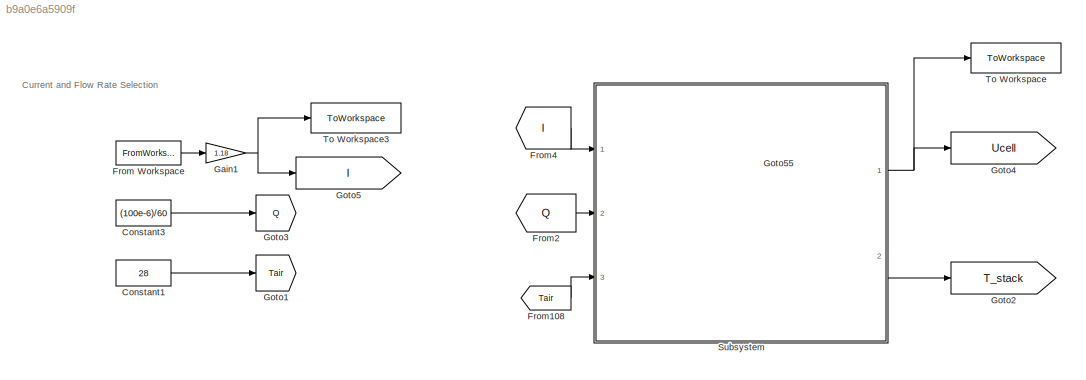
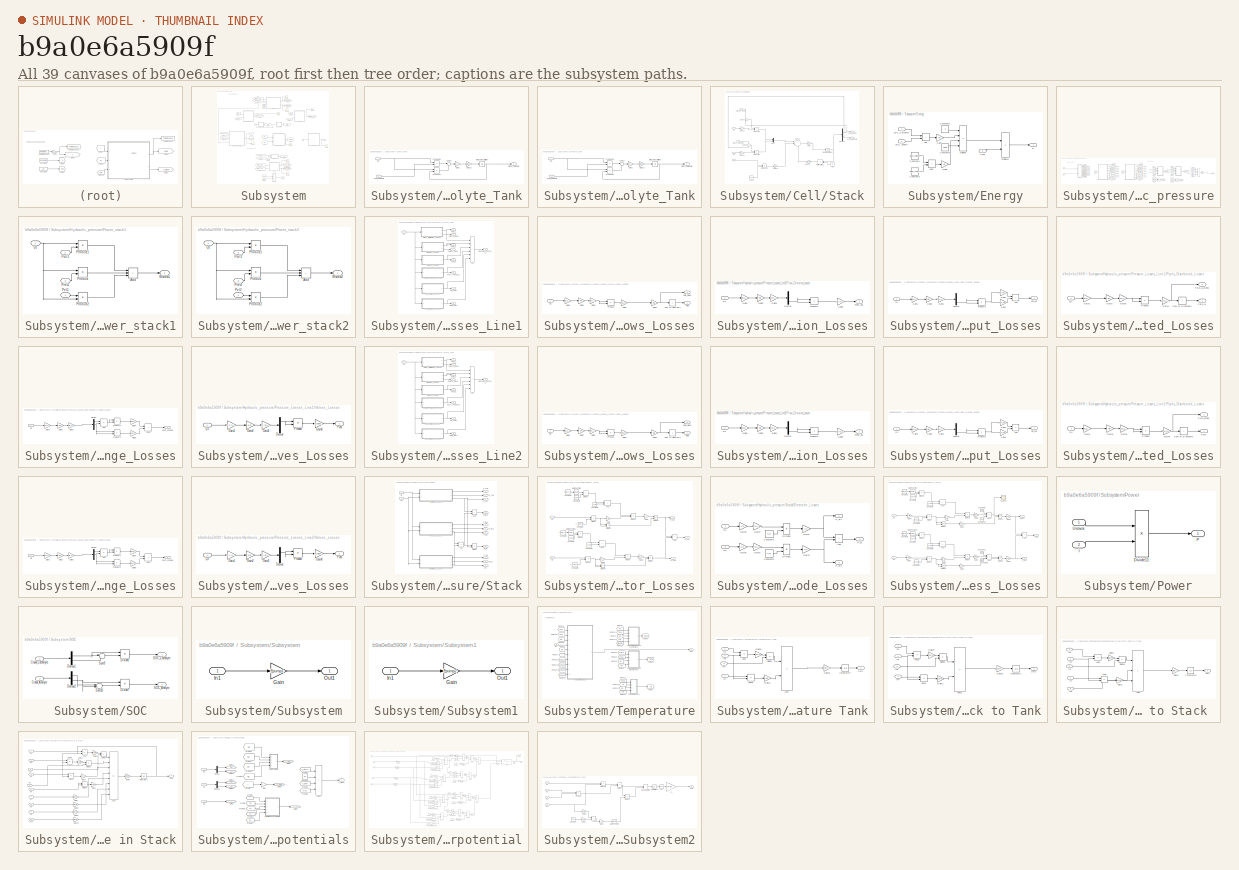
[diagram: thumbnail index - all 39 canvases of the model, root first then tree order]
MODEL slx_b9a0e6a5909f
KIND model
CONFIG AbsTol = auto
CONFIG EnableMultiTasking = off
CONFIG FixedStep = auto
CONFIG MaxStep = auto
CONFIG MinStep = auto
CONFIG RelTol = 1e-3
CONFIG SampleTimeConstraint = Unconstrained
CONFIG SolverName = ode23t
CONFIG StartTime = 0.0
CONFIG StopTime = 6000
BLOCK [Constant] Constant1
  Value = 28
BLOCK [Constant] Constant3
  Value = (100e-6)/60
BLOCK [FromWorkspace] From Workspace
  VariableName = Curr_mes
BLOCK [From] From108
  GotoTag = Tair
BLOCK [From] From2
  GotoTag = Q
BLOCK [From] From4
  GotoTag = I
BLOCK [Gain] Gain1
  Gain = 1.18
BLOCK [Goto] Goto1
  GotoTag = Tair
BLOCK [Goto] Goto2
  GotoTag = T_stack
BLOCK [Goto] Goto3
  GotoTag = Q
BLOCK [Goto] Goto4
  GotoTag = Ucell
BLOCK [Goto] Goto5
  GotoTag = I
BLOCK [Goto] Goto55
  GotoTag = Tstack
BLOCK [SubSystem] Subsystem
  Ports = [3, 2]
  RequestExecContextInheritance = off
BLOCK [SubSystem] Subsystem/Anolyte_Tank
  Ports = [2, 1]
  RequestExecContextInheritance = off
BLOCK [Inport] Subsystem/Anolyte_Tank/Ccell_Catholyte
  Port = 2
BLOCK [Outport] Subsystem/Anolyte_Tank/Ctank_Catholyte
  VectorParamsAs1DForOutWhenUnconnected = off
BLOCK [Gain] Subsystem/Anolyte_Tank/Gain1
BLOCK [Gain] Subsystem/Anolyte_Tank/Gain13
  Gain = 1/Vtank_Anolyte
BLOCK [Integrator] Subsystem/Anolyte_Tank/Integrator Limited4
  InitialCondition = [Ctankini2 Ctankini3]
  LimitOutput = on
  LowerSaturationLimit = 0.001
  Ports = [1, 1]
  UpperSaturationLimit = 400
BLOCK [Product] Subsystem/Anolyte_Tank/Product15
  Ports = [2, 1]
BLOCK [Product] Subsystem/Anolyte_Tank/Product16
  Ports = [2, 1]
BLOCK [Inport] Subsystem/Anolyte_Tank/Q1
BLOCK [Sum] Subsystem/Anolyte_Tank/Sum12
  Inputs = |+-
  Ports = [2, 1]
BLOCK [SubSystem] Subsystem/Catholyte_Tank
  Ports = [2, 1]
  RequestExecContextInheritance = off
BLOCK [Inport] Subsystem/Catholyte_Tank/Ccell_Catholyte
  Port = 2
BLOCK [Outport] Subsystem/Catholyte_Tank/Ctank_Catholyte
  VectorParamsAs1DForOutWhenUnconnected = off
BLOCK [Gain] Subsystem/Catholyte_Tank/Gain1
BLOCK [Gain] Subsystem/Catholyte_Tank/Gain13
  Gain = 1/Vtank_Catholyte
BLOCK [Integrator] Subsystem/Catholyte_Tank/Integrator Limited4
  InitialCondition = [Ctankini4 Ctankini5]
  LimitOutput = on
  LowerSaturationLimit = 0.001
  Ports = [1, 1]
  UpperSaturationLimit = 400
BLOCK [Product] Subsystem/Catholyte_Tank/Product15
  Ports = [2, 1]
BLOCK [Product] Subsystem/Catholyte_Tank/Product16
  Ports = [2, 1]
BLOCK [Inport] Subsystem/Catholyte_Tank/Q1
BLOCK [Sum] Subsystem/Catholyte_Tank/Sum12
  Inputs = |+-
  Ports = [2, 1]
BLOCK [SubSystem] Subsystem/Cell//Stack
  Ports = [5, 2]
  RequestExecContextInheritance = off
BLOCK [Outport] Subsystem/Cell//Stack/Ccell_Anolyte
  VectorParamsAs1DForOutWhenUnconnected = off
BLOCK [Outport] Subsystem/Cell//Stack/Ccell_Catholyte
  Port = 2
  VectorParamsAs1DForOutWhenUnconnected = off
BLOCK [Inport] Subsystem/Cell//Stack/Ctank_Anolyte
BLOCK [Inport] Subsystem/Cell//Stack/Ctank_Catholyte
  Port = 2
BLOCK [Demux] Subsystem/Cell//Stack/Demux6
  Outputs = 2
  Ports = [1, 2]
BLOCK [Gain] Subsystem/Cell//Stack/Gain1
  Gain = 2/(Vcell*N)
  Multiplication = Matrix(K*u)
BLOCK [Gain] Subsystem/Cell//Stack/Gain15
BLOCK [Gain] Subsystem/Cell//Stack/Gain16
BLOCK [Gain] Subsystem/Cell//Stack/Gain18
  Gain = 0*N*(S/d)
BLOCK [Gain] Subsystem/Cell//Stack/Gain20
  Gain = N/F
BLOCK [Inport] Subsystem/Cell//Stack/I 
  Port = 3
BLOCK [Constant] Subsystem/Cell//Stack/I_VEC2
  Value = [1 -1 -1 1]'
BLOCK [Integrator] Subsystem/Cell//Stack/Integrator Limited6
  InitialCondition = [Ccellini2 Ccellini3 Ccellini4 Ccellini5]
  LimitOutput = on
  LowerSaturationLimit = 0.001
  Ports = [1, 1]
  UpperSaturationLimit = 400
BLOCK [Product] Subsystem/Cell//Stack/Matrix Multiply2
  Multiplication = Matrix(*)
  Ports = [2, 1]
BLOCK [Mux] Subsystem/Cell//Stack/Mux2
  DisplayOption = bar
  Inputs = 2
  Ports = [2, 1]
BLOCK [Product] Subsystem/Cell//Stack/Product19
  Ports = [2, 1]
BLOCK [Product] Subsystem/Cell//Stack/Product20
  Ports = [2, 1]
BLOCK [Product] Subsystem/Cell//Stack/Product21
  Ports = [2, 1]
BLOCK [Inport] Subsystem/Cell//Stack/Q1
  Port = 4
BLOCK [Inport] Subsystem/Cell//Stack/Q2
  Port = 5
BLOCK [Sum] Subsystem/Cell//Stack/Sum14
  Inputs = +-
  Ports = [2, 1]
BLOCK [Sum] Subsystem/Cell//Stack/Sum15
  Inputs = +-
  Ports = [2, 1]
BLOCK [Sum] Subsystem/Cell//Stack/Sum16
  Inputs = |+++
  Ports = [3, 1]
BLOCK [Constant] Subsystem/Cell//Stack/dif1
  Value = D
BLOCK [SubSystem] Subsystem/Energy
  Ports = [3, 1]
  RequestExecContextInheritance = off
BLOCK [Sum] Subsystem/Energy/Add
  IconShape = rectangular
  Ports = [2, 1]
BLOCK [Sum] Subsystem/Energy/Add1
  IconShape = rectangular
  Ports = [2, 1]
BLOCK [Constant] Subsystem/Energy/Constant1
  Value = Vtank_Catholyte
BLOCK [Constant] Subsystem/Energy/Constant2
  Value = F
BLOCK [Constant] Subsystem/Energy/Constant3
  Value = Vtank_Anolyte
BLOCK [Constant] Subsystem/Energy/Constant4
  Value = 2000
BLOCK [Product] Subsystem/Energy/Divide11
  Inputs = **
  Ports = [2, 1]
BLOCK [Product] Subsystem/Energy/Divide9
  Inputs = ****
  Ports = [4, 1]
BLOCK [Outport] Subsystem/Energy/E
  VectorParamsAs1DForOutWhenUnconnected = off
BLOCK [Gain] Subsystem/Energy/Gain
  Gain = 0.5
BLOCK [Gain] Subsystem/Energy/Gain1
  Gain = 0.5
BLOCK [Inport] Subsystem/Energy/SOC_Anolyte
  Port = 2
BLOCK [Inport] Subsystem/Energy/SOC_Catholyte
BLOCK [Inport] Subsystem/Energy/Ucell 
  Port = 3
BLOCK [From] Subsystem/From
  GotoTag = Ctank_Catholyte
BLOCK [From] Subsystem/From1
  GotoTag = Ctank_Anolyte
BLOCK [From] Subsystem/From10
  GotoTag = Ustack
BLOCK [From] Subsystem/From21
  GotoTag = Ccell_Anolyte
BLOCK [From] Subsystem/From22
  GotoTag = Ccell_Catholyte
BLOCK [From] Subsystem/From3
  GotoTag = Q2
BLOCK [From] Subsystem/From31
  GotoTag = Ccell_Catholyte
BLOCK [From] Subsystem/From32
  GotoTag = Ccell_Anolyte
BLOCK [From] Subsystem/From34
  GotoTag = Q1
BLOCK [From] Subsystem/From35
  GotoTag = Q2
BLOCK [From] Subsystem/From36
  GotoTag = Ucell
BLOCK [From] Subsystem/From39
  GotoTag = Q1
BLOCK [From] Subsystem/From4
  GotoTag = Q1
BLOCK [From] Subsystem/From40
  GotoTag = Q2
BLOCK [From] Subsystem/From5
  GotoTag = SOC_Catholyte
BLOCK [From] Subsystem/From6
  GotoTag = Ctank_Catholyte
BLOCK [From] Subsystem/From7
  GotoTag = Ctank_Anolyte
BLOCK [From] Subsystem/From8
  GotoTag = I
BLOCK [From] Subsystem/From9
  GotoTag = SOC_Anolyte
BLOCK [Goto] Subsystem/Goto
  GotoTag = Ctank_Catholyte
BLOCK [Goto] Subsystem/Goto1
  GotoTag = Ctank_Anolyte
BLOCK [Goto] Subsystem/Goto10
  GotoTag = Ccell_Catholyte
BLOCK [Goto] Subsystem/Goto15
  GotoTag = Ccell_Anolyte
BLOCK [Goto] Subsystem/Goto18
  GotoTag = V_cell
BLOCK [Goto] Subsystem/Goto2
  GotoTag = Q1
BLOCK [Goto] Subsystem/Goto3
  GotoTag = SOC_Catholyte
BLOCK [Goto] Subsystem/Goto4
  GotoTag = Q2
BLOCK [Goto] Subsystem/Goto5
  GotoTag = SOC_Anolyte
BLOCK [Goto] Subsystem/Goto54
  GotoTag = Wpump
BLOCK [Goto] Subsystem/Goto6
  GotoTag = E
BLOCK [Goto] Subsystem/Goto7
  GotoTag = P
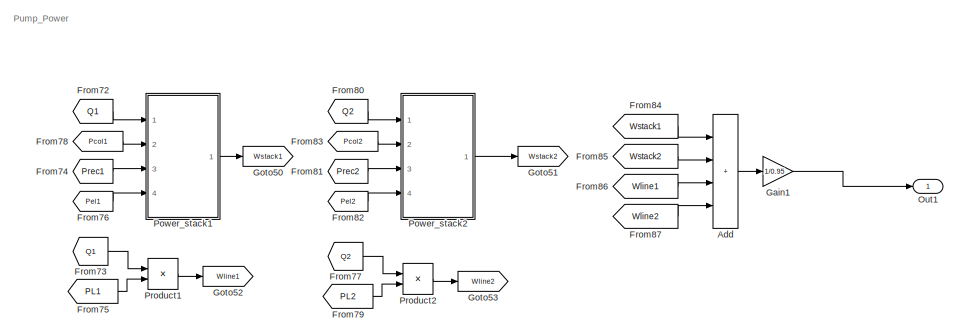
[diagram: Subsystem/Hydraulic_pressure - part 1/2, right side, full height]
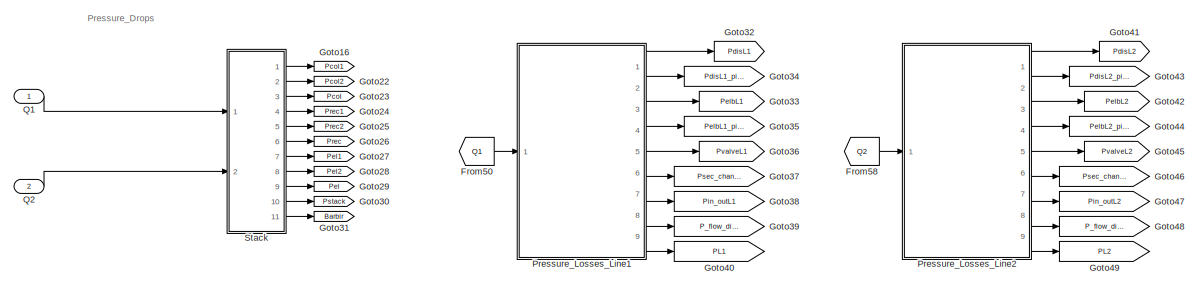
[diagram: Subsystem/Hydraulic_pressure - part 2/2, left side, full height]
BLOCK [SubSystem] Subsystem/Hydraulic_pressure
  Ports = [2, 1]
  RequestExecContextInheritance = off
BLOCK [Sum] Subsystem/Hydraulic_pressure/Add
  IconShape = rectangular
  Inputs = ++++
  Ports = [4, 1]
BLOCK [From] Subsystem/Hydraulic_pressure/From50
  GotoTag = Q1
BLOCK [From] Subsystem/Hydraulic_pressure/From58
  GotoTag = Q2
BLOCK [From] Subsystem/Hydraulic_pressure/From72
  GotoTag = Q1
BLOCK [From] Subsystem/Hydraulic_pressure/From73
  GotoTag = Q1
BLOCK [From] Subsystem/Hydraulic_pressure/From74
  GotoTag = Prec1
BLOCK [From] Subsystem/Hydraulic_pressure/From75
  GotoTag = PL1
BLOCK [From] Subsystem/Hydraulic_pressure/From76
  GotoTag = Pel1
  NameLocation = top
BLOCK [From] Subsystem/Hydraulic_pressure/From77
  GotoTag = Q2
BLOCK [From] Subsystem/Hydraulic_pressure/From78
  GotoTag = Pcol1
BLOCK [From] Subsystem/Hydraulic_pressure/From79
  GotoTag = PL2
BLOCK [From] Subsystem/Hydraulic_pressure/From80
  GotoTag = Q2
BLOCK [From] Subsystem/Hydraulic_pressure/From81
  GotoTag = Prec2
BLOCK [From] Subsystem/Hydraulic_pressure/From82
  GotoTag = Pel2
  NameLocation = top
BLOCK [From] Subsystem/Hydraulic_pressure/From83
  GotoTag = Pcol2
BLOCK [From] Subsystem/Hydraulic_pressure/From84
  GotoTag = Wstack1
BLOCK [From] Subsystem/Hydraulic_pressure/From85
  GotoTag = Wstack2
BLOCK [From] Subsystem/Hydraulic_pressure/From86
  GotoTag = Wline1
BLOCK [From] Subsystem/Hydraulic_pressure/From87
  GotoTag = Wline2
BLOCK [Gain] Subsystem/Hydraulic_pressure/Gain1
  Gain = 1/0.95
BLOCK [Goto] Subsystem/Hydraulic_pressure/Goto16
  GotoTag = Pcol1
BLOCK [Goto] Subsystem/Hydraulic_pressure/Goto22
  GotoTag = Pcol2
BLOCK [Goto] Subsystem/Hydraulic_pressure/Goto23
  GotoTag = Pcol
BLOCK [Goto] Subsystem/Hydraulic_pressure/Goto24
  GotoTag = Prec1
BLOCK [Goto] Subsystem/Hydraulic_pressure/Goto25
  GotoTag = Prec2
BLOCK [Goto] Subsystem/Hydraulic_pressure/Goto26
  GotoTag = Prec
BLOCK [Goto] Subsystem/Hydraulic_pressure/Goto27
  GotoTag = Pel1
BLOCK [Goto] Subsystem/Hydraulic_pressure/Goto28
  GotoTag = Pel2
BLOCK [Goto] Subsystem/Hydraulic_pressure/Goto29
  GotoTag = Pel
BLOCK [Goto] Subsystem/Hydraulic_pressure/Goto30
  GotoTag = Pstack
BLOCK [Goto] Subsystem/Hydraulic_pressure/Goto31
  GotoTag = Barbir
BLOCK [Goto] Subsystem/Hydraulic_pressure/Goto32
  GotoTag = PdisL1
BLOCK [Goto] Subsystem/Hydraulic_pressure/Goto33
  GotoTag = PelbL1
BLOCK [Goto] Subsystem/Hydraulic_pressure/Goto34
  GotoTag = PdisL1_pipes
BLOCK [Goto] Subsystem/Hydraulic_pressure/Goto35
  GotoTag = PelbL1_pipes
BLOCK [Goto] Subsystem/Hydraulic_pressure/Goto36
  GotoTag = PvalveL1
BLOCK [Goto] Subsystem/Hydraulic_pressure/Goto37
  GotoTag = Psec_changeL1
BLOCK [Goto] Subsystem/Hydraulic_pressure/Goto38
  GotoTag = Pin_outL1
BLOCK [Goto] Subsystem/Hydraulic_pressure/Goto39
  GotoTag = P_flow_divL1
BLOCK [Goto] Subsystem/Hydraulic_pressure/Goto40
  GotoTag = PL1
BLOCK [Goto] Subsystem/Hydraulic_pressure/Goto41
  GotoTag = PdisL2
BLOCK [Goto] Subsystem/Hydraulic_pressure/Goto42
  GotoTag = PelbL2
BLOCK [Goto] Subsystem/Hydraulic_pressure/Goto43
  GotoTag = PdisL2_pipes
BLOCK [Goto] Subsystem/Hydraulic_pressure/Goto44
  GotoTag = PelbL2_pipes
BLOCK [Goto] Subsystem/Hydraulic_pressure/Goto45
  GotoTag = PvalveL2
BLOCK [Goto] Subsystem/Hydraulic_pressure/Goto46
  GotoTag = Psec_changeL2
BLOCK [Goto] Subsystem/Hydraulic_pressure/Goto47
  GotoTag = Pin_outL2
BLOCK [Goto] Subsystem/Hydraulic_pressure/Goto48
  GotoTag = P_flow_divL2
BLOCK [Goto] Subsystem/Hydraulic_pressure/Goto49
  GotoTag = PL2
BLOCK [Goto] Subsystem/Hydraulic_pressure/Goto50
  GotoTag = Wstack1
BLOCK [Goto] Subsystem/Hydraulic_pressure/Goto51
  GotoTag = Wstack2
BLOCK [Goto] Subsystem/Hydraulic_pressure/Goto52
  GotoTag = Wline1
BLOCK [Goto] Subsystem/Hydraulic_pressure/Goto53
  GotoTag = Wline2
BLOCK [Outport] Subsystem/Hydraulic_pressure/Out1
BLOCK [SubSystem] Subsystem/Hydraulic_pressure/Power_stack1
  Ports = [4, 1]
  RequestExecContextInheritance = off
BLOCK [Sum] Subsystem/Hydraulic_pressure/Power_stack1/Add
  IconShape = rectangular
  Inputs = +++
  Ports = [3, 1]
BLOCK [Inport] Subsystem/Hydraulic_pressure/Power_stack1/Pcol1
  Port = 2
BLOCK [Inport] Subsystem/Hydraulic_pressure/Power_stack1/Pel1
  Port = 4
BLOCK [Inport] Subsystem/Hydraulic_pressure/Power_stack1/Prec1
  Port = 3
BLOCK [Product] Subsystem/Hydraulic_pressure/Power_stack1/Product
  Ports = [2, 1]
BLOCK [Product] Subsystem/Hydraulic_pressure/Power_stack1/Product1
  Ports = [2, 1]
BLOCK [Product] Subsystem/Hydraulic_pressure/Power_stack1/Product2
  Ports = [2, 1]
BLOCK [Inport] Subsystem/Hydraulic_pressure/Power_stack1/Q1
BLOCK [Outport] Subsystem/Hydraulic_pressure/Power_stack1/Wstack1
  VectorParamsAs1DForOutWhenUnconnected = off
BLOCK [SubSystem] Subsystem/Hydraulic_pressure/Power_stack2
  Ports = [4, 1]
  RequestExecContextInheritance = off
BLOCK [Sum] Subsystem/Hydraulic_pressure/Power_stack2/Add
  IconShape = rectangular
  Inputs = +++
  Ports = [3, 1]
BLOCK [Inport] Subsystem/Hydraulic_pressure/Power_stack2/Pcol2
  Port = 2
BLOCK [Inport] Subsystem/Hydraulic_pressure/Power_stack2/Pel2
  Port = 4
BLOCK [Inport] Subsystem/Hydraulic_pressure/Power_stack2/Prec2
  Port = 3
BLOCK [Product] Subsystem/Hydraulic_pressure/Power_stack2/Product
  Ports = [2, 1]
BLOCK [Product] Subsystem/Hydraulic_pressure/Power_stack2/Product1
  Ports = [2, 1]
BLOCK [Product] Subsystem/Hydraulic_pressure/Power_stack2/Product2
  Ports = [2, 1]
BLOCK [Inport] Subsystem/Hydraulic_pressure/Power_stack2/Q2
BLOCK [Outport] Subsystem/Hydraulic_pressure/Power_stack2/Wstack2
  VectorParamsAs1DForOutWhenUnconnected = off
BLOCK [SubSystem] Subsystem/Hydraulic_pressure/Pressure_Losses_Line1
  Ports = [1, 9]
  RequestExecContextInheritance = off
BLOCK [Sum] Subsystem/Hydraulic_pressure/Pressure_Losses_Line1/Add
  IconShape = rectangular
  Inputs = ++++++
  Ports = [6, 1]
BLOCK [SubSystem] Subsystem/Hydraulic_pressure/Pressure_Losses_Line1/Elbows_Losses
  Ports = [1, 2]
  RequestExecContextInheritance = off
BLOCK [Gain] Subsystem/Hydraulic_pressure/Pressure_Losses_Line1/Elbows_Losses/Gain1
  Gain = [1 1 1/3]
BLOCK [Gain] Subsystem/Hydraulic_pressure/Pressure_Losses_Line1/Elbows_Losses/Gain2
  Gain = 4/pi
BLOCK [Gain] Subsystem/Hydraulic_pressure/Pressure_Losses_Line1/Elbows_Losses/Gain3
  Gain = 1./(D_L1.^2)
BLOCK [Gain] Subsystem/Hydraulic_pressure/Pressure_Losses_Line1/Elbows_Losses/Gain4
  Gain = K_E1.*N_E1
BLOCK [Gain] Subsystem/Hydraulic_pressure/Pressure_Losses_Line1/Elbows_Losses/Gain5
  Gain = ro/2
BLOCK [Outport] Subsystem/Hydraulic_pressure/Pressure_Losses_Line1/Elbows_Losses/Pelb
  VectorParamsAs1DForOutWhenUnconnected = off
BLOCK [Outport] Subsystem/Hydraulic_pressure/Pressure_Losses_Line1/Elbows_Losses/Pelb_pipes
  Port = 2
  VectorParamsAs1DForOutWhenUnconnected = off
BLOCK [Product] Subsystem/Hydraulic_pressure/Pressure_Losses_Line1/Elbows_Losses/Product
  Ports = [2, 1]
BLOCK [Inport] Subsystem/Hydraulic_pressure/Pressure_Losses_Line1/Elbows_Losses/Q1
BLOCK [Sum] Subsystem/Hydraulic_pressure/Pressure_Losses_Line1/Elbows_Losses/Sum of Elements
  IconShape = rectangular
  Inputs = +
  Ports = [1, 1]
BLOCK [SubSystem] Subsystem/Hydraulic_pressure/Pressure_Losses_Line1/Flow_Division_Losses
  Ports = [1, 1]
  RequestExecContextInheritance = off
BLOCK [Demux] Subsystem/Hydraulic_pressure/Pressure_Losses_Line1/Flow_Division_Losses/Demux
  Outputs = 3
  Ports = [1, 3]
BLOCK [Gain] Subsystem/Hydraulic_pressure/Pressure_Losses_Line1/Flow_Division_Losses/Gain1
  Gain = [1 1 1/3]
BLOCK [Gain] Subsystem/Hydraulic_pressure/Pressure_Losses_Line1/Flow_Division_Losses/Gain2
  Gain = 4/pi
BLOCK [Gain] Subsystem/Hydraulic_pressure/Pressure_Losses_Line1/Flow_Division_Losses/Gain3
  Gain = 1./(D_L1.^2)
BLOCK [Gain] Subsystem/Hydraulic_pressure/Pressure_Losses_Line1/Flow_Division_Losses/Gain4
  Gain = ro*(K_con1+K_exp1)/2
BLOCK [Outport] Subsystem/Hydraulic_pressure/Pressure_Losses_Line1/Flow_Division_Losses/Pflow_div
  VectorParamsAs1DForOutWhenUnconnected = off
BLOCK [Product] Subsystem/Hydraulic_pressure/Pressure_Losses_Line1/Flow_Division_Losses/Product2
  Ports = [2, 1]
BLOCK [Inport] Subsystem/Hydraulic_pressure/Pressure_Losses_Line1/Flow_Division_Losses/Q1
BLOCK [Inport] Subsystem/Hydraulic_pressure/Pressure_Losses_Line1/In1
BLOCK [SubSystem] Subsystem/Hydraulic_pressure/Pressure_Losses_Line1/Input_Output_Losses
  Ports = [1, 1]
  RequestExecContextInheritance = off
BLOCK [Sum] Subsystem/Hydraulic_pressure/Pressure_Losses_Line1/Input_Output_Losses/Add
  IconShape = rectangular
  Ports = [2, 1]
BLOCK [Demux] Subsystem/Hydraulic_pressure/Pressure_Losses_Line1/Input_Output_Losses/Demux
  Outputs = 3
  Ports = [1, 3]
BLOCK [Gain] Subsystem/Hydraulic_pressure/Pressure_Losses_Line1/Input_Output_Losses/Gain1
  Gain = [1 1 1/3]
BLOCK [Gain] Subsystem/Hydraulic_pressure/Pressure_Losses_Line1/Input_Output_Losses/Gain2
  Gain = 4/pi
BLOCK [Gain] Subsystem/Hydraulic_pressure/Pressure_Losses_Line1/Input_Output_Losses/Gain3
  Gain = 1./(D_L1.^2)
BLOCK [Gain] Subsystem/Hydraulic_pressure/Pressure_Losses_Line1/Input_Output_Losses/Gain4
  Gain = ro*K_out1*N_out1/2
BLOCK [Gain] Subsystem/Hydraulic_pressure/Pressure_Losses_Line1/Input_Output_Losses/Gain5
  Gain = ro*K_in1*N_in1/2
BLOCK [Outport] Subsystem/Hydraulic_pressure/Pressure_Losses_Line1/Input_Output_Losses/Pin_out
  VectorParamsAs1DForOutWhenUnconnected = off
BLOCK [Product] Subsystem/Hydraulic_pressure/Pressure_Losses_Line1/Input_Output_Losses/Product2
  Ports = [2, 1]
BLOCK [Inport] Subsystem/Hydraulic_pressure/Pressure_Losses_Line1/Input_Output_Losses/Q1
BLOCK [Outport] Subsystem/Hydraulic_pressure/Pressure_Losses_Line1/PdisL1
  VectorParamsAs1DForOutWhenUnconnected = off
BLOCK [Outport] Subsystem/Hydraulic_pressure/Pressure_Losses_Line1/PdisL1_pipes
  Port = 2
  VectorParamsAs1DForOutWhenUnconnected = off
BLOCK [Outport] Subsystem/Hydraulic_pressure/Pressure_Losses_Line1/PelbL1
  Port = 3
  VectorParamsAs1DForOutWhenUnconnected = off
BLOCK [Outport] Subsystem/Hydraulic_pressure/Pressure_Losses_Line1/PelbL1_pipes
  Port = 4
  VectorParamsAs1DForOutWhenUnconnected = off
BLOCK [Outport] Subsystem/Hydraulic_pressure/Pressure_Losses_Line1/Pflow_divL1
  Port = 8
  VectorParamsAs1DForOutWhenUnconnected = off
BLOCK [Outport] Subsystem/Hydraulic_pressure/Pressure_Losses_Line1/Pin_outL1
  Port = 7
  VectorParamsAs1DForOutWhenUnconnected = off
BLOCK [SubSystem] Subsystem/Hydraulic_pressure/Pressure_Losses_Line1/Pipes_Distributed_Losses
  Ports = [1, 2]
  RequestExecContextInheritance = off
BLOCK [Gain] Subsystem/Hydraulic_pressure/Pressure_Losses_Line1/Pipes_Distributed_Losses/Gain1
  Gain = [1 1 1/3]
BLOCK [Gain] Subsystem/Hydraulic_pressure/Pressure_Losses_Line1/Pipes_Distributed_Losses/Gain2
  Gain = 4/pi
BLOCK [Gain] Subsystem/Hydraulic_pressure/Pressure_Losses_Line1/Pipes_Distributed_Losses/Gain3
  Gain = 1./(D_L1.^2)
BLOCK [Gain] Subsystem/Hydraulic_pressure/Pressure_Losses_Line1/Pipes_Distributed_Losses/Gain4
  Gain = ro*f_L1.*L_L1./(2*D_L1)
BLOCK [Outport] Subsystem/Hydraulic_pressure/Pressure_Losses_Line1/Pipes_Distributed_Losses/Pdis_L1
  VectorParamsAs1DForOutWhenUnconnected = off
BLOCK [Outport] Subsystem/Hydraulic_pressure/Pressure_Losses_Line1/Pipes_Distributed_Losses/Pdis_L1_pipes
  Port = 2
  VectorParamsAs1DForOutWhenUnconnected = off
BLOCK [Product] Subsystem/Hydraulic_pressure/Pressure_Losses_Line1/Pipes_Distributed_Losses/Product
  Ports = [2, 1]
BLOCK [Inport] Subsystem/Hydraulic_pressure/Pressure_Losses_Line1/Pipes_Distributed_Losses/Q1 
BLOCK [Sum] Subsystem/Hydraulic_pressure/Pressure_Losses_Line1/Pipes_Distributed_Losses/Sum of Elements
  IconShape = rectangular
  Inputs = +
  Ports = [1, 1]
BLOCK [Outport] Subsystem/Hydraulic_pressure/Pressure_Losses_Line1/Pressure_Losses_L1
  Port = 9
  VectorParamsAs1DForOutWhenUnconnected = off
BLOCK [Outport] Subsystem/Hydraulic_pressure/Pressure_Losses_Line1/Psec_changeL1
  Port = 6
  VectorParamsAs1DForOutWhenUnconnected = off
BLOCK [Outport] Subsystem/Hydraulic_pressure/Pressure_Losses_Line1/PvalL1
  Port = 5
  VectorParamsAs1DForOutWhenUnconnected = off
BLOCK [SubSystem] Subsystem/Hydraulic_pressure/Pressure_Losses_Line1/Section_Change_Losses
  Ports = [1, 1]
  RequestExecContextInheritance = off
BLOCK [Sum] Subsystem/Hydraulic_pressure/Pressure_Losses_Line1/Section_Change_Losses/Add
  IconShape = rectangular
  Inputs = +-
  Ports = [2, 1]
BLOCK [Sum] Subsystem/Hydraulic_pressure/Pressure_Losses_Line1/Section_Change_Losses/Add1
  IconShape = rectangular
  Ports = [2, 1]
BLOCK [Demux] Subsystem/Hydraulic_pressure/Pressure_Losses_Line1/Section_Change_Losses/Demux
  Outputs = 3
  Ports = [1, 3]
BLOCK [Gain] Subsystem/Hydraulic_pressure/Pressure_Losses_Line1/Section_Change_Losses/Gain1
  Gain = [1 1 1/3]
BLOCK [Gain] Subsystem/Hydraulic_pressure/Pressure_Losses_Line1/Section_Change_Losses/Gain2
  Gain = 4/pi
BLOCK [Gain] Subsystem/Hydraulic_pressure/Pressure_Losses_Line1/Section_Change_Losses/Gain3
  Gain = 1./(D_L1.^2)
BLOCK [Gain] Subsystem/Hydraulic_pressure/Pressure_Losses_Line1/Section_Change_Losses/Gain4
  Gain = K_inc1*ro/2
BLOCK [Gain] Subsystem/Hydraulic_pressure/Pressure_Losses_Line1/Section_Change_Losses/Gain5
  Gain = K_dec1*ro/2
BLOCK [Product] Subsystem/Hydraulic_pressure/Pressure_Losses_Line1/Section_Change_Losses/Product1
  Ports = [2, 1]
BLOCK [Product] Subsystem/Hydraulic_pressure/Pressure_Losses_Line1/Section_Change_Losses/Product2
  Ports = [2, 1]
BLOCK [Outport] Subsystem/Hydraulic_pressure/Pressure_Losses_Line1/Section_Change_Losses/Psec_change
  VectorParamsAs1DForOutWhenUnconnected = off
BLOCK [Inport] Subsystem/Hydraulic_pressure/Pressure_Losses_Line1/Section_Change_Losses/Q1
BLOCK [SubSystem] Subsystem/Hydraulic_pressure/Pressure_Losses_Line1/Valves_Losses
  Ports = [1, 1]
  RequestExecContextInheritance = off
BLOCK [Demux] Subsystem/Hydraulic_pressure/Pressure_Losses_Line1/Valves_Losses/Demux
  Outputs = 3
  Ports = [1, 3]
BLOCK [Gain] Subsystem/Hydraulic_pressure/Pressure_Losses_Line1/Valves_Losses/Gain1
  Gain = [1 1 1/3]
BLOCK [Gain] Subsystem/Hydraulic_pressure/Pressure_Losses_Line1/Valves_Losses/Gain2
  Gain = 4/pi
BLOCK [Gain] Subsystem/Hydraulic_pressure/Pressure_Losses_Line1/Valves_Losses/Gain3
  Gain = 1./(D_L1.^2)
BLOCK [Gain] Subsystem/Hydraulic_pressure/Pressure_Losses_Line1/Valves_Losses/Gain4
  Gain = N_valves1*K_valve1*ro/2
BLOCK [Product] Subsystem/Hydraulic_pressure/Pressure_Losses_Line1/Valves_Losses/Product
  Ports = [2, 1]
BLOCK [Outport] Subsystem/Hydraulic_pressure/Pressure_Losses_Line1/Valves_Losses/Pval
  VectorParamsAs1DForOutWhenUnconnected = off
BLOCK [Inport] Subsystem/Hydraulic_pressure/Pressure_Losses_Line1/Valves_Losses/Q1
BLOCK [SubSystem] Subsystem/Hydraulic_pressure/Pressure_Losses_Line2
  Ports = [1, 9]
  RequestExecContextInheritance = off
BLOCK [Sum] Subsystem/Hydraulic_pressure/Pressure_Losses_Line2/Add
  IconShape = rectangular
  Inputs = ++++++
  Ports = [6, 1]
BLOCK [SubSystem] Subsystem/Hydraulic_pressure/Pressure_Losses_Line2/Elbows_Losses
  Ports = [1, 2]
  RequestExecContextInheritance = off
BLOCK [Gain] Subsystem/Hydraulic_pressure/Pressure_Losses_Line2/Elbows_Losses/Gain1
  Gain = [1 1 1/3]
BLOCK [Gain] Subsystem/Hydraulic_pressure/Pressure_Losses_Line2/Elbows_Losses/Gain2
  Gain = 4/pi
BLOCK [Gain] Subsystem/Hydraulic_pressure/Pressure_Losses_Line2/Elbows_Losses/Gain3
  Gain = 1./(D_L2.^2)
BLOCK [Gain] Subsystem/Hydraulic_pressure/Pressure_Losses_Line2/Elbows_Losses/Gain4
  Gain = K_E2.*N_E2
BLOCK [Gain] Subsystem/Hydraulic_pressure/Pressure_Losses_Line2/Elbows_Losses/Gain5
  Gain = ro/2
BLOCK [Outport] Subsystem/Hydraulic_pressure/Pressure_Losses_Line2/Elbows_Losses/Pelb
  VectorParamsAs1DForOutWhenUnconnected = off
BLOCK [Outport] Subsystem/Hydraulic_pressure/Pressure_Losses_Line2/Elbows_Losses/Pelb_pipes
  Port = 2
  VectorParamsAs1DForOutWhenUnconnected = off
BLOCK [Product] Subsystem/Hydraulic_pressure/Pressure_Losses_Line2/Elbows_Losses/Product
  Ports = [2, 1]
BLOCK [Inport] Subsystem/Hydraulic_pressure/Pressure_Losses_Line2/Elbows_Losses/Q2
BLOCK [Sum] Subsystem/Hydraulic_pressure/Pressure_Losses_Line2/Elbows_Losses/Sum of Elements
  IconShape = rectangular
  Inputs = +
  Ports = [1, 1]
BLOCK [SubSystem] Subsystem/Hydraulic_pressure/Pressure_Losses_Line2/Flow_Division_Losses
  Ports = [1, 1]
  RequestExecContextInheritance = off
BLOCK [Demux] Subsystem/Hydraulic_pressure/Pressure_Losses_Line2/Flow_Division_Losses/Demux
  Outputs = 3
  Ports = [1, 3]
BLOCK [Gain] Subsystem/Hydraulic_pressure/Pressure_Losses_Line2/Flow_Division_Losses/Gain1
  Gain = [1 1 1/3]
BLOCK [Gain] Subsystem/Hydraulic_pressure/Pressure_Losses_Line2/Flow_Division_Losses/Gain2
  Gain = 4/pi
BLOCK [Gain] Subsystem/Hydraulic_pressure/Pressure_Losses_Line2/Flow_Division_Losses/Gain3
  Gain = 1./(D_L2.^2)
BLOCK [Gain] Subsystem/Hydraulic_pressure/Pressure_Losses_Line2/Flow_Division_Losses/Gain4
  Gain = ro*(K_con2+K_exp2)/2
BLOCK [Outport] Subsystem/Hydraulic_pressure/Pressure_Losses_Line2/Flow_Division_Losses/Pflow_div
  VectorParamsAs1DForOutWhenUnconnected = off
BLOCK [Product] Subsystem/Hydraulic_pressure/Pressure_Losses_Line2/Flow_Division_Losses/Product2
  Ports = [2, 1]
BLOCK [Inport] Subsystem/Hydraulic_pressure/Pressure_Losses_Line2/Flow_Division_Losses/Q2
BLOCK [SubSystem] Subsystem/Hydraulic_pressure/Pressure_Losses_Line2/Input_Output_Losses
  Ports = [1, 1]
  RequestExecContextInheritance = off
BLOCK [Sum] Subsystem/Hydraulic_pressure/Pressure_Losses_Line2/Input_Output_Losses/Add
  IconShape = rectangular
  Ports = [2, 1]
BLOCK [Demux] Subsystem/Hydraulic_pressure/Pressure_Losses_Line2/Input_Output_Losses/Demux
  Outputs = 3
  Ports = [1, 3]
BLOCK [Gain] Subsystem/Hydraulic_pressure/Pressure_Losses_Line2/Input_Output_Losses/Gain1
  Gain = [1 1 1/3]
BLOCK [Gain] Subsystem/Hydraulic_pressure/Pressure_Losses_Line2/Input_Output_Losses/Gain2
  Gain = 4/pi
BLOCK [Gain] Subsystem/Hydraulic_pressure/Pressure_Losses_Line2/Input_Output_Losses/Gain3
  Gain = 1./(D_L2.^2)
BLOCK [Gain] Subsystem/Hydraulic_pressure/Pressure_Losses_Line2/Input_Output_Losses/Gain4
  Gain = ro*K_out2*N_out2/2
BLOCK [Gain] Subsystem/Hydraulic_pressure/Pressure_Losses_Line2/Input_Output_Losses/Gain5
  Gain = ro*K_in2*N_in2/2
BLOCK [Outport] Subsystem/Hydraulic_pressure/Pressure_Losses_Line2/Input_Output_Losses/Pin_out
  VectorParamsAs1DForOutWhenUnconnected = off
BLOCK [Product] Subsystem/Hydraulic_pressure/Pressure_Losses_Line2/Input_Output_Losses/Product2
  Ports = [2, 1]
BLOCK [Inport] Subsystem/Hydraulic_pressure/Pressure_Losses_Line2/Input_Output_Losses/Q2
BLOCK [Outport] Subsystem/Hydraulic_pressure/Pressure_Losses_Line2/PdisL2
  VectorParamsAs1DForOutWhenUnconnected = off
BLOCK [Outport] Subsystem/Hydraulic_pressure/Pressure_Losses_Line2/PdisL2_pipes
  Port = 2
  VectorParamsAs1DForOutWhenUnconnected = off
BLOCK [Outport] Subsystem/Hydraulic_pressure/Pressure_Losses_Line2/PelbL2
  Port = 3
  VectorParamsAs1DForOutWhenUnconnected = off
BLOCK [Outport] Subsystem/Hydraulic_pressure/Pressure_Losses_Line2/PelbL2_pipes
  Port = 4
  VectorParamsAs1DForOutWhenUnconnected = off
BLOCK [Outport] Subsystem/Hydraulic_pressure/Pressure_Losses_Line2/Pflow_divL2
  Port = 8
  VectorParamsAs1DForOutWhenUnconnected = off
BLOCK [Outport] Subsystem/Hydraulic_pressure/Pressure_Losses_Line2/Pin_outL2
  Port = 7
  VectorParamsAs1DForOutWhenUnconnected = off
BLOCK [SubSystem] Subsystem/Hydraulic_pressure/Pressure_Losses_Line2/Pipes_Distributed_Losses
  Ports = [1, 2]
  RequestExecContextInheritance = off
BLOCK [Gain] Subsystem/Hydraulic_pressure/Pressure_Losses_Line2/Pipes_Distributed_Losses/Gain1
  Gain = [1 1 1/3]
BLOCK [Gain] Subsystem/Hydraulic_pressure/Pressure_Losses_Line2/Pipes_Distributed_Losses/Gain2
  Gain = 4/pi
BLOCK [Gain] Subsystem/Hydraulic_pressure/Pressure_Losses_Line2/Pipes_Distributed_Losses/Gain3
  Gain = 1./(D_L2.^2)
BLOCK [Gain] Subsystem/Hydraulic_pressure/Pressure_Losses_Line2/Pipes_Distributed_Losses/Gain4
  Gain = ro*f_L2.*L_L2./(2*D_L2)
BLOCK [Outport] Subsystem/Hydraulic_pressure/Pressure_Losses_Line2/Pipes_Distributed_Losses/Pdis
  VectorParamsAs1DForOutWhenUnconnected = off
BLOCK [Outport] Subsystem/Hydraulic_pressure/Pressure_Losses_Line2/Pipes_Distributed_Losses/Pdis_pipes
  Port = 2
  VectorParamsAs1DForOutWhenUnconnected = off
BLOCK [Product] Subsystem/Hydraulic_pressure/Pressure_Losses_Line2/Pipes_Distributed_Losses/Product
  Ports = [2, 1]
BLOCK [Inport] Subsystem/Hydraulic_pressure/Pressure_Losses_Line2/Pipes_Distributed_Losses/Q2
BLOCK [Sum] Subsystem/Hydraulic_pressure/Pressure_Losses_Line2/Pipes_Distributed_Losses/Sum of Elements
  IconShape = rectangular
  Inputs = +
  Ports = [1, 1]
BLOCK [Outport] Subsystem/Hydraulic_pressure/Pressure_Losses_Line2/Pressure_Losses_L2
  Port = 9
  VectorParamsAs1DForOutWhenUnconnected = off
BLOCK [Outport] Subsystem/Hydraulic_pressure/Pressure_Losses_Line2/Psec_changeL2
  Port = 6
  VectorParamsAs1DForOutWhenUnconnected = off
BLOCK [Outport] Subsystem/Hydraulic_pressure/Pressure_Losses_Line2/PvalL2
  Port = 5
  VectorParamsAs1DForOutWhenUnconnected = off
BLOCK [Inport] Subsystem/Hydraulic_pressure/Pressure_Losses_Line2/Q2
BLOCK [SubSystem] Subsystem/Hydraulic_pressure/Pressure_Losses_Line2/Section_Change_Losses
  Ports = [1, 1]
  RequestExecContextInheritance = off
BLOCK [Sum] Subsystem/Hydraulic_pressure/Pressure_Losses_Line2/Section_Change_Losses/Add
  IconShape = rectangular
  Inputs = +-
  Ports = [2, 1]
BLOCK [Sum] Subsystem/Hydraulic_pressure/Pressure_Losses_Line2/Section_Change_Losses/Add1
  IconShape = rectangular
  Ports = [2, 1]
BLOCK [Demux] Subsystem/Hydraulic_pressure/Pressure_Losses_Line2/Section_Change_Losses/Demux
  Outputs = 3
  Ports = [1, 3]
BLOCK [Gain] Subsystem/Hydraulic_pressure/Pressure_Losses_Line2/Section_Change_Losses/Gain1
  Gain = [1 1 1/3]
BLOCK [Gain] Subsystem/Hydraulic_pressure/Pressure_Losses_Line2/Section_Change_Losses/Gain2
  Gain = 4/pi
BLOCK [Gain] Subsystem/Hydraulic_pressure/Pressure_Losses_Line2/Section_Change_Losses/Gain3
  Gain = 1./(D_L2.^2)
BLOCK [Gain] Subsystem/Hydraulic_pressure/Pressure_Losses_Line2/Section_Change_Losses/Gain4
  Gain = K_inc2*ro/2
BLOCK [Gain] Subsystem/Hydraulic_pressure/Pressure_Losses_Line2/Section_Change_Losses/Gain5
  Gain = K_dec2*ro/2
BLOCK [Product] Subsystem/Hydraulic_pressure/Pressure_Losses_Line2/Section_Change_Losses/Product1
  Ports = [2, 1]
BLOCK [Product] Subsystem/Hydraulic_pressure/Pressure_Losses_Line2/Section_Change_Losses/Product2
  Ports = [2, 1]
BLOCK [Outport] Subsystem/Hydraulic_pressure/Pressure_Losses_Line2/Section_Change_Losses/Psec_change
  VectorParamsAs1DForOutWhenUnconnected = off
BLOCK [Inport] Subsystem/Hydraulic_pressure/Pressure_Losses_Line2/Section_Change_Losses/Q2
BLOCK [SubSystem] Subsystem/Hydraulic_pressure/Pressure_Losses_Line2/Valves_Losses
  Ports = [1, 1]
  RequestExecContextInheritance = off
BLOCK [Demux] Subsystem/Hydraulic_pressure/Pressure_Losses_Line2/Valves_Losses/Demux
  Outputs = 3
  Ports = [1, 3]
BLOCK [Gain] Subsystem/Hydraulic_pressure/Pressure_Losses_Line2/Valves_Losses/Gain1
  Gain = [1 1 1/3]
BLOCK [Gain] Subsystem/Hydraulic_pressure/Pressure_Losses_Line2/Valves_Losses/Gain2
  Gain = 4/pi
BLOCK [Gain] Subsystem/Hydraulic_pressure/Pressure_Losses_Line2/Valves_Losses/Gain3
  Gain = 1./(D_L2.^2)
BLOCK [Gain] Subsystem/Hydraulic_pressure/Pressure_Losses_Line2/Valves_Losses/Gain4
  Gain = N_valves2*K_valve2*ro/2
BLOCK [Product] Subsystem/Hydraulic_pressure/Pressure_Losses_Line2/Valves_Losses/Product
  Ports = [2, 1]
BLOCK [Outport] Subsystem/Hydraulic_pressure/Pressure_Losses_Line2/Valves_Losses/Pval
  VectorParamsAs1DForOutWhenUnconnected = off
BLOCK [Inport] Subsystem/Hydraulic_pressure/Pressure_Losses_Line2/Valves_Losses/Q2
BLOCK [Product] Subsystem/Hydraulic_pressure/Product1
  Ports = [2, 1]
BLOCK [Product] Subsystem/Hydraulic_pressure/Product2
  Ports = [2, 1]
BLOCK [Inport] Subsystem/Hydraulic_pressure/Q1
BLOCK [Inport] Subsystem/Hydraulic_pressure/Q2
  Port = 2
BLOCK [SubSystem] Subsystem/Hydraulic_pressure/Stack
  Ports = [2, 11]
  RequestExecContextInheritance = off
BLOCK [Sum] Subsystem/Hydraulic_pressure/Stack/Add
  IconShape = rectangular
  Ports = [2, 1]
BLOCK [Sum] Subsystem/Hydraulic_pressure/Stack/Add1
  IconShape = rectangular
  Ports = [2, 1]
BLOCK [Outport] Subsystem/Hydraulic_pressure/Stack/Babir
  Port = 11
  VectorParamsAs1DForOutWhenUnconnected = off
BLOCK [SubSystem] Subsystem/Hydraulic_pressure/Stack/Collector_Losses
  Ports = [2, 3]
  RequestExecContextInheritance = off
BLOCK [Sum] Subsystem/Hydraulic_pressure/Stack/Collector_Losses/Add
  IconShape = rectangular
  Ports = [2, 1]
BLOCK [Sum] Subsystem/Hydraulic_pressure/Stack/Collector_Losses/Add1
  IconShape = rectangular
  Ports = [2, 1]
BLOCK [Sum] Subsystem/Hydraulic_pressure/Stack/Collector_Losses/Add2
  IconShape = rectangular
  Ports = [2, 1]
BLOCK [Constant] Subsystem/Hydraulic_pressure/Stack/Collector_Losses/Constant
  Value = h_col*w_col
BLOCK [Constant] Subsystem/Hydraulic_pressure/Stack/Collector_Losses/Constant1
  Value = (-3.4/(w_col/h_col))
BLOCK [Constant] Subsystem/Hydraulic_pressure/Stack/Collector_Losses/Constant2
  Value = f_value
BLOCK [Constant] Subsystem/Hydraulic_pressure/Stack/Collector_Losses/Constant3
  Value = h_col*w_col
BLOCK [Constant] Subsystem/Hydraulic_pressure/Stack/Collector_Losses/Constant4
  Value = (-3.4/(w_col/h_col))
BLOCK [Constant] Subsystem/Hydraulic_pressure/Stack/Collector_Losses/Constant5
  Value = f_value
BLOCK [Constant] Subsystem/Hydraulic_pressure/Stack/Collector_Losses/Constant6
  Value = 50.66
BLOCK [Constant] Subsystem/Hydraulic_pressure/Stack/Collector_Losses/Constant7
  Value = 50.66
BLOCK [Product] Subsystem/Hydraulic_pressure/Stack/Collector_Losses/Divide
  Inputs = */
  Ports = [2, 1]
BLOCK [Product] Subsystem/Hydraulic_pressure/Stack/Collector_Losses/Divide1
  Inputs = */
  Ports = [2, 1]
BLOCK [Product] Subsystem/Hydraulic_pressure/Stack/Collector_Losses/Divide2
  Inputs = **
  Ports = [2, 1]
BLOCK [Product] Subsystem/Hydraulic_pressure/Stack/Collector_Losses/Divide3
  Inputs = */
  Ports = [2, 1]
BLOCK [Product] Subsystem/Hydraulic_pressure/Stack/Collector_Losses/Divide4
  Inputs = **
  Ports = [2, 1]
BLOCK [Product] Subsystem/Hydraulic_pressure/Stack/Collector_Losses/Divide5
  Inputs = **
  Ports = [2, 1]
BLOCK [Product] Subsystem/Hydraulic_pressure/Stack/Collector_Losses/Divide6
  Inputs = **
  Ports = [2, 1]
BLOCK [Product] Subsystem/Hydraulic_pressure/Stack/Collector_Losses/Divide7
  Inputs = */
  Ports = [2, 1]
BLOCK [Product] Subsystem/Hydraulic_pressure/Stack/Collector_Losses/Divide8
  Inputs = **
  Ports = [2, 1]
BLOCK [Product] Subsystem/Hydraulic_pressure/Stack/Collector_Losses/Divide9
  Inputs = **
  Ports = [2, 1]
BLOCK [Gain] Subsystem/Hydraulic_pressure/Stack/Collector_Losses/Gain
  Gain = ro*D_col/mu
BLOCK [Gain] Subsystem/Hydraulic_pressure/Stack/Collector_Losses/Gain1
  Gain = ro*(L_col/D_col)
BLOCK [Gain] Subsystem/Hydraulic_pressure/Stack/Collector_Losses/Gain2
  Gain = ro*D_col/mu
BLOCK [Gain] Subsystem/Hydraulic_pressure/Stack/Collector_Losses/Gain3
  Gain = ro*(L_col/D_col)
BLOCK [Math] Subsystem/Hydraulic_pressure/Stack/Collector_Losses/Math Function
  Ports = [1, 1]
  SignedPower = on
BLOCK [Math] Subsystem/Hydraulic_pressure/Stack/Collector_Losses/Math Function1
  Ports = [1, 1]
  SignedPower = on
BLOCK [Outport] Subsystem/Hydraulic_pressure/Stack/Collector_Losses/P_col
  Port = 3
  VectorParamsAs1DForOutWhenUnconnected = off
BLOCK [Outport] Subsystem/Hydraulic_pressure/Stack/Collector_Losses/P_col1
  VectorParamsAs1DForOutWhenUnconnected = off
BLOCK [Outport] Subsystem/Hydraulic_pressure/Stack/Collector_Losses/P_col2
  Port = 2
  VectorParamsAs1DForOutWhenUnconnected = off
BLOCK [Inport] Subsystem/Hydraulic_pressure/Stack/Collector_Losses/Q1
BLOCK [Inport] Subsystem/Hydraulic_pressure/Stack/Collector_Losses/Q2
  Port = 2
BLOCK [Product] Subsystem/Hydraulic_pressure/Stack/Divide
  Inputs = */
  Ports = [2, 1]
BLOCK [SubSystem] Subsystem/Hydraulic_pressure/Stack/Electrode_Losses
  Ports = [2, 3]
  RequestExecContextInheritance = off
BLOCK [Sum] Subsystem/Hydraulic_pressure/Stack/Electrode_Losses/Add
  IconShape = rectangular
  Ports = [2, 1]
BLOCK [Constant] Subsystem/Hydraulic_pressure/Stack/Electrode_Losses/Constant1
  Value = K_el
BLOCK [Constant] Subsystem/Hydraulic_pressure/Stack/Electrode_Losses/Constant2
  Value = K_el
BLOCK [Product] Subsystem/Hydraulic_pressure/Stack/Electrode_Losses/Divide1
  Inputs = */
  Ports = [2, 1]
BLOCK [Product] Subsystem/Hydraulic_pressure/Stack/Electrode_Losses/Divide2
  Inputs = */
  Ports = [2, 1]
BLOCK [Gain] Subsystem/Hydraulic_pressure/Stack/Electrode_Losses/Gain1
  Gain = 1/2
BLOCK [Gain] Subsystem/Hydraulic_pressure/Stack/Electrode_Losses/Gain2
  Gain = 1/2
BLOCK [Gain] Subsystem/Hydraulic_pressure/Stack/Electrode_Losses/Gain3
  Gain = mu*L_el
BLOCK [Gain] Subsystem/Hydraulic_pressure/Stack/Electrode_Losses/Gain4
  Gain = mu*L_el
BLOCK [Gain] Subsystem/Hydraulic_pressure/Stack/Electrode_Losses/Gain5
  Gain = 1/N
BLOCK [Gain] Subsystem/Hydraulic_pressure/Stack/Electrode_Losses/Gain6
  Gain = 1/N
BLOCK [Outport] Subsystem/Hydraulic_pressure/Stack/Electrode_Losses/P_el
  Port = 3
  VectorParamsAs1DForOutWhenUnconnected = off
BLOCK [Outport] Subsystem/Hydraulic_pressure/Stack/Electrode_Losses/P_el1
  VectorParamsAs1DForOutWhenUnconnected = off
BLOCK [Outport] Subsystem/Hydraulic_pressure/Stack/Electrode_Losses/P_el2
  Port = 2
  VectorParamsAs1DForOutWhenUnconnected = off
BLOCK [Inport] Subsystem/Hydraulic_pressure/Stack/Electrode_Losses/Q1
BLOCK [Inport] Subsystem/Hydraulic_pressure/Stack/Electrode_Losses/Q2
  Port = 2
BLOCK [Outport] Subsystem/Hydraulic_pressure/Stack/P_col
  Port = 3
  VectorParamsAs1DForOutWhenUnconnected = off
BLOCK [Outport] Subsystem/Hydraulic_pressure/Stack/P_col1 
  VectorParamsAs1DForOutWhenUnconnected = off
BLOCK [Outport] Subsystem/Hydraulic_pressure/Stack/P_col2
  Port = 2
  VectorParamsAs1DForOutWhenUnconnected = off
BLOCK [Outport] Subsystem/Hydraulic_pressure/Stack/P_el1
  Port = 7
  VectorParamsAs1DForOutWhenUnconnected = off
BLOCK [Outport] Subsystem/Hydraulic_pressure/Stack/P_rec
  Port = 6
  VectorParamsAs1DForOutWhenUnconnected = off
BLOCK [Outport] Subsystem/Hydraulic_pressure/Stack/P_rec1
  Port = 4
  VectorParamsAs1DForOutWhenUnconnected = off
BLOCK [Outport] Subsystem/Hydraulic_pressure/Stack/P_rec2
  Port = 5
  VectorParamsAs1DForOutWhenUnconnected = off
BLOCK [Outport] Subsystem/Hydraulic_pressure/Stack/Pel
  Port = 9
  VectorParamsAs1DForOutWhenUnconnected = off
BLOCK [Outport] Subsystem/Hydraulic_pressure/Stack/Pel_2
  Port = 8
  VectorParamsAs1DForOutWhenUnconnected = off
BLOCK [Outport] Subsystem/Hydraulic_pressure/Stack/Pstack
  Port = 10
  VectorParamsAs1DForOutWhenUnconnected = off
BLOCK [Inport] Subsystem/Hydraulic_pressure/Stack/Q1
BLOCK [Inport] Subsystem/Hydraulic_pressure/Stack/Q2
  Port = 2
BLOCK [SubSystem] Subsystem/Hydraulic_pressure/Stack/Recess_Losses
  Ports = [2, 3]
  RequestExecContextInheritance = off
BLOCK [Sum] Subsystem/Hydraulic_pressure/Stack/Recess_Losses/Add
  IconShape = rectangular
  Ports = [2, 1]
BLOCK [Sum] Subsystem/Hydraulic_pressure/Stack/Recess_Losses/Add1
  IconShape = rectangular
  Ports = [2, 1]
BLOCK [Sum] Subsystem/Hydraulic_pressure/Stack/Recess_Losses/Add2
  IconShape = rectangular
  Ports = [2, 1]
BLOCK [Sum] Subsystem/Hydraulic_pressure/Stack/Recess_Losses/Add3
  IconShape = rectangular
  Inputs = +++
  Ports = [3, 1]
BLOCK [Sum] Subsystem/Hydraulic_pressure/Stack/Recess_Losses/Add4
  IconShape = rectangular
  Inputs = +++
  Ports = [3, 1]
BLOCK [Constant] Subsystem/Hydraulic_pressure/Stack/Recess_Losses/Constant1
  Value = (-3.4/(w_rec/t_rec))
BLOCK [Constant] Subsystem/Hydraulic_pressure/Stack/Recess_Losses/Constant10
  Value = Kout
BLOCK [Constant] Subsystem/Hydraulic_pressure/Stack/Recess_Losses/Constant11
  Value = t_rec*w_rec
BLOCK [Constant] Subsystem/Hydraulic_pressure/Stack/Recess_Losses/Constant12
  Value = Kin
BLOCK [Constant] Subsystem/Hydraulic_pressure/Stack/Recess_Losses/Constant2
  Value = f_value
BLOCK [Constant] Subsystem/Hydraulic_pressure/Stack/Recess_Losses/Constant3
  Value = (-3.4/(w_rec/t_rec))
BLOCK [Constant] Subsystem/Hydraulic_pressure/Stack/Recess_Losses/Constant4
  Value = Kout
BLOCK [Constant] Subsystem/Hydraulic_pressure/Stack/Recess_Losses/Constant5
  Value = f_value
BLOCK [Constant] Subsystem/Hydraulic_pressure/Stack/Recess_Losses/Constant6
  Value = 50.66
BLOCK [Constant] Subsystem/Hydraulic_pressure/Stack/Recess_Losses/Constant7
  Value = 50.66
BLOCK [Constant] Subsystem/Hydraulic_pressure/Stack/Recess_Losses/Constant8
  Value = t_rec*w_rec
BLOCK [Constant] Subsystem/Hydraulic_pressure/Stack/Recess_Losses/Constant9
  Value = Kin
BLOCK [Product] Subsystem/Hydraulic_pressure/Stack/Recess_Losses/Divide
  Inputs = */
  Ports = [2, 1]
BLOCK [Product] Subsystem/Hydraulic_pressure/Stack/Recess_Losses/Divide1
  Inputs = */
  Ports = [2, 1]
BLOCK [Product] Subsystem/Hydraulic_pressure/Stack/Recess_Losses/Divide2
  Inputs = **
  Ports = [2, 1]
BLOCK [Product] Subsystem/Hydraulic_pressure/Stack/Recess_Losses/Divide3
  Inputs = */
  Ports = [2, 1]
BLOCK [Product] Subsystem/Hydraulic_pressure/Stack/Recess_Losses/Divide4
  Inputs = **
  Ports = [2, 1]
BLOCK [Product] Subsystem/Hydraulic_pressure/Stack/Recess_Losses/Divide5
  Inputs = **
  Ports = [2, 1]
BLOCK [Product] Subsystem/Hydraulic_pressure/Stack/Recess_Losses/Divide6
  Inputs = **
  Ports = [2, 1]
BLOCK [Product] Subsystem/Hydraulic_pressure/Stack/Recess_Losses/Divide7
  Inputs = */
  Ports = [2, 1]
BLOCK [Product] Subsystem/Hydraulic_pressure/Stack/Recess_Losses/Divide8
  Inputs = **
  Ports = [2, 1]
BLOCK [Product] Subsystem/Hydraulic_pressure/Stack/Recess_Losses/Divide9
  Inputs = **
  Ports = [2, 1]
BLOCK [Gain] Subsystem/Hydraulic_pressure/Stack/Recess_Losses/Gain
  Gain = ro*D_rec/mu
BLOCK [Gain] Subsystem/Hydraulic_pressure/Stack/Recess_Losses/Gain1
  Gain = ro
BLOCK [Gain] Subsystem/Hydraulic_pressure/Stack/Recess_Losses/Gain2
  Gain = ro*D_rec/mu
BLOCK [Gain] Subsystem/Hydraulic_pressure/Stack/Recess_Losses/Gain3
  Gain = ro
BLOCK [Gain] Subsystem/Hydraulic_pressure/Stack/Recess_Losses/Gain4
  Gain = 1/N
BLOCK [Gain] Subsystem/Hydraulic_pressure/Stack/Recess_Losses/Gain5
  Gain = 1/N
BLOCK [Gain] Subsystem/Hydraulic_pressure/Stack/Recess_Losses/Gain6
  Gain = L_rec/D_rec
BLOCK [Gain] Subsystem/Hydraulic_pressure/Stack/Recess_Losses/Gain7
  Gain = L_rec/D_rec
BLOCK [Gain] Subsystem/Hydraulic_pressure/Stack/Recess_Losses/Gain8
  Gain = 1/2
BLOCK [Gain] Subsystem/Hydraulic_pressure/Stack/Recess_Losses/Gain9
  Gain = 1/2
BLOCK [Math] Subsystem/Hydraulic_pressure/Stack/Recess_Losses/Math Function
  Ports = [1, 1]
  SignedPower = on
BLOCK [Math] Subsystem/Hydraulic_pressure/Stack/Recess_Losses/Math Function1
  Ports = [1, 1]
  SignedPower = on
BLOCK [Outport] Subsystem/Hydraulic_pressure/Stack/Recess_Losses/P_rec
  Port = 3
  VectorParamsAs1DForOutWhenUnconnected = off
BLOCK [Outport] Subsystem/Hydraulic_pressure/Stack/Recess_Losses/P_rec1
  VectorParamsAs1DForOutWhenUnconnected = off
BLOCK [Outport] Subsystem/Hydraulic_pressure/Stack/Recess_Losses/P_rec2
  Port = 2
  VectorParamsAs1DForOutWhenUnconnected = off
BLOCK [Inport] Subsystem/Hydraulic_pressure/Stack/Recess_Losses/Q1
BLOCK [Inport] Subsystem/Hydraulic_pressure/Stack/Recess_Losses/Q2
  Port = 2
BLOCK [Scope] Subsystem/Hydraulic_pressure/Stack/Recess_Losses/Scope2
  Floating = off
  NumInputPorts = 1
  Ports = [1]
  ScopeSpecificationString = Simulink.scopes.TimeScopeBlockCfg('CurrentConfiguration', extmgr.ConfigurationSet(extmgr.Configuration('Core','General UI',true),extmgr.Configuration('Core','Source UI',true),extmgr.Configuration('Sources','WiredSimulink',true,'DataLoggingVariableName','ScopeData6'),extmgr.Configuration('Visuals','Time Domain',true),extmgr.Configuration('Tools','Plot Navigation',true),extmgr.Configuration('Tools',...<+40ch>
BLOCK [Inport] Subsystem/I 
BLOCK [Inport] Subsystem/In3
  Port = 3
BLOCK [SubSystem] Subsystem/Power
  Ports = [2, 1]
  RequestExecContextInheritance = off
BLOCK [Product] Subsystem/Power/Divide11
  Inputs = **
  Ports = [2, 1]
BLOCK [Inport] Subsystem/Power/I
  Port = 2
BLOCK [Outport] Subsystem/Power/P 
  VectorParamsAs1DForOutWhenUnconnected = off
BLOCK [Inport] Subsystem/Power/Ustack
BLOCK [Inport] Subsystem/Q
  Port = 2
BLOCK [SubSystem] Subsystem/SOC
  Ports = [2, 2]
  RequestExecContextInheritance = off
BLOCK [Inport] Subsystem/SOC/Ctank_Anolyte
  Port = 2
BLOCK [Inport] Subsystem/SOC/Ctank_Catholyte
BLOCK [Demux] Subsystem/SOC/Demux1
  Outputs = 2
  Ports = [1, 2]
BLOCK [Demux] Subsystem/SOC/Demux2
  Outputs = 2
  Ports = [1, 2]
BLOCK [Product] Subsystem/SOC/Divide6
  Inputs = */
  Ports = [2, 1]
BLOCK [Product] Subsystem/SOC/Divide7
  Inputs = */
  Ports = [2, 1]
BLOCK [Outport] Subsystem/SOC/SOC_Anolyte
  Port = 2
  VectorParamsAs1DForOutWhenUnconnected = off
BLOCK [Outport] Subsystem/SOC/SOC_Catholyte
  VectorParamsAs1DForOutWhenUnconnected = off
BLOCK [Sum] Subsystem/SOC/Sum10
  Inputs = |++
  Ports = [2, 1]
BLOCK [Sum] Subsystem/SOC/Sum9
  Inputs = |++
  Ports = [2, 1]
BLOCK [Scope] Subsystem/Scope
  Floating = off
  NumInputPorts = 1
  Ports = [1]
  ScopeSpecificationString = Simulink.scopes.TimeScopeBlockCfg('CurrentConfiguration', extmgr.ConfigurationSet(extmgr.Configuration('Core','General UI',true),extmgr.Configuration('Core','Source UI',true),extmgr.Configuration('Sources','WiredSimulink',true,'DataLoggingVariableName','ScopeData2'),extmgr.Configuration('Visuals','Time Domain',true,'SerializedDisplays',{struct('MinYLimReal','-37.5','MaxYLimReal','437.5','YLabelRea...<+1424ch>
BLOCK [Scope] Subsystem/Scope1
  Floating = off
  NumInputPorts = 1
  Ports = [1]
  ScopeSpecificationString = Simulink.scopes.TimeScopeBlockCfg('CurrentConfiguration', extmgr.ConfigurationSet(extmgr.Configuration('Core','General UI',true),extmgr.Configuration('Core','Source UI',true),extmgr.Configuration('Sources','WiredSimulink',true,'DataLoggingVariableName','ScopeData4'),extmgr.Configuration('Visuals','Time Domain',true,'SerializedDisplays',{struct('MinYLimReal','-37.5','MaxYLimReal','437.5','YLabelRea...<+1420ch>
BLOCK [Scope] Subsystem/Scope2
  Floating = off
  NumInputPorts = 1
  Ports = [1]
  ScopeSpecificationString = Simulink.scopes.TimeScopeBlockCfg('CurrentConfiguration', extmgr.ConfigurationSet(extmgr.Configuration('Core','General UI',true),extmgr.Configuration('Core','Source UI',true),extmgr.Configuration('Sources','WiredSimulink',true,'DataLoggingVariableName','ScopeData5'),extmgr.Configuration('Visuals','Time Domain',true,'SerializedDisplays',{struct('MinYLimReal','-49.99887','MaxYLimReal','449.99987','Y...<+1444ch>
BLOCK [Scope] Subsystem/Scope3
  Floating = off
  NumInputPorts = 1
  Ports = [1]
  ScopeSpecificationString = Simulink.scopes.TimeScopeBlockCfg('CurrentConfiguration', extmgr.ConfigurationSet(extmgr.Configuration('Core','General UI',true),extmgr.Configuration('Core','Source UI',true),extmgr.Configuration('Sources','WiredSimulink',true,'DataLoggingVariableName','ScopeData6'),extmgr.Configuration('Visuals','Time Domain',true,'SerializedDisplays',{struct('MinYLimReal','-37.5','MaxYLimReal','437.5','YLabelRea...<+1420ch>
BLOCK [Scope] Subsystem/Scope4
  Floating = off
  NumInputPorts = 1
  Ports = [1]
  ScopeSpecificationString = Simulink.scopes.TimeScopeBlockCfg('CurrentConfiguration', extmgr.ConfigurationSet(extmgr.Configuration('Core','General UI',true),extmgr.Configuration('Core','Source UI',true),extmgr.Configuration('Sources','WiredSimulink',true,'DataLoggingVariableName','ScopeData1'),extmgr.Configuration('Visuals','Time Domain',true,'SerializedDisplays',{struct('MinYLimReal','27.99999998','MaxYLimReal','28.00000001...<+1448ch>
BLOCK [Scope] Subsystem/Scope5
  Floating = off
  NumInputPorts = 1
  Ports = [1]
  ScopeSpecificationString = Simulink.scopes.TimeScopeBlockCfg('CurrentConfiguration', extmgr.ConfigurationSet(extmgr.Configuration('Core','General UI',true),extmgr.Configuration('Core','Source UI',true),extmgr.Configuration('Sources','WiredSimulink',true,'DataLoggingVariableName','ScopeData2'),extmgr.Configuration('Visuals','Time Domain',true,'SerializedDisplays',{struct('MinYLimReal','0.78576','MaxYLimReal','2.02811','YLabe...<+1423ch>
BLOCK [Scope] Subsystem/Scope6
  Floating = off
  NumInputPorts = 1
  Ports = [1]
  ScopeSpecificationString = Simulink.scopes.TimeScopeBlockCfg('CurrentConfiguration', extmgr.ConfigurationSet(extmgr.Configuration('Core','General UI',true),extmgr.Configuration('Core','Source UI',true),extmgr.Configuration('Sources','WiredSimulink',true,'DataLoggingVariableName','ScopeData3'),extmgr.Configuration('Visuals','Time Domain',true,'SerializedDisplays',{struct('MinYLimReal','-1.00000','MaxYLimReal','1.00000','YLab...<+1456ch>
BLOCK [Scope] Subsystem/Scope7
  Floating = off
  NumInputPorts = 1
  Ports = [1]
  ScopeSpecificationString = Simulink.scopes.TimeScopeBlockCfg('CurrentConfiguration', extmgr.ConfigurationSet(extmgr.Configuration('Core','General UI',true),extmgr.Configuration('Core','Source UI',true),extmgr.Configuration('Sources','WiredSimulink',true,'DataLoggingVariableName','ScopeData4'),extmgr.Configuration('Visuals','Time Domain',true,'SerializedDisplays',{struct('MinYLimReal','-0.00533','MaxYLimReal','1.09781','YLab...<+1443ch>
BLOCK [Scope] Subsystem/Scope8
  Floating = off
  NumInputPorts = 1
  Ports = [1]
  ScopeSpecificationString = Simulink.scopes.TimeScopeBlockCfg('CurrentConfiguration', extmgr.ConfigurationSet(extmgr.Configuration('Core','General UI',true),extmgr.Configuration('Core','Source UI',true),extmgr.Configuration('Sources','WiredSimulink',true,'DataLoggingVariableName','ScopeData5'),extmgr.Configuration('Visuals','Time Domain',true,'SerializedDisplays',{struct('MinYLimReal','-0.00533','MaxYLimReal','1.09781','YLab...<+1443ch>
BLOCK [SubSystem] Subsystem/Subsystem
  Ports = [1, 1]
  RequestExecContextInheritance = off
BLOCK [Gain] Subsystem/Subsystem/Gain
  Gain = Epump1
BLOCK [Inport] Subsystem/Subsystem/In1
BLOCK [Outport] Subsystem/Subsystem/Out1
BLOCK [SubSystem] Subsystem/Subsystem1
  Ports = [1, 1]
  RequestExecContextInheritance = off
BLOCK [Gain] Subsystem/Subsystem1/Gain
  Gain = Epump2
BLOCK [Inport] Subsystem/Subsystem1/In1
BLOCK [Outport] Subsystem/Subsystem1/Out1
BLOCK [Outport] Subsystem/T_stack
  Port = 2
BLOCK [SubSystem] Subsystem/Temperature
  Ports = [1, 1]
  RequestExecContextInheritance = off
BLOCK [From] Subsystem/Temperature/From100
  GotoTag = Ccell_V4
BLOCK [From] Subsystem/Temperature/From101
  GotoTag = Ccell_V5
BLOCK [From] Subsystem/Temperature/From102
  GotoTag = Ccell_V2
BLOCK [From] Subsystem/Temperature/From103
  GotoTag = Ccell_V3
BLOCK [From] Subsystem/Temperature/From104
  GotoTag = Q2
BLOCK [From] Subsystem/Temperature/From105
  GotoTag = Q1
BLOCK [From] Subsystem/Temperature/From106
  GotoTag = Wpump
BLOCK [From] Subsystem/Temperature/From107
  GotoTag = I
BLOCK [From] Subsystem/Temperature/From109
  GotoTag = Tp1p
BLOCK [From] Subsystem/Temperature/From110
  GotoTag = Tp1p
BLOCK [From] Subsystem/Temperature/From111
  GotoTag = Tp
BLOCK [From] Subsystem/Temperature/From112
  GotoTag = Tair
BLOCK [From] Subsystem/Temperature/From114
  GotoTag = Tp
BLOCK [From] Subsystem/Temperature/From115
  GotoTag = Tair
BLOCK [From] Subsystem/Temperature/From116
  GotoTag = Q1
BLOCK [From] Subsystem/Temperature/From117
  GotoTag = Q1
BLOCK [From] Subsystem/Temperature/From118
  GotoTag = Tp2p
BLOCK [From] Subsystem/Temperature/From119
  GotoTag = Tstack
BLOCK [From] Subsystem/Temperature/From120
  GotoTag = Tp1p
BLOCK [From] Subsystem/Temperature/From121
  GotoTag = Tair
BLOCK [From] Subsystem/Temperature/From122
  GotoTag = Q1
BLOCK [From] Subsystem/Temperature/From123
  GotoTag = Tp2p
BLOCK [Goto] Subsystem/Temperature/Goto56
  GotoTag = Tp1p
BLOCK [Goto] Subsystem/Temperature/Goto57
  GotoTag = Tp
BLOCK [Goto] Subsystem/Temperature/Goto58
  GotoTag = Tp2p
BLOCK [Inport] Subsystem/Temperature/In1
BLOCK [Outport] Subsystem/Temperature/Out1
BLOCK [SubSystem] Subsystem/Temperature/Temperature Pipe From Stack to Tank
  Ports = [4, 1]
  RequestExecContextInheritance = off
BLOCK [Sum] Subsystem/Temperature/Temperature Pipe From Stack to Tank/Add11
  IconShape = rectangular
  Ports = [2, 1]
BLOCK [Sum] Subsystem/Temperature/Temperature Pipe From Stack to Tank/Add12
  IconShape = rectangular
  Inputs = +-
  Ports = [2, 1]
BLOCK [Sum] Subsystem/Temperature/Temperature Pipe From Stack to Tank/Add13
  IconShape = rectangular
  Inputs = +-
  Ports = [2, 1]
BLOCK [Product] Subsystem/Temperature/Temperature Pipe From Stack to Tank/Divide5
  Inputs = **
  Ports = [2, 1]
BLOCK [Gain] Subsystem/Temperature/Temperature Pipe From Stack to Tank/Gain17
  Gain = UpAp
BLOCK [Gain] Subsystem/Temperature/Temperature Pipe From Stack to Tank/Gain18
  Gain = 1/(Cp*ro*Vpipe)
BLOCK [Gain] Subsystem/Temperature/Temperature Pipe From Stack to Tank/Gain19
  Gain = Cp*ro
BLOCK [Inport] Subsystem/Temperature/Temperature Pipe From Stack to Tank/In1
BLOCK [Inport] Subsystem/Temperature/Temperature Pipe From Stack to Tank/In2
  Port = 2
BLOCK [Inport] Subsystem/Temperature/Temperature Pipe From Stack to Tank/In3
  Port = 3
BLOCK [Inport] Subsystem/Temperature/Temperature Pipe From Stack to Tank/In4
  Port = 4
BLOCK [Integrator] Subsystem/Temperature/Temperature Pipe From Stack to Tank/Integrator2
  Ports = [1, 1]
BLOCK [Outport] Subsystem/Temperature/Temperature Pipe From Stack to Tank/Out1
BLOCK [SubSystem] Subsystem/Temperature/Temperature Pipe From Tank to Stack 
  Ports = [5, 1]
  RequestExecContextInheritance = off
BLOCK [Sum] Subsystem/Temperature/Temperature Pipe From Tank to Stack /Add5
  IconShape = rectangular
  Inputs = +++
  Ports = [3, 1]
BLOCK [Sum] Subsystem/Temperature/Temperature Pipe From Tank to Stack /Add6
  IconShape = rectangular
  Inputs = +-
  Ports = [2, 1]
BLOCK [Sum] Subsystem/Temperature/Temperature Pipe From Tank to Stack /Add8
  IconShape = rectangular
  Inputs = +-
  Ports = [2, 1]
BLOCK [Product] Subsystem/Temperature/Temperature Pipe From Tank to Stack /Divide3
  Inputs = **
  Ports = [2, 1]
BLOCK [Gain] Subsystem/Temperature/Temperature Pipe From Tank to Stack /Gain11
  Gain = UpAp
BLOCK [Gain] Subsystem/Temperature/Temperature Pipe From Tank to Stack /Gain12
  Gain = 1/(Cp*ro*Vpipe)
BLOCK [Gain] Subsystem/Temperature/Temperature Pipe From Tank to Stack /Gain13
  Gain = Cp*ro
BLOCK [Inport] Subsystem/Temperature/Temperature Pipe From Tank to Stack /In1
BLOCK [Inport] Subsystem/Temperature/Temperature Pipe From Tank to Stack /In2
  Port = 2
BLOCK [Inport] Subsystem/Temperature/Temperature Pipe From Tank to Stack /In3
  Port = 3
BLOCK [Inport] Subsystem/Temperature/Temperature Pipe From Tank to Stack /In4
  Port = 4
BLOCK [Inport] Subsystem/Temperature/Temperature Pipe From Tank to Stack /In5
  Port = 5
BLOCK [Integrator] Subsystem/Temperature/Temperature Pipe From Tank to Stack /Integrator8
  Ports = [1, 1]
BLOCK [Outport] Subsystem/Temperature/Temperature Pipe From Tank to Stack /Out1
BLOCK [SubSystem] Subsystem/Temperature/Temperature Tank
  Ports = [4, 1]
  RequestExecContextInheritance = off
BLOCK [Sum] Subsystem/Temperature/Temperature Tank/Add10
  IconShape = rectangular
  Inputs = +-
  Ports = [2, 1]
BLOCK [Sum] Subsystem/Temperature/Temperature Tank/Add7
  IconShape = rectangular
  Ports = [2, 1]
BLOCK [Sum] Subsystem/Temperature/Temperature Tank/Add9
  IconShape = rectangular
  Inputs = +-
  Ports = [2, 1]
BLOCK [Product] Subsystem/Temperature/Temperature Tank/Divide4
  Inputs = **
  Ports = [2, 1]
BLOCK [Gain] Subsystem/Temperature/Temperature Tank/Gain14
  Gain = UtAt
BLOCK [Gain] Subsystem/Temperature/Temperature Tank/Gain15
  Gain = 1/(Cp*ro*Vtank_Catholyte)
BLOCK [Gain] Subsystem/Temperature/Temperature Tank/Gain16
  Gain = Cp*ro
BLOCK [Inport] Subsystem/Temperature/Temperature Tank/In1
BLOCK [Inport] Subsystem/Temperature/Temperature Tank/In2
  Port = 2
BLOCK [Inport] Subsystem/Temperature/Temperature Tank/In3
  Port = 3
BLOCK [Inport] Subsystem/Temperature/Temperature Tank/In4
  Port = 4
BLOCK [Integrator] Subsystem/Temperature/Temperature Tank/Integrator9
  InitialCondition = 20
  Ports = [1, 1]
BLOCK [Outport] Subsystem/Temperature/Temperature Tank/Out1
BLOCK [SubSystem] Subsystem/Temperature/Temperature in Stack
  Ports = [10, 1]
  RequestExecContextInheritance = off
BLOCK [Sum] Subsystem/Temperature/Temperature in Stack/Add1
  IconShape = rectangular
  Inputs = ++++----
  Ports = [8, 1]
BLOCK [Sum] Subsystem/Temperature/Temperature in Stack/Add2
  IconShape = rectangular
  Inputs = +-
  Ports = [2, 1]
BLOCK [Sum] Subsystem/Temperature/Temperature in Stack/Add3
  IconShape = rectangular
  Inputs = +-
  Ports = [2, 1]
BLOCK [Sum] Subsystem/Temperature/Temperature in Stack/Add4
  IconShape = rectangular
  Inputs = +-
  Ports = [2, 1]
BLOCK [Product] Subsystem/Temperature/Temperature in Stack/Divide
  Inputs = **
  Ports = [2, 1]
BLOCK [Product] Subsystem/Temperature/Temperature in Stack/Divide1
  Inputs = **
  Ports = [2, 1]
BLOCK [Product] Subsystem/Temperature/Temperature in Stack/Divide2
  Inputs = **
  Ports = [2, 1]
BLOCK [Gain] Subsystem/Temperature/Temperature in Stack/Gain10
  Gain = N*D5*S*H5/d
BLOCK [Gain] Subsystem/Temperature/Temperature in Stack/Gain2
  Gain = 1/(Cp*ro*Vcell*N)
BLOCK [Gain] Subsystem/Temperature/Temperature in Stack/Gain3
  Gain = Cp*ro
BLOCK [Gain] Subsystem/Temperature/Temperature in Stack/Gain4
  Gain = Cp*ro
BLOCK [Gain] Subsystem/Temperature/Temperature in Stack/Gain5
  Gain = UsAs
BLOCK [Gain] Subsystem/Temperature/Temperature in Stack/Gain6
  Gain = r/1000
BLOCK [Gain] Subsystem/Temperature/Temperature in Stack/Gain7
  Gain = N*D2*S*H1/d
BLOCK [Gain] Subsystem/Temperature/Temperature in Stack/Gain8
  Gain = N*D3*S*H2/d
BLOCK [Gain] Subsystem/Temperature/Temperature in Stack/Gain9
  Gain = N*D4*S*H4/d
BLOCK [Inport] Subsystem/Temperature/Temperature in Stack/In1
BLOCK [Inport] Subsystem/Temperature/Temperature in Stack/In10
  Port = 10
BLOCK [Inport] Subsystem/Temperature/Temperature in Stack/In2
  Port = 2
BLOCK [Inport] Subsystem/Temperature/Temperature in Stack/In3
  Port = 3
BLOCK [Inport] Subsystem/Temperature/Temperature in Stack/In4
  Port = 4
BLOCK [Inport] Subsystem/Temperature/Temperature in Stack/In5
  Port = 5
BLOCK [Inport] Subsystem/Temperature/Temperature in Stack/In6
  Port = 6
BLOCK [Inport] Subsystem/Temperature/Temperature in Stack/In7
  Port = 7
BLOCK [Inport] Subsystem/Temperature/Temperature in Stack/In8
  Port = 8
BLOCK [Inport] Subsystem/Temperature/Temperature in Stack/In9
  Port = 9
BLOCK [Integrator] Subsystem/Temperature/Temperature in Stack/Integrator1
  InitialCondition = 20
  Ports = [1, 1]
BLOCK [Outport] Subsystem/Temperature/Temperature in Stack/Out1
BLOCK [Outport] Subsystem/Ucell
BLOCK [SubSystem] Subsystem/Voltage_Overpotentials
  Ports = [3, 1]
  RequestExecContextInheritance = off
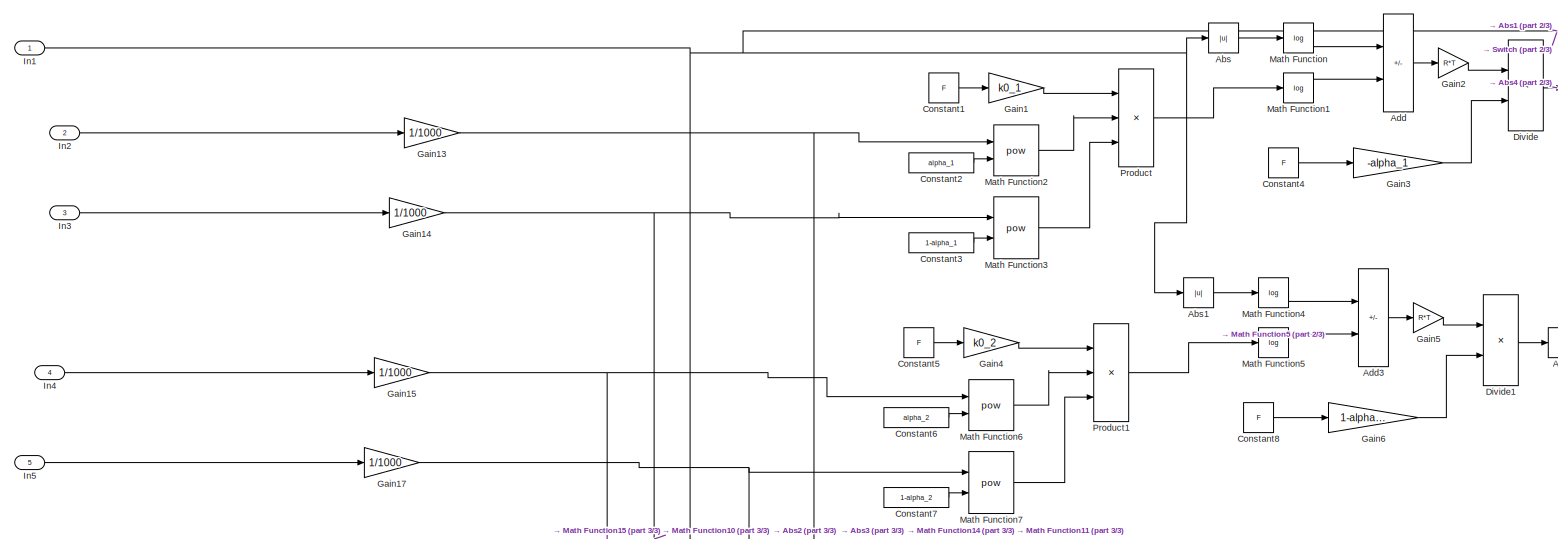
[diagram: Subsystem/Voltage_Overpotentials/Activation overpotential - part 1/3, top center region]
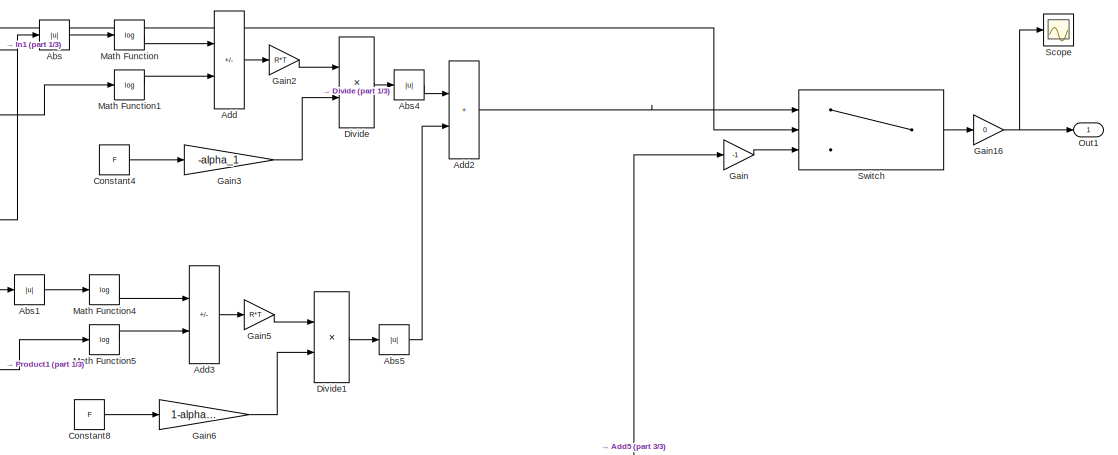
[diagram: Subsystem/Voltage_Overpotentials/Activation overpotential - part 2/3, top right region]
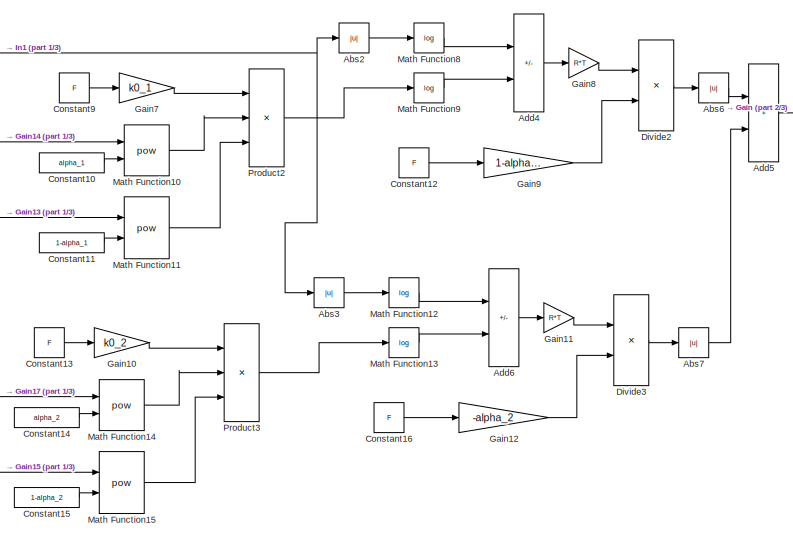
[diagram: Subsystem/Voltage_Overpotentials/Activation overpotential - part 3/3, bottom center region]
BLOCK [SubSystem] Subsystem/Voltage_Overpotentials/Activation overpotential
  Ports = [5, 1]
  RequestExecContextInheritance = off
BLOCK [Abs] Subsystem/Voltage_Overpotentials/Activation overpotential/Abs
  SaturateOnIntegerOverflow = off
BLOCK [Abs] Subsystem/Voltage_Overpotentials/Activation overpotential/Abs1
  SaturateOnIntegerOverflow = off
BLOCK [Abs] Subsystem/Voltage_Overpotentials/Activation overpotential/Abs2
  SaturateOnIntegerOverflow = off
BLOCK [Abs] Subsystem/Voltage_Overpotentials/Activation overpotential/Abs3
  SaturateOnIntegerOverflow = off
BLOCK [Abs] Subsystem/Voltage_Overpotentials/Activation overpotential/Abs4
  SaturateOnIntegerOverflow = off
BLOCK [Abs] Subsystem/Voltage_Overpotentials/Activation overpotential/Abs5
  SaturateOnIntegerOverflow = off
BLOCK [Abs] Subsystem/Voltage_Overpotentials/Activation overpotential/Abs6
  SaturateOnIntegerOverflow = off
BLOCK [Abs] Subsystem/Voltage_Overpotentials/Activation overpotential/Abs7
  SaturateOnIntegerOverflow = off
BLOCK [Sum] Subsystem/Voltage_Overpotentials/Activation overpotential/Add
  IconShape = rectangular
  Inputs = +-
  Ports = [2, 1]
BLOCK [Sum] Subsystem/Voltage_Overpotentials/Activation overpotential/Add2
  IconShape = rectangular
  Ports = [2, 1]
BLOCK [Sum] Subsystem/Voltage_Overpotentials/Activation overpotential/Add3
  IconShape = rectangular
  Inputs = +-
  Ports = [2, 1]
BLOCK [Sum] Subsystem/Voltage_Overpotentials/Activation overpotential/Add4
  IconShape = rectangular
  Inputs = +-
  Ports = [2, 1]
BLOCK [Sum] Subsystem/Voltage_Overpotentials/Activation overpotential/Add5
  IconShape = rectangular
  Ports = [2, 1]
BLOCK [Sum] Subsystem/Voltage_Overpotentials/Activation overpotential/Add6
  IconShape = rectangular
  Inputs = +-
  Ports = [2, 1]
BLOCK [Constant] Subsystem/Voltage_Overpotentials/Activation overpotential/Constant1
  Value = F
BLOCK [Constant] Subsystem/Voltage_Overpotentials/Activation overpotential/Constant10
  Value = alpha_1
BLOCK [Constant] Subsystem/Voltage_Overpotentials/Activation overpotential/Constant11
  Value = 1-alpha_1
BLOCK [Constant] Subsystem/Voltage_Overpotentials/Activation overpotential/Constant12
  Value = F
BLOCK [Constant] Subsystem/Voltage_Overpotentials/Activation overpotential/Constant13
  Value = F
BLOCK [Constant] Subsystem/Voltage_Overpotentials/Activation overpotential/Constant14
  Value = alpha_2
BLOCK [Constant] Subsystem/Voltage_Overpotentials/Activation overpotential/Constant15
  Value = 1-alpha_2
BLOCK [Constant] Subsystem/Voltage_Overpotentials/Activation overpotential/Constant16
  Value = F
BLOCK [Constant] Subsystem/Voltage_Overpotentials/Activation overpotential/Constant2
  Value = alpha_1
BLOCK [Constant] Subsystem/Voltage_Overpotentials/Activation overpotential/Constant3
  Value = 1-alpha_1
BLOCK [Constant] Subsystem/Voltage_Overpotentials/Activation overpotential/Constant4
  Value = F
BLOCK [Constant] Subsystem/Voltage_Overpotentials/Activation overpotential/Constant5
  Value = F
BLOCK [Constant] Subsystem/Voltage_Overpotentials/Activation overpotential/Constant6
  Value = alpha_2
BLOCK [Constant] Subsystem/Voltage_Overpotentials/Activation overpotential/Constant7
  Value = 1-alpha_2
BLOCK [Constant] Subsystem/Voltage_Overpotentials/Activation overpotential/Constant8
  Value = F
BLOCK [Constant] Subsystem/Voltage_Overpotentials/Activation overpotential/Constant9
  Value = F
BLOCK [Product] Subsystem/Voltage_Overpotentials/Activation overpotential/Divide
  Inputs = */
  Ports = [2, 1]
BLOCK [Product] Subsystem/Voltage_Overpotentials/Activation overpotential/Divide1
  Inputs = */
  Ports = [2, 1]
BLOCK [Product] Subsystem/Voltage_Overpotentials/Activation overpotential/Divide2
  Inputs = */
  Ports = [2, 1]
BLOCK [Product] Subsystem/Voltage_Overpotentials/Activation overpotential/Divide3
  Inputs = */
  Ports = [2, 1]
BLOCK [Gain] Subsystem/Voltage_Overpotentials/Activation overpotential/Gain
  Gain = -1
BLOCK [Gain] Subsystem/Voltage_Overpotentials/Activation overpotential/Gain1
  Gain = k0_1
BLOCK [Gain] Subsystem/Voltage_Overpotentials/Activation overpotential/Gain10
  Gain = k0_2
BLOCK [Gain] Subsystem/Voltage_Overpotentials/Activation overpotential/Gain11
  Gain = R*T
BLOCK [Gain] Subsystem/Voltage_Overpotentials/Activation overpotential/Gain12
  Gain = -alpha_2
BLOCK [Gain] Subsystem/Voltage_Overpotentials/Activation overpotential/Gain13
  Gain = 1/1000
BLOCK [Gain] Subsystem/Voltage_Overpotentials/Activation overpotential/Gain14
  Gain = 1/1000
BLOCK [Gain] Subsystem/Voltage_Overpotentials/Activation overpotential/Gain15
  Gain = 1/1000
BLOCK [Gain] Subsystem/Voltage_Overpotentials/Activation overpotential/Gain16
  Gain = 0
BLOCK [Gain] Subsystem/Voltage_Overpotentials/Activation overpotential/Gain17
  Gain = 1/1000
BLOCK [Gain] Subsystem/Voltage_Overpotentials/Activation overpotential/Gain2
  Gain = R*T
BLOCK [Gain] Subsystem/Voltage_Overpotentials/Activation overpotential/Gain3
  Gain = -alpha_1
BLOCK [Gain] Subsystem/Voltage_Overpotentials/Activation overpotential/Gain4
  Gain = k0_2
BLOCK [Gain] Subsystem/Voltage_Overpotentials/Activation overpotential/Gain5
  Gain = R*T
BLOCK [Gain] Subsystem/Voltage_Overpotentials/Activation overpotential/Gain6
  Gain = 1-alpha_2
BLOCK [Gain] Subsystem/Voltage_Overpotentials/Activation overpotential/Gain7
  Gain = k0_1
BLOCK [Gain] Subsystem/Voltage_Overpotentials/Activation overpotential/Gain8
  Gain = R*T
BLOCK [Gain] Subsystem/Voltage_Overpotentials/Activation overpotential/Gain9
  Gain = 1-alpha_1
BLOCK [Inport] Subsystem/Voltage_Overpotentials/Activation overpotential/In1
BLOCK [Inport] Subsystem/Voltage_Overpotentials/Activation overpotential/In2
  Port = 2
BLOCK [Inport] Subsystem/Voltage_Overpotentials/Activation overpotential/In3
  Port = 3
BLOCK [Inport] Subsystem/Voltage_Overpotentials/Activation overpotential/In4
  Port = 4
BLOCK [Inport] Subsystem/Voltage_Overpotentials/Activation overpotential/In5
  Port = 5
BLOCK [Math] Subsystem/Voltage_Overpotentials/Activation overpotential/Math Function
  Operator = log
  Ports = [1, 1]
BLOCK [Math] Subsystem/Voltage_Overpotentials/Activation overpotential/Math Function1
  Operator = log
  Ports = [1, 1]
BLOCK [Math] Subsystem/Voltage_Overpotentials/Activation overpotential/Math Function10
  Operator = pow
  Ports = [2, 1]
BLOCK [Math] Subsystem/Voltage_Overpotentials/Activation overpotential/Math Function11
  Operator = pow
  Ports = [2, 1]
BLOCK [Math] Subsystem/Voltage_Overpotentials/Activation overpotential/Math Function12
  Operator = log
  Ports = [1, 1]
BLOCK [Math] Subsystem/Voltage_Overpotentials/Activation overpotential/Math Function13
  Operator = log
  Ports = [1, 1]
BLOCK [Math] Subsystem/Voltage_Overpotentials/Activation overpotential/Math Function14
  Operator = pow
  Ports = [2, 1]
BLOCK [Math] Subsystem/Voltage_Overpotentials/Activation overpotential/Math Function15
  Operator = pow
  Ports = [2, 1]
BLOCK [Math] Subsystem/Voltage_Overpotentials/Activation overpotential/Math Function2
  Operator = pow
  Ports = [2, 1]
BLOCK [Math] Subsystem/Voltage_Overpotentials/Activation overpotential/Math Function3
  Operator = pow
  Ports = [2, 1]
BLOCK [Math] Subsystem/Voltage_Overpotentials/Activation overpotential/Math Function4
  Operator = log
  Ports = [1, 1]
BLOCK [Math] Subsystem/Voltage_Overpotentials/Activation overpotential/Math Function5
  Operator = log
  Ports = [1, 1]
BLOCK [Math] Subsystem/Voltage_Overpotentials/Activation overpotential/Math Function6
  Operator = pow
  Ports = [2, 1]
BLOCK [Math] Subsystem/Voltage_Overpotentials/Activation overpotential/Math Function7
  Operator = pow
  Ports = [2, 1]
BLOCK [Math] Subsystem/Voltage_Overpotentials/Activation overpotential/Math Function8
  Operator = log
  Ports = [1, 1]
BLOCK [Math] Subsystem/Voltage_Overpotentials/Activation overpotential/Math Function9
  Operator = log
  Ports = [1, 1]
BLOCK [Outport] Subsystem/Voltage_Overpotentials/Activation overpotential/Out1
BLOCK [Product] Subsystem/Voltage_Overpotentials/Activation overpotential/Product
  Inputs = 3
  Ports = [3, 1]
BLOCK [Product] Subsystem/Voltage_Overpotentials/Activation overpotential/Product1
  Inputs = 3
  Ports = [3, 1]
BLOCK [Product] Subsystem/Voltage_Overpotentials/Activation overpotential/Product2
  Inputs = 3
  Ports = [3, 1]
BLOCK [Product] Subsystem/Voltage_Overpotentials/Activation overpotential/Product3
  Inputs = 3
  Ports = [3, 1]
BLOCK [Scope] Subsystem/Voltage_Overpotentials/Activation overpotential/Scope
  Floating = off
  NumInputPorts = 1
  Ports = [1]
  ScopeSpecificationString = Simulink.scopes.TimeScopeBlockCfg('CurrentConfiguration', extmgr.ConfigurationSet(extmgr.Configuration('Core','General UI',true),extmgr.Configuration('Core','Source UI',true),extmgr.Configuration('Sources','WiredSimulink',true),extmgr.Configuration('Visuals','Time Domain',true,'SerializedDisplays',{struct('MinYLimReal','-3.84425','MaxYLimReal','3.70778','YLabelReal','','MinYLimMag','0.00000','MaxY...<+1351ch>
BLOCK [Switch] Subsystem/Voltage_Overpotentials/Activation overpotential/Switch
  Criteria = u2 > Threshold
  InputSameDT = off
  SaturateOnIntegerOverflow = off
BLOCK [Sum] Subsystem/Voltage_Overpotentials/Add1
  IconShape = rectangular
  Inputs = ++++
  Ports = [4, 1]
BLOCK [Constant] Subsystem/Voltage_Overpotentials/Constant
  Value = E0
BLOCK [Demux] Subsystem/Voltage_Overpotentials/Demux
  Outputs = 2
  Ports = [1, 2]
BLOCK [Demux] Subsystem/Voltage_Overpotentials/Demux1
  Outputs = 2
  Ports = [1, 2]
BLOCK [From] Subsystem/Voltage_Overpotentials/From10
  GotoTag = C3
BLOCK [From] Subsystem/Voltage_Overpotentials/From11
  GotoTag = V_Ohm
BLOCK [From] Subsystem/Voltage_Overpotentials/From12
  GotoTag = C5
BLOCK [From] Subsystem/Voltage_Overpotentials/From14
  GotoTag = C4
BLOCK [From] Subsystem/Voltage_Overpotentials/From15
  GotoTag = V_Act
BLOCK [From] Subsystem/Voltage_Overpotentials/From16
  GotoTag = C2
BLOCK [From] Subsystem/Voltage_Overpotentials/From17
  GotoTag = C3
BLOCK [From] Subsystem/Voltage_Overpotentials/From18
  GotoTag = C4
BLOCK [From] Subsystem/Voltage_Overpotentials/From19
  GotoTag = C5
BLOCK [From] Subsystem/Voltage_Overpotentials/From2
  GotoTag = I
BLOCK [From] Subsystem/Voltage_Overpotentials/From20
  GotoTag = V_Nerst
BLOCK [From] Subsystem/Voltage_Overpotentials/From8
  GotoTag = I
BLOCK [From] Subsystem/Voltage_Overpotentials/From9
  GotoTag = C2
BLOCK [Gain] Subsystem/Voltage_Overpotentials/Gain
  Gain = r
BLOCK [Goto] Subsystem/Voltage_Overpotentials/Goto1
  GotoTag = I
BLOCK [Goto] Subsystem/Voltage_Overpotentials/Goto12
  GotoTag = C2
BLOCK [Goto] Subsystem/Voltage_Overpotentials/Goto13
  GotoTag = C3
BLOCK [Goto] Subsystem/Voltage_Overpotentials/Goto14
  GotoTag = C4
BLOCK [Goto] Subsystem/Voltage_Overpotentials/Goto17
  GotoTag = C5
BLOCK [Goto] Subsystem/Voltage_Overpotentials/Goto7
  GotoTag = V_Act
BLOCK [Goto] Subsystem/Voltage_Overpotentials/Goto8
  GotoTag = V_Nerst
BLOCK [Goto] Subsystem/Voltage_Overpotentials/Goto9
  GotoTag = V_Ohm
BLOCK [Inport] Subsystem/Voltage_Overpotentials/In1
BLOCK [Inport] Subsystem/Voltage_Overpotentials/In2
  Port = 2
BLOCK [Inport] Subsystem/Voltage_Overpotentials/In3
  Port = 3
BLOCK [SubSystem] Subsystem/Voltage_Overpotentials/Subsystem2
  Ports = [4, 1]
  RequestExecContextInheritance = off
BLOCK [Sum] Subsystem/Voltage_Overpotentials/Subsystem2/Add
  IconShape = rectangular
  Ports = [2, 1]
BLOCK [Constant] Subsystem/Voltage_Overpotentials/Subsystem2/Constant
  Value = Chini
BLOCK [Product] Subsystem/Voltage_Overpotentials/Subsystem2/Divide5
  Inputs = */
  Ports = [2, 1]
BLOCK [Product] Subsystem/Voltage_Overpotentials/Subsystem2/Divide6
  Inputs = **
  Ports = [2, 1]
BLOCK [Gain] Subsystem/Voltage_Overpotentials/Subsystem2/F2
  Gain = (R*T)/(F)
BLOCK [Gain] Subsystem/Voltage_Overpotentials/Subsystem2/Gain1
  Gain = 1/1000
  Multiplication = Matrix(K*u)
BLOCK [Gain] Subsystem/Voltage_Overpotentials/Subsystem2/Gain5
  Gain = 1/1000
  Multiplication = Matrix(K*u)
BLOCK [Gain] Subsystem/Voltage_Overpotentials/Subsystem2/Gain6
  Multiplication = Matrix(K*u)
BLOCK [Inport] Subsystem/Voltage_Overpotentials/Subsystem2/In1
BLOCK [Inport] Subsystem/Voltage_Overpotentials/Subsystem2/In2
  Port = 2
BLOCK [Inport] Subsystem/Voltage_Overpotentials/Subsystem2/In3
  Port = 3
BLOCK [Inport] Subsystem/Voltage_Overpotentials/Subsystem2/In4
  Port = 4
BLOCK [ManualSwitch] Subsystem/Voltage_Overpotentials/Subsystem2/Manual Switch
  CurrentSetting = 0
BLOCK [Math] Subsystem/Voltage_Overpotentials/Subsystem2/Math Function
  Operator = magnitude^2
  Ports = [1, 1]
BLOCK [Outport] Subsystem/Voltage_Overpotentials/Subsystem2/Out1
BLOCK [Product] Subsystem/Voltage_Overpotentials/Subsystem2/Product1
  Ports = [2, 1]
BLOCK [Product] Subsystem/Voltage_Overpotentials/Subsystem2/Product2
  Ports = [2, 1]
BLOCK [Saturate] Subsystem/Voltage_Overpotentials/Subsystem2/Saturation2
  LowerLimit = 1e-5
  UpperLimit = 1e5
BLOCK [Math] Subsystem/Voltage_Overpotentials/Subsystem2/ln1
  Operator = log
  Ports = [1, 1]
  SignedPower = on
BLOCK [Outport] Subsystem/Voltage_Overpotentials/V_Stack
BLOCK [ToWorkspace] To Workspace
  FixptAsFi = on
  MaxDataPoints = inf
  Ports = [1]
  SampleTime = 1.0
  Save2DSignal = 2-D array (concatenate along first dimension)
  VariableName = Vestimated
BLOCK [ToWorkspace] To Workspace3
  FixptAsFi = on
  MaxDataPoints = inf
  Ports = [1]
  SampleTime = 1.0
  Save2DSignal = 2-D array (concatenate along first dimension)
  VariableName = current
ANNOTATION (root): Current and Flow Rate Selection
ANNOTATION Subsystem: Electrochemical Model
ANNOTATION Subsystem: SOC, Power and Energy
ANNOTATION Subsystem/Hydraulic_pressure: Pressure_Drops
ANNOTATION Subsystem/Hydraulic_pressure: Pump_Power
ANNOTATION Subsystem/Temperature: Thermal Model
LINE Constant1:1 -> Goto1:1
LINE Constant3:1 -> Goto3:1
LINE From Workspace:1 -> Gain1:1
LINE From108:1 -> Subsystem:3
LINE From2:1 -> Subsystem:2
LINE From4:1 -> Subsystem:1
NET Gain1:1 -> Goto5:1, To Workspace3:1
LINE Subsystem/Anolyte_Tank/Ccell_Catholyte:1 -> Subsystem/Anolyte_Tank/Product15:2
LINE Subsystem/Anolyte_Tank/Gain13:1 -> Subsystem/Anolyte_Tank/Integrator Limited4:1
LINE Subsystem/Anolyte_Tank/Gain1:1 -> Subsystem/Anolyte_Tank/Gain13:1
NET Subsystem/Anolyte_Tank/Integrator Limited4:1 -> Subsystem/Anolyte_Tank/Ctank_Catholyte:1, Subsystem/Anolyte_Tank/Product16:2
LINE Subsystem/Anolyte_Tank/Product15:1 -> Subsystem/Anolyte_Tank/Sum12:1
LINE Subsystem/Anolyte_Tank/Product16:1 -> Subsystem/Anolyte_Tank/Sum12:2
NET Subsystem/Anolyte_Tank/Q1:1 -> Subsystem/Anolyte_Tank/Product15:1, Subsystem/Anolyte_Tank/Product16:1
LINE Subsystem/Anolyte_Tank/Sum12:1 -> Subsystem/Anolyte_Tank/Gain1:1
NET Subsystem/Anolyte_Tank:1 -> Subsystem/Goto1:1, Subsystem/Scope3:1
LINE Subsystem/Catholyte_Tank/Ccell_Catholyte:1 -> Subsystem/Catholyte_Tank/Product15:2
LINE Subsystem/Catholyte_Tank/Gain13:1 -> Subsystem/Catholyte_Tank/Integrator Limited4:1
LINE Subsystem/Catholyte_Tank/Gain1:1 -> Subsystem/Catholyte_Tank/Gain13:1
NET Subsystem/Catholyte_Tank/Integrator Limited4:1 -> Subsystem/Catholyte_Tank/Ctank_Catholyte:1, Subsystem/Catholyte_Tank/Product16:2
LINE Subsystem/Catholyte_Tank/Product15:1 -> Subsystem/Catholyte_Tank/Sum12:1
LINE Subsystem/Catholyte_Tank/Product16:1 -> Subsystem/Catholyte_Tank/Sum12:2
NET Subsystem/Catholyte_Tank/Q1:1 -> Subsystem/Catholyte_Tank/Product15:1, Subsystem/Catholyte_Tank/Product16:1
LINE Subsystem/Catholyte_Tank/Sum12:1 -> Subsystem/Catholyte_Tank/Gain1:1
NET Subsystem/Catholyte_Tank:1 -> Subsystem/Goto:1, Subsystem/Scope:1
LINE Subsystem/Cell//Stack/Ctank_Anolyte:1 -> Subsystem/Cell//Stack/Sum14:1
LINE Subsystem/Cell//Stack/Ctank_Catholyte:1 -> Subsystem/Cell//Stack/Sum15:1
NET Subsystem/Cell//Stack/Demux6:1 -> Subsystem/Cell//Stack/Ccell_Anolyte:1, Subsystem/Cell//Stack/Sum14:2
NET Subsystem/Cell//Stack/Demux6:2 -> Subsystem/Cell//Stack/Ccell_Catholyte:1, Subsystem/Cell//Stack/Sum15:2
LINE Subsystem/Cell//Stack/Gain15:1 -> Subsystem/Cell//Stack/Product19:2
LINE Subsystem/Cell//Stack/Gain16:1 -> Subsystem/Cell//Stack/Product20:2
LINE Subsystem/Cell//Stack/Gain18:1 -> Subsystem/Cell//Stack/Sum16:3
LINE Subsystem/Cell//Stack/Gain1:1 -> Subsystem/Cell//Stack/Integrator Limited6:1
LINE Subsystem/Cell//Stack/Gain20:1 -> Subsystem/Cell//Stack/Sum16:2
LINE Subsystem/Cell//Stack/I :1 -> Subsystem/Cell//Stack/Product21:1
LINE Subsystem/Cell//Stack/I_VEC2:1 -> Subsystem/Cell//Stack/Product21:2
NET Subsystem/Cell//Stack/Integrator Limited6:1 -> Subsystem/Cell//Stack/Demux6:1, Subsystem/Cell//Stack/Matrix Multiply2:1
LINE Subsystem/Cell//Stack/Matrix Multiply2:1 -> Subsystem/Cell//Stack/Gain18:1
LINE Subsystem/Cell//Stack/Mux2:1 -> Subsystem/Cell//Stack/Sum16:1
LINE Subsystem/Cell//Stack/Product19:1 -> Subsystem/Cell//Stack/Mux2:1
LINE Subsystem/Cell//Stack/Product20:1 -> Subsystem/Cell//Stack/Mux2:2
LINE Subsystem/Cell//Stack/Product21:1 -> Subsystem/Cell//Stack/Gain20:1
LINE Subsystem/Cell//Stack/Q1:1 -> Subsystem/Cell//Stack/Gain15:1
LINE Subsystem/Cell//Stack/Q2:1 -> Subsystem/Cell//Stack/Gain16:1
LINE Subsystem/Cell//Stack/Sum14:1 -> Subsystem/Cell//Stack/Product19:1
LINE Subsystem/Cell//Stack/Sum15:1 -> Subsystem/Cell//Stack/Product20:1
LINE Subsystem/Cell//Stack/Sum16:1 -> Subsystem/Cell//Stack/Gain1:1
LINE Subsystem/Cell//Stack/dif1:1 -> Subsystem/Cell//Stack/Matrix Multiply2:2
NET Subsystem/Cell//Stack:1 -> Subsystem/Goto15:1, Subsystem/Scope1:1
NET Subsystem/Cell//Stack:2 -> Subsystem/Goto10:1, Subsystem/Scope2:1
LINE Subsystem/Energy/Add1:1 -> Subsystem/Energy/Gain1:1
LINE Subsystem/Energy/Add:1 -> Subsystem/Energy/Gain:1
LINE Subsystem/Energy/Constant1:1 -> Subsystem/Energy/Add1:1
LINE Subsystem/Energy/Constant2:1 -> Subsystem/Energy/Divide9:1
LINE Subsystem/Energy/Constant3:1 -> Subsystem/Energy/Add1:2
LINE Subsystem/Energy/Constant4:1 -> Subsystem/Energy/Divide9:4
LINE Subsystem/Energy/Divide11:1 -> Subsystem/Energy/E:1
LINE Subsystem/Energy/Divide9:1 -> Subsystem/Energy/Divide11:1
LINE Subsystem/Energy/Gain1:1 -> Subsystem/Energy/Divide9:3
LINE Subsystem/Energy/Gain:1 -> Subsystem/Energy/Divide9:2
LINE Subsystem/Energy/SOC_Anolyte:1 -> Subsystem/Energy/Add:2
LINE Subsystem/Energy/SOC_Catholyte:1 -> Subsystem/Energy/Add:1
LINE Subsystem/Energy/Ucell :1 -> Subsystem/Energy/Divide11:2
LINE Subsystem/Energy:1 -> Subsystem/Goto6:1
LINE Subsystem/From10:1 -> Subsystem/Power:2
LINE Subsystem/From1:1 -> Subsystem/Cell//Stack:1
LINE Subsystem/From21:1 -> Subsystem/Voltage_Overpotentials:1
LINE Subsystem/From22:1 -> Subsystem/Voltage_Overpotentials:2
LINE Subsystem/From31:1 -> Subsystem/Catholyte_Tank:2
LINE Subsystem/From32:1 -> Subsystem/Anolyte_Tank:2
LINE Subsystem/From34:1 -> Subsystem/Cell//Stack:4
LINE Subsystem/From35:1 -> Subsystem/Cell//Stack:5
LINE Subsystem/From36:1 -> Subsystem/Energy:3
LINE Subsystem/From39:1 -> Subsystem/Hydraulic_pressure:1
LINE Subsystem/From3:1 -> Subsystem/Anolyte_Tank:1
LINE Subsystem/From40:1 -> Subsystem/Hydraulic_pressure:2
LINE Subsystem/From4:1 -> Subsystem/Catholyte_Tank:1
LINE Subsystem/From5:1 -> Subsystem/Energy:1
LINE Subsystem/From6:1 -> Subsystem/SOC:1
LINE Subsystem/From7:1 -> Subsystem/SOC:2
LINE Subsystem/From8:1 -> Subsystem/Power:1
LINE Subsystem/From9:1 -> Subsystem/Energy:2
LINE Subsystem/From:1 -> Subsystem/Cell//Stack:2
LINE Subsystem/Hydraulic_pressure/Add:1 -> Subsystem/Hydraulic_pressure/Gain1:1
LINE Subsystem/Hydraulic_pressure/From50:1 -> Subsystem/Hydraulic_pressure/Pressure_Losses_Line1:1
LINE Subsystem/Hydraulic_pressure/From58:1 -> Subsystem/Hydraulic_pressure/Pressure_Losses_Line2:1
LINE Subsystem/Hydraulic_pressure/From72:1 -> Subsystem/Hydraulic_pressure/Power_stack1:1
LINE Subsystem/Hydraulic_pressure/From73:1 -> Subsystem/Hydraulic_pressure/Product1:1
LINE Subsystem/Hydraulic_pressure/From74:1 -> Subsystem/Hydraulic_pressure/Power_stack1:3
LINE Subsystem/Hydraulic_pressure/From75:1 -> Subsystem/Hydraulic_pressure/Product1:2
LINE Subsystem/Hydraulic_pressure/From76:1 -> Subsystem/Hydraulic_pressure/Power_stack1:4
LINE Subsystem/Hydraulic_pressure/From77:1 -> Subsystem/Hydraulic_pressure/Product2:1
LINE Subsystem/Hydraulic_pressure/From78:1 -> Subsystem/Hydraulic_pressure/Power_stack1:2
LINE Subsystem/Hydraulic_pressure/From79:1 -> Subsystem/Hydraulic_pressure/Product2:2
LINE Subsystem/Hydraulic_pressure/From80:1 -> Subsystem/Hydraulic_pressure/Power_stack2:1
LINE Subsystem/Hydraulic_pressure/From81:1 -> Subsystem/Hydraulic_pressure/Power_stack2:3
LINE Subsystem/Hydraulic_pressure/From82:1 -> Subsystem/Hydraulic_pressure/Power_stack2:4
LINE Subsystem/Hydraulic_pressure/From83:1 -> Subsystem/Hydraulic_pressure/Power_stack2:2
LINE Subsystem/Hydraulic_pressure/From84:1 -> Subsystem/Hydraulic_pressure/Add:1
LINE Subsystem/Hydraulic_pressure/From85:1 -> Subsystem/Hydraulic_pressure/Add:2
LINE Subsystem/Hydraulic_pressure/From86:1 -> Subsystem/Hydraulic_pressure/Add:3
LINE Subsystem/Hydraulic_pressure/From87:1 -> Subsystem/Hydraulic_pressure/Add:4
LINE Subsystem/Hydraulic_pressure/Gain1:1 -> Subsystem/Hydraulic_pressure/Out1:1
LINE Subsystem/Hydraulic_pressure/Power_stack1/Add:1 -> Subsystem/Hydraulic_pressure/Power_stack1/Wstack1:1
LINE Subsystem/Hydraulic_pressure/Power_stack1/Pcol1:1 -> Subsystem/Hydraulic_pressure/Power_stack1/Product1:2
LINE Subsystem/Hydraulic_pressure/Power_stack1/Pel1:1 -> Subsystem/Hydraulic_pressure/Power_stack1/Product2:1
LINE Subsystem/Hydraulic_pressure/Power_stack1/Prec1:1 -> Subsystem/Hydraulic_pressure/Power_stack1/Product:2
LINE Subsystem/Hydraulic_pressure/Power_stack1/Product1:1 -> Subsystem/Hydraulic_pressure/Power_stack1/Add:1
LINE Subsystem/Hydraulic_pressure/Power_stack1/Product2:1 -> Subsystem/Hydraulic_pressure/Power_stack1/Add:3
LINE Subsystem/Hydraulic_pressure/Power_stack1/Product:1 -> Subsystem/Hydraulic_pressure/Power_stack1/Add:2
NET Subsystem/Hydraulic_pressure/Power_stack1/Q1:1 -> Subsystem/Hydraulic_pressure/Power_stack1/Product1:1, Subsystem/Hydraulic_pressure/Power_stack1/Product2:2, Subsystem/Hydraulic_pressure/Power_stack1/Product:1
LINE Subsystem/Hydraulic_pressure/Power_stack1:1 -> Subsystem/Hydraulic_pressure/Goto50:1
LINE Subsystem/Hydraulic_pressure/Power_stack2/Add:1 -> Subsystem/Hydraulic_pressure/Power_stack2/Wstack2:1
LINE Subsystem/Hydraulic_pressure/Power_stack2/Pcol2:1 -> Subsystem/Hydraulic_pressure/Power_stack2/Product1:2
LINE Subsystem/Hydraulic_pressure/Power_stack2/Pel2:1 -> Subsystem/Hydraulic_pressure/Power_stack2/Product2:1
LINE Subsystem/Hydraulic_pressure/Power_stack2/Prec2:1 -> Subsystem/Hydraulic_pressure/Power_stack2/Product:2
LINE Subsystem/Hydraulic_pressure/Power_stack2/Product1:1 -> Subsystem/Hydraulic_pressure/Power_stack2/Add:1
LINE Subsystem/Hydraulic_pressure/Power_stack2/Product2:1 -> Subsystem/Hydraulic_pressure/Power_stack2/Add:3
LINE Subsystem/Hydraulic_pressure/Power_stack2/Product:1 -> Subsystem/Hydraulic_pressure/Power_stack2/Add:2
NET Subsystem/Hydraulic_pressure/Power_stack2/Q2:1 -> Subsystem/Hydraulic_pressure/Power_stack2/Product1:1, Subsystem/Hydraulic_pressure/Power_stack2/Product2:2, Subsystem/Hydraulic_pressure/Power_stack2/Product:1
LINE Subsystem/Hydraulic_pressure/Power_stack2:1 -> Subsystem/Hydraulic_pressure/Goto51:1
LINE Subsystem/Hydraulic_pressure/Pressure_Losses_Line1/Add:1 -> Subsystem/Hydraulic_pressure/Pressure_Losses_Line1/Pressure_Losses_L1:1
LINE Subsystem/Hydraulic_pressure/Pressure_Losses_Line1/Elbows_Losses/Gain1:1 -> Subsystem/Hydraulic_pressure/Pressure_Losses_Line1/Elbows_Losses/Gain2:1
LINE Subsystem/Hydraulic_pressure/Pressure_Losses_Line1/Elbows_Losses/Gain2:1 -> Subsystem/Hydraulic_pressure/Pressure_Losses_Line1/Elbows_Losses/Gain3:1
NET Subsystem/Hydraulic_pressure/Pressure_Losses_Line1/Elbows_Losses/Gain3:1 -> Subsystem/Hydraulic_pressure/Pressure_Losses_Line1/Elbows_Losses/Product:1, Subsystem/Hydraulic_pressure/Pressure_Losses_Line1/Elbows_Losses/Product:2
LINE Subsystem/Hydraulic_pressure/Pressure_Losses_Line1/Elbows_Losses/Gain4:1 -> Subsystem/Hydraulic_pressure/Pressure_Losses_Line1/Elbows_Losses/Gain5:1
NET Subsystem/Hydraulic_pressure/Pressure_Losses_Line1/Elbows_Losses/Gain5:1 -> Subsystem/Hydraulic_pressure/Pressure_Losses_Line1/Elbows_Losses/Pelb_pipes:1, Subsystem/Hydraulic_pressure/Pressure_Losses_Line1/Elbows_Losses/Sum of Elements:1
LINE Subsystem/Hydraulic_pressure/Pressure_Losses_Line1/Elbows_Losses/Product:1 -> Subsystem/Hydraulic_pressure/Pressure_Losses_Line1/Elbows_Losses/Gain4:1
LINE Subsystem/Hydraulic_pressure/Pressure_Losses_Line1/Elbows_Losses/Q1:1 -> Subsystem/Hydraulic_pressure/Pressure_Losses_Line1/Elbows_Losses/Gain1:1
LINE Subsystem/Hydraulic_pressure/Pressure_Losses_Line1/Elbows_Losses/Sum of Elements:1 -> Subsystem/Hydraulic_pressure/Pressure_Losses_Line1/Elbows_Losses/Pelb:1
NET Subsystem/Hydraulic_pressure/Pressure_Losses_Line1/Elbows_Losses:1 -> Subsystem/Hydraulic_pressure/Pressure_Losses_Line1/Add:2, Subsystem/Hydraulic_pressure/Pressure_Losses_Line1/PelbL1:1
LINE Subsystem/Hydraulic_pressure/Pressure_Losses_Line1/Elbows_Losses:2 -> Subsystem/Hydraulic_pressure/Pressure_Losses_Line1/PelbL1_pipes:1
NET Subsystem/Hydraulic_pressure/Pressure_Losses_Line1/Flow_Division_Losses/Demux:3 -> Subsystem/Hydraulic_pressure/Pressure_Losses_Line1/Flow_Division_Losses/Product2:1, Subsystem/Hydraulic_pressure/Pressure_Losses_Line1/Flow_Division_Losses/Product2:2
LINE Subsystem/Hydraulic_pressure/Pressure_Losses_Line1/Flow_Division_Losses/Gain1:1 -> Subsystem/Hydraulic_pressure/Pressure_Losses_Line1/Flow_Division_Losses/Gain2:1
LINE Subsystem/Hydraulic_pressure/Pressure_Losses_Line1/Flow_Division_Losses/Gain2:1 -> Subsystem/Hydraulic_pressure/Pressure_Losses_Line1/Flow_Division_Losses/Gain3:1
LINE Subsystem/Hydraulic_pressure/Pressure_Losses_Line1/Flow_Division_Losses/Gain3:1 -> Subsystem/Hydraulic_pressure/Pressure_Losses_Line1/Flow_Division_Losses/Demux:1
LINE Subsystem/Hydraulic_pressure/Pressure_Losses_Line1/Flow_Division_Losses/Gain4:1 -> Subsystem/Hydraulic_pressure/Pressure_Losses_Line1/Flow_Division_Losses/Pflow_div:1
LINE Subsystem/Hydraulic_pressure/Pressure_Losses_Line1/Flow_Division_Losses/Product2:1 -> Subsystem/Hydraulic_pressure/Pressure_Losses_Line1/Flow_Division_Losses/Gain4:1
LINE Subsystem/Hydraulic_pressure/Pressure_Losses_Line1/Flow_Division_Losses/Q1:1 -> Subsystem/Hydraulic_pressure/Pressure_Losses_Line1/Flow_Division_Losses/Gain1:1
NET Subsystem/Hydraulic_pressure/Pressure_Losses_Line1/Flow_Division_Losses:1 -> Subsystem/Hydraulic_pressure/Pressure_Losses_Line1/Add:6, Subsystem/Hydraulic_pressure/Pressure_Losses_Line1/Pflow_divL1:1
NET Subsystem/Hydraulic_pressure/Pressure_Losses_Line1/In1:1 -> Subsystem/Hydraulic_pressure/Pressure_Losses_Line1/Elbows_Losses:1, Subsystem/Hydraulic_pressure/Pressure_Losses_Line1/Flow_Division_Losses:1, Subsystem/Hydraulic_pressure/Pressure_Losses_Line1/Input_Output_Losses:1, Subsystem/Hydraulic_pressure/Pressure_Losses_Line1/Pipes_Distributed_Losses:1, Subsystem/Hydraulic_pressure/Pressure_Losses_Line1/Section_Change_Losses:1, Subsystem/Hydraulic_pressure/Pressure_Losses_Line1/Valves_Losses:1
LINE Subsystem/Hydraulic_pressure/Pressure_Losses_Line1/Input_Output_Losses/Add:1 -> Subsystem/Hydraulic_pressure/Pressure_Losses_Line1/Input_Output_Losses/Pin_out:1
NET Subsystem/Hydraulic_pressure/Pressure_Losses_Line1/Input_Output_Losses/Demux:3 -> Subsystem/Hydraulic_pressure/Pressure_Losses_Line1/Input_Output_Losses/Product2:1, Subsystem/Hydraulic_pressure/Pressure_Losses_Line1/Input_Output_Losses/Product2:2
LINE Subsystem/Hydraulic_pressure/Pressure_Losses_Line1/Input_Output_Losses/Gain1:1 -> Subsystem/Hydraulic_pressure/Pressure_Losses_Line1/Input_Output_Losses/Gain2:1
LINE Subsystem/Hydraulic_pressure/Pressure_Losses_Line1/Input_Output_Losses/Gain2:1 -> Subsystem/Hydraulic_pressure/Pressure_Losses_Line1/Input_Output_Losses/Gain3:1
LINE Subsystem/Hydraulic_pressure/Pressure_Losses_Line1/Input_Output_Losses/Gain3:1 -> Subsystem/Hydraulic_pressure/Pressure_Losses_Line1/Input_Output_Losses/Demux:1
LINE Subsystem/Hydraulic_pressure/Pressure_Losses_Line1/Input_Output_Losses/Gain4:1 -> Subsystem/Hydraulic_pressure/Pressure_Losses_Line1/Input_Output_Losses/Add:2
LINE Subsystem/Hydraulic_pressure/Pressure_Losses_Line1/Input_Output_Losses/Gain5:1 -> Subsystem/Hydraulic_pressure/Pressure_Losses_Line1/Input_Output_Losses/Add:1
NET Subsystem/Hydraulic_pressure/Pressure_Losses_Line1/Input_Output_Losses/Product2:1 -> Subsystem/Hydraulic_pressure/Pressure_Losses_Line1/Input_Output_Losses/Gain4:1, Subsystem/Hydraulic_pressure/Pressure_Losses_Line1/Input_Output_Losses/Gain5:1
LINE Subsystem/Hydraulic_pressure/Pressure_Losses_Line1/Input_Output_Losses/Q1:1 -> Subsystem/Hydraulic_pressure/Pressure_Losses_Line1/Input_Output_Losses/Gain1:1
NET Subsystem/Hydraulic_pressure/Pressure_Losses_Line1/Input_Output_Losses:1 -> Subsystem/Hydraulic_pressure/Pressure_Losses_Line1/Add:5, Subsystem/Hydraulic_pressure/Pressure_Losses_Line1/Pin_outL1:1
LINE Subsystem/Hydraulic_pressure/Pressure_Losses_Line1/Pipes_Distributed_Losses/Gain1:1 -> Subsystem/Hydraulic_pressure/Pressure_Losses_Line1/Pipes_Distributed_Losses/Gain2:1
LINE Subsystem/Hydraulic_pressure/Pressure_Losses_Line1/Pipes_Distributed_Losses/Gain2:1 -> Subsystem/Hydraulic_pressure/Pressure_Losses_Line1/Pipes_Distributed_Losses/Gain3:1
NET Subsystem/Hydraulic_pressure/Pressure_Losses_Line1/Pipes_Distributed_Losses/Gain3:1 -> Subsystem/Hydraulic_pressure/Pressure_Losses_Line1/Pipes_Distributed_Losses/Product:1, Subsystem/Hydraulic_pressure/Pressure_Losses_Line1/Pipes_Distributed_Losses/Product:2
NET Subsystem/Hydraulic_pressure/Pressure_Losses_Line1/Pipes_Distributed_Losses/Gain4:1 -> Subsystem/Hydraulic_pressure/Pressure_Losses_Line1/Pipes_Distributed_Losses/Pdis_L1_pipes:1, Subsystem/Hydraulic_pressure/Pressure_Losses_Line1/Pipes_Distributed_Losses/Sum of Elements:1
LINE Subsystem/Hydraulic_pressure/Pressure_Losses_Line1/Pipes_Distributed_Losses/Product:1 -> Subsystem/Hydraulic_pressure/Pressure_Losses_Line1/Pipes_Distributed_Losses/Gain4:1
LINE Subsystem/Hydraulic_pressure/Pressure_Losses_Line1/Pipes_Distributed_Losses/Q1 :1 -> Subsystem/Hydraulic_pressure/Pressure_Losses_Line1/Pipes_Distributed_Losses/Gain1:1
LINE Subsystem/Hydraulic_pressure/Pressure_Losses_Line1/Pipes_Distributed_Losses/Sum of Elements:1 -> Subsystem/Hydraulic_pressure/Pressure_Losses_Line1/Pipes_Distributed_Losses/Pdis_L1:1
NET Subsystem/Hydraulic_pressure/Pressure_Losses_Line1/Pipes_Distributed_Losses:1 -> Subsystem/Hydraulic_pressure/Pressure_Losses_Line1/Add:1, Subsystem/Hydraulic_pressure/Pressure_Losses_Line1/PdisL1:1
LINE Subsystem/Hydraulic_pressure/Pressure_Losses_Line1/Pipes_Distributed_Losses:2 -> Subsystem/Hydraulic_pressure/Pressure_Losses_Line1/PdisL1_pipes:1
LINE Subsystem/Hydraulic_pressure/Pressure_Losses_Line1/Section_Change_Losses/Add1:1 -> Subsystem/Hydraulic_pressure/Pressure_Losses_Line1/Section_Change_Losses/Psec_change:1
NET Subsystem/Hydraulic_pressure/Pressure_Losses_Line1/Section_Change_Losses/Add:1 -> Subsystem/Hydraulic_pressure/Pressure_Losses_Line1/Section_Change_Losses/Product1:1, Subsystem/Hydraulic_pressure/Pressure_Losses_Line1/Section_Change_Losses/Product1:2
LINE Subsystem/Hydraulic_pressure/Pressure_Losses_Line1/Section_Change_Losses/Demux:1 -> Subsystem/Hydraulic_pressure/Pressure_Losses_Line1/Section_Change_Losses/Add:1
NET Subsystem/Hydraulic_pressure/Pressure_Losses_Line1/Section_Change_Losses/Demux:2 -> Subsystem/Hydraulic_pressure/Pressure_Losses_Line1/Section_Change_Losses/Add:2, Subsystem/Hydraulic_pressure/Pressure_Losses_Line1/Section_Change_Losses/Product2:1, Subsystem/Hydraulic_pressure/Pressure_Losses_Line1/Section_Change_Losses/Product2:2
LINE Subsystem/Hydraulic_pressure/Pressure_Losses_Line1/Section_Change_Losses/Gain1:1 -> Subsystem/Hydraulic_pressure/Pressure_Losses_Line1/Section_Change_Losses/Gain2:1
LINE Subsystem/Hydraulic_pressure/Pressure_Losses_Line1/Section_Change_Losses/Gain2:1 -> Subsystem/Hydraulic_pressure/Pressure_Losses_Line1/Section_Change_Losses/Gain3:1
LINE Subsystem/Hydraulic_pressure/Pressure_Losses_Line1/Section_Change_Losses/Gain3:1 -> Subsystem/Hydraulic_pressure/Pressure_Losses_Line1/Section_Change_Losses/Demux:1
LINE Subsystem/Hydraulic_pressure/Pressure_Losses_Line1/Section_Change_Losses/Gain4:1 -> Subsystem/Hydraulic_pressure/Pressure_Losses_Line1/Section_Change_Losses/Add1:1
LINE Subsystem/Hydraulic_pressure/Pressure_Losses_Line1/Section_Change_Losses/Gain5:1 -> Subsystem/Hydraulic_pressure/Pressure_Losses_Line1/Section_Change_Losses/Add1:2
LINE Subsystem/Hydraulic_pressure/Pressure_Losses_Line1/Section_Change_Losses/Product1:1 -> Subsystem/Hydraulic_pressure/Pressure_Losses_Line1/Section_Change_Losses/Gain4:1
LINE Subsystem/Hydraulic_pressure/Pressure_Losses_Line1/Section_Change_Losses/Product2:1 -> Subsystem/Hydraulic_pressure/Pressure_Losses_Line1/Section_Change_Losses/Gain5:1
LINE Subsystem/Hydraulic_pressure/Pressure_Losses_Line1/Section_Change_Losses/Q1:1 -> Subsystem/Hydraulic_pressure/Pressure_Losses_Line1/Section_Change_Losses/Gain1:1
NET Subsystem/Hydraulic_pressure/Pressure_Losses_Line1/Section_Change_Losses:1 -> Subsystem/Hydraulic_pressure/Pressure_Losses_Line1/Add:4, Subsystem/Hydraulic_pressure/Pressure_Losses_Line1/Psec_changeL1:1
NET Subsystem/Hydraulic_pressure/Pressure_Losses_Line1/Valves_Losses/Demux:1 -> Subsystem/Hydraulic_pressure/Pressure_Losses_Line1/Valves_Losses/Product:1, Subsystem/Hydraulic_pressure/Pressure_Losses_Line1/Valves_Losses/Product:2
LINE Subsystem/Hydraulic_pressure/Pressure_Losses_Line1/Valves_Losses/Gain1:1 -> Subsystem/Hydraulic_pressure/Pressure_Losses_Line1/Valves_Losses/Gain2:1
LINE Subsystem/Hydraulic_pressure/Pressure_Losses_Line1/Valves_Losses/Gain2:1 -> Subsystem/Hydraulic_pressure/Pressure_Losses_Line1/Valves_Losses/Gain3:1
LINE Subsystem/Hydraulic_pressure/Pressure_Losses_Line1/Valves_Losses/Gain3:1 -> Subsystem/Hydraulic_pressure/Pressure_Losses_Line1/Valves_Losses/Demux:1
LINE Subsystem/Hydraulic_pressure/Pressure_Losses_Line1/Valves_Losses/Gain4:1 -> Subsystem/Hydraulic_pressure/Pressure_Losses_Line1/Valves_Losses/Pval:1
LINE Subsystem/Hydraulic_pressure/Pressure_Losses_Line1/Valves_Losses/Product:1 -> Subsystem/Hydraulic_pressure/Pressure_Losses_Line1/Valves_Losses/Gain4:1
LINE Subsystem/Hydraulic_pressure/Pressure_Losses_Line1/Valves_Losses/Q1:1 -> Subsystem/Hydraulic_pressure/Pressure_Losses_Line1/Valves_Losses/Gain1:1
NET Subsystem/Hydraulic_pressure/Pressure_Losses_Line1/Valves_Losses:1 -> Subsystem/Hydraulic_pressure/Pressure_Losses_Line1/Add:3, Subsystem/Hydraulic_pressure/Pressure_Losses_Line1/PvalL1:1
LINE Subsystem/Hydraulic_pressure/Pressure_Losses_Line1:1 -> Subsystem/Hydraulic_pressure/Goto32:1
LINE Subsystem/Hydraulic_pressure/Pressure_Losses_Line1:2 -> Subsystem/Hydraulic_pressure/Goto34:1
LINE Subsystem/Hydraulic_pressure/Pressure_Losses_Line1:3 -> Subsystem/Hydraulic_pressure/Goto33:1
LINE Subsystem/Hydraulic_pressure/Pressure_Losses_Line1:4 -> Subsystem/Hydraulic_pressure/Goto35:1
LINE Subsystem/Hydraulic_pressure/Pressure_Losses_Line1:5 -> Subsystem/Hydraulic_pressure/Goto36:1
LINE Subsystem/Hydraulic_pressure/Pressure_Losses_Line1:6 -> Subsystem/Hydraulic_pressure/Goto37:1
LINE Subsystem/Hydraulic_pressure/Pressure_Losses_Line1:7 -> Subsystem/Hydraulic_pressure/Goto38:1
LINE Subsystem/Hydraulic_pressure/Pressure_Losses_Line1:8 -> Subsystem/Hydraulic_pressure/Goto39:1
LINE Subsystem/Hydraulic_pressure/Pressure_Losses_Line1:9 -> Subsystem/Hydraulic_pressure/Goto40:1
LINE Subsystem/Hydraulic_pressure/Pressure_Losses_Line2/Add:1 -> Subsystem/Hydraulic_pressure/Pressure_Losses_Line2/Pressure_Losses_L2:1
LINE Subsystem/Hydraulic_pressure/Pressure_Losses_Line2/Elbows_Losses/Gain1:1 -> Subsystem/Hydraulic_pressure/Pressure_Losses_Line2/Elbows_Losses/Gain2:1
LINE Subsystem/Hydraulic_pressure/Pressure_Losses_Line2/Elbows_Losses/Gain2:1 -> Subsystem/Hydraulic_pressure/Pressure_Losses_Line2/Elbows_Losses/Gain3:1
NET Subsystem/Hydraulic_pressure/Pressure_Losses_Line2/Elbows_Losses/Gain3:1 -> Subsystem/Hydraulic_pressure/Pressure_Losses_Line2/Elbows_Losses/Product:1, Subsystem/Hydraulic_pressure/Pressure_Losses_Line2/Elbows_Losses/Product:2
LINE Subsystem/Hydraulic_pressure/Pressure_Losses_Line2/Elbows_Losses/Gain4:1 -> Subsystem/Hydraulic_pressure/Pressure_Losses_Line2/Elbows_Losses/Gain5:1
NET Subsystem/Hydraulic_pressure/Pressure_Losses_Line2/Elbows_Losses/Gain5:1 -> Subsystem/Hydraulic_pressure/Pressure_Losses_Line2/Elbows_Losses/Pelb_pipes:1, Subsystem/Hydraulic_pressure/Pressure_Losses_Line2/Elbows_Losses/Sum of Elements:1
LINE Subsystem/Hydraulic_pressure/Pressure_Losses_Line2/Elbows_Losses/Product:1 -> Subsystem/Hydraulic_pressure/Pressure_Losses_Line2/Elbows_Losses/Gain4:1
LINE Subsystem/Hydraulic_pressure/Pressure_Losses_Line2/Elbows_Losses/Q2:1 -> Subsystem/Hydraulic_pressure/Pressure_Losses_Line2/Elbows_Losses/Gain1:1
LINE Subsystem/Hydraulic_pressure/Pressure_Losses_Line2/Elbows_Losses/Sum of Elements:1 -> Subsystem/Hydraulic_pressure/Pressure_Losses_Line2/Elbows_Losses/Pelb:1
NET Subsystem/Hydraulic_pressure/Pressure_Losses_Line2/Elbows_Losses:1 -> Subsystem/Hydraulic_pressure/Pressure_Losses_Line2/Add:2, Subsystem/Hydraulic_pressure/Pressure_Losses_Line2/PelbL2:1
LINE Subsystem/Hydraulic_pressure/Pressure_Losses_Line2/Elbows_Losses:2 -> Subsystem/Hydraulic_pressure/Pressure_Losses_Line2/PelbL2_pipes:1
NET Subsystem/Hydraulic_pressure/Pressure_Losses_Line2/Flow_Division_Losses/Demux:3 -> Subsystem/Hydraulic_pressure/Pressure_Losses_Line2/Flow_Division_Losses/Product2:1, Subsystem/Hydraulic_pressure/Pressure_Losses_Line2/Flow_Division_Losses/Product2:2
LINE Subsystem/Hydraulic_pressure/Pressure_Losses_Line2/Flow_Division_Losses/Gain1:1 -> Subsystem/Hydraulic_pressure/Pressure_Losses_Line2/Flow_Division_Losses/Gain2:1
LINE Subsystem/Hydraulic_pressure/Pressure_Losses_Line2/Flow_Division_Losses/Gain2:1 -> Subsystem/Hydraulic_pressure/Pressure_Losses_Line2/Flow_Division_Losses/Gain3:1
LINE Subsystem/Hydraulic_pressure/Pressure_Losses_Line2/Flow_Division_Losses/Gain3:1 -> Subsystem/Hydraulic_pressure/Pressure_Losses_Line2/Flow_Division_Losses/Demux:1
LINE Subsystem/Hydraulic_pressure/Pressure_Losses_Line2/Flow_Division_Losses/Gain4:1 -> Subsystem/Hydraulic_pressure/Pressure_Losses_Line2/Flow_Division_Losses/Pflow_div:1
LINE Subsystem/Hydraulic_pressure/Pressure_Losses_Line2/Flow_Division_Losses/Product2:1 -> Subsystem/Hydraulic_pressure/Pressure_Losses_Line2/Flow_Division_Losses/Gain4:1
LINE Subsystem/Hydraulic_pressure/Pressure_Losses_Line2/Flow_Division_Losses/Q2:1 -> Subsystem/Hydraulic_pressure/Pressure_Losses_Line2/Flow_Division_Losses/Gain1:1
NET Subsystem/Hydraulic_pressure/Pressure_Losses_Line2/Flow_Division_Losses:1 -> Subsystem/Hydraulic_pressure/Pressure_Losses_Line2/Add:6, Subsystem/Hydraulic_pressure/Pressure_Losses_Line2/Pflow_divL2:1
LINE Subsystem/Hydraulic_pressure/Pressure_Losses_Line2/Input_Output_Losses/Add:1 -> Subsystem/Hydraulic_pressure/Pressure_Losses_Line2/Input_Output_Losses/Pin_out:1
NET Subsystem/Hydraulic_pressure/Pressure_Losses_Line2/Input_Output_Losses/Demux:3 -> Subsystem/Hydraulic_pressure/Pressure_Losses_Line2/Input_Output_Losses/Product2:1, Subsystem/Hydraulic_pressure/Pressure_Losses_Line2/Input_Output_Losses/Product2:2
LINE Subsystem/Hydraulic_pressure/Pressure_Losses_Line2/Input_Output_Losses/Gain1:1 -> Subsystem/Hydraulic_pressure/Pressure_Losses_Line2/Input_Output_Losses/Gain2:1
LINE Subsystem/Hydraulic_pressure/Pressure_Losses_Line2/Input_Output_Losses/Gain2:1 -> Subsystem/Hydraulic_pressure/Pressure_Losses_Line2/Input_Output_Losses/Gain3:1
LINE Subsystem/Hydraulic_pressure/Pressure_Losses_Line2/Input_Output_Losses/Gain3:1 -> Subsystem/Hydraulic_pressure/Pressure_Losses_Line2/Input_Output_Losses/Demux:1
LINE Subsystem/Hydraulic_pressure/Pressure_Losses_Line2/Input_Output_Losses/Gain4:1 -> Subsystem/Hydraulic_pressure/Pressure_Losses_Line2/Input_Output_Losses/Add:2
LINE Subsystem/Hydraulic_pressure/Pressure_Losses_Line2/Input_Output_Losses/Gain5:1 -> Subsystem/Hydraulic_pressure/Pressure_Losses_Line2/Input_Output_Losses/Add:1
NET Subsystem/Hydraulic_pressure/Pressure_Losses_Line2/Input_Output_Losses/Product2:1 -> Subsystem/Hydraulic_pressure/Pressure_Losses_Line2/Input_Output_Losses/Gain4:1, Subsystem/Hydraulic_pressure/Pressure_Losses_Line2/Input_Output_Losses/Gain5:1
LINE Subsystem/Hydraulic_pressure/Pressure_Losses_Line2/Input_Output_Losses/Q2:1 -> Subsystem/Hydraulic_pressure/Pressure_Losses_Line2/Input_Output_Losses/Gain1:1
NET Subsystem/Hydraulic_pressure/Pressure_Losses_Line2/Input_Output_Losses:1 -> Subsystem/Hydraulic_pressure/Pressure_Losses_Line2/Add:5, Subsystem/Hydraulic_pressure/Pressure_Losses_Line2/Pin_outL2:1
LINE Subsystem/Hydraulic_pressure/Pressure_Losses_Line2/Pipes_Distributed_Losses/Gain1:1 -> Subsystem/Hydraulic_pressure/Pressure_Losses_Line2/Pipes_Distributed_Losses/Gain2:1
LINE Subsystem/Hydraulic_pressure/Pressure_Losses_Line2/Pipes_Distributed_Losses/Gain2:1 -> Subsystem/Hydraulic_pressure/Pressure_Losses_Line2/Pipes_Distributed_Losses/Gain3:1
NET Subsystem/Hydraulic_pressure/Pressure_Losses_Line2/Pipes_Distributed_Losses/Gain3:1 -> Subsystem/Hydraulic_pressure/Pressure_Losses_Line2/Pipes_Distributed_Losses/Product:1, Subsystem/Hydraulic_pressure/Pressure_Losses_Line2/Pipes_Distributed_Losses/Product:2
NET Subsystem/Hydraulic_pressure/Pressure_Losses_Line2/Pipes_Distributed_Losses/Gain4:1 -> Subsystem/Hydraulic_pressure/Pressure_Losses_Line2/Pipes_Distributed_Losses/Pdis_pipes:1, Subsystem/Hydraulic_pressure/Pressure_Losses_Line2/Pipes_Distributed_Losses/Sum of Elements:1
LINE Subsystem/Hydraulic_pressure/Pressure_Losses_Line2/Pipes_Distributed_Losses/Product:1 -> Subsystem/Hydraulic_pressure/Pressure_Losses_Line2/Pipes_Distributed_Losses/Gain4:1
LINE Subsystem/Hydraulic_pressure/Pressure_Losses_Line2/Pipes_Distributed_Losses/Q2:1 -> Subsystem/Hydraulic_pressure/Pressure_Losses_Line2/Pipes_Distributed_Losses/Gain1:1
LINE Subsystem/Hydraulic_pressure/Pressure_Losses_Line2/Pipes_Distributed_Losses/Sum of Elements:1 -> Subsystem/Hydraulic_pressure/Pressure_Losses_Line2/Pipes_Distributed_Losses/Pdis:1
NET Subsystem/Hydraulic_pressure/Pressure_Losses_Line2/Pipes_Distributed_Losses:1 -> Subsystem/Hydraulic_pressure/Pressure_Losses_Line2/Add:1, Subsystem/Hydraulic_pressure/Pressure_Losses_Line2/PdisL2:1
LINE Subsystem/Hydraulic_pressure/Pressure_Losses_Line2/Pipes_Distributed_Losses:2 -> Subsystem/Hydraulic_pressure/Pressure_Losses_Line2/PdisL2_pipes:1
NET Subsystem/Hydraulic_pressure/Pressure_Losses_Line2/Q2:1 -> Subsystem/Hydraulic_pressure/Pressure_Losses_Line2/Elbows_Losses:1, Subsystem/Hydraulic_pressure/Pressure_Losses_Line2/Flow_Division_Losses:1, Subsystem/Hydraulic_pressure/Pressure_Losses_Line2/Input_Output_Losses:1, Subsystem/Hydraulic_pressure/Pressure_Losses_Line2/Pipes_Distributed_Losses:1, Subsystem/Hydraulic_pressure/Pressure_Losses_Line2/Section_Change_Losses:1, Subsystem/Hydraulic_pressure/Pressure_Losses_Line2/Valves_Losses:1
LINE Subsystem/Hydraulic_pressure/Pressure_Losses_Line2/Section_Change_Losses/Add1:1 -> Subsystem/Hydraulic_pressure/Pressure_Losses_Line2/Section_Change_Losses/Psec_change:1
NET Subsystem/Hydraulic_pressure/Pressure_Losses_Line2/Section_Change_Losses/Add:1 -> Subsystem/Hydraulic_pressure/Pressure_Losses_Line2/Section_Change_Losses/Product1:1, Subsystem/Hydraulic_pressure/Pressure_Losses_Line2/Section_Change_Losses/Product1:2
LINE Subsystem/Hydraulic_pressure/Pressure_Losses_Line2/Section_Change_Losses/Demux:1 -> Subsystem/Hydraulic_pressure/Pressure_Losses_Line2/Section_Change_Losses/Add:1
NET Subsystem/Hydraulic_pressure/Pressure_Losses_Line2/Section_Change_Losses/Demux:2 -> Subsystem/Hydraulic_pressure/Pressure_Losses_Line2/Section_Change_Losses/Add:2, Subsystem/Hydraulic_pressure/Pressure_Losses_Line2/Section_Change_Losses/Product2:1, Subsystem/Hydraulic_pressure/Pressure_Losses_Line2/Section_Change_Losses/Product2:2
LINE Subsystem/Hydraulic_pressure/Pressure_Losses_Line2/Section_Change_Losses/Gain1:1 -> Subsystem/Hydraulic_pressure/Pressure_Losses_Line2/Section_Change_Losses/Gain2:1
LINE Subsystem/Hydraulic_pressure/Pressure_Losses_Line2/Section_Change_Losses/Gain2:1 -> Subsystem/Hydraulic_pressure/Pressure_Losses_Line2/Section_Change_Losses/Gain3:1
LINE Subsystem/Hydraulic_pressure/Pressure_Losses_Line2/Section_Change_Losses/Gain3:1 -> Subsystem/Hydraulic_pressure/Pressure_Losses_Line2/Section_Change_Losses/Demux:1
LINE Subsystem/Hydraulic_pressure/Pressure_Losses_Line2/Section_Change_Losses/Gain4:1 -> Subsystem/Hydraulic_pressure/Pressure_Losses_Line2/Section_Change_Losses/Add1:1
LINE Subsystem/Hydraulic_pressure/Pressure_Losses_Line2/Section_Change_Losses/Gain5:1 -> Subsystem/Hydraulic_pressure/Pressure_Losses_Line2/Section_Change_Losses/Add1:2
LINE Subsystem/Hydraulic_pressure/Pressure_Losses_Line2/Section_Change_Losses/Product1:1 -> Subsystem/Hydraulic_pressure/Pressure_Losses_Line2/Section_Change_Losses/Gain4:1
LINE Subsystem/Hydraulic_pressure/Pressure_Losses_Line2/Section_Change_Losses/Product2:1 -> Subsystem/Hydraulic_pressure/Pressure_Losses_Line2/Section_Change_Losses/Gain5:1
LINE Subsystem/Hydraulic_pressure/Pressure_Losses_Line2/Section_Change_Losses/Q2:1 -> Subsystem/Hydraulic_pressure/Pressure_Losses_Line2/Section_Change_Losses/Gain1:1
NET Subsystem/Hydraulic_pressure/Pressure_Losses_Line2/Section_Change_Losses:1 -> Subsystem/Hydraulic_pressure/Pressure_Losses_Line2/Add:4, Subsystem/Hydraulic_pressure/Pressure_Losses_Line2/Psec_changeL2:1
NET Subsystem/Hydraulic_pressure/Pressure_Losses_Line2/Valves_Losses/Demux:1 -> Subsystem/Hydraulic_pressure/Pressure_Losses_Line2/Valves_Losses/Product:1, Subsystem/Hydraulic_pressure/Pressure_Losses_Line2/Valves_Losses/Product:2
LINE Subsystem/Hydraulic_pressure/Pressure_Losses_Line2/Valves_Losses/Gain1:1 -> Subsystem/Hydraulic_pressure/Pressure_Losses_Line2/Valves_Losses/Gain2:1
LINE Subsystem/Hydraulic_pressure/Pressure_Losses_Line2/Valves_Losses/Gain2:1 -> Subsystem/Hydraulic_pressure/Pressure_Losses_Line2/Valves_Losses/Gain3:1
LINE Subsystem/Hydraulic_pressure/Pressure_Losses_Line2/Valves_Losses/Gain3:1 -> Subsystem/Hydraulic_pressure/Pressure_Losses_Line2/Valves_Losses/Demux:1
LINE Subsystem/Hydraulic_pressure/Pressure_Losses_Line2/Valves_Losses/Gain4:1 -> Subsystem/Hydraulic_pressure/Pressure_Losses_Line2/Valves_Losses/Pval:1
LINE Subsystem/Hydraulic_pressure/Pressure_Losses_Line2/Valves_Losses/Product:1 -> Subsystem/Hydraulic_pressure/Pressure_Losses_Line2/Valves_Losses/Gain4:1
LINE Subsystem/Hydraulic_pressure/Pressure_Losses_Line2/Valves_Losses/Q2:1 -> Subsystem/Hydraulic_pressure/Pressure_Losses_Line2/Valves_Losses/Gain1:1
NET Subsystem/Hydraulic_pressure/Pressure_Losses_Line2/Valves_Losses:1 -> Subsystem/Hydraulic_pressure/Pressure_Losses_Line2/Add:3, Subsystem/Hydraulic_pressure/Pressure_Losses_Line2/PvalL2:1
LINE Subsystem/Hydraulic_pressure/Pressure_Losses_Line2:1 -> Subsystem/Hydraulic_pressure/Goto41:1
LINE Subsystem/Hydraulic_pressure/Pressure_Losses_Line2:2 -> Subsystem/Hydraulic_pressure/Goto43:1
LINE Subsystem/Hydraulic_pressure/Pressure_Losses_Line2:3 -> Subsystem/Hydraulic_pressure/Goto42:1
LINE Subsystem/Hydraulic_pressure/Pressure_Losses_Line2:4 -> Subsystem/Hydraulic_pressure/Goto44:1
LINE Subsystem/Hydraulic_pressure/Pressure_Losses_Line2:5 -> Subsystem/Hydraulic_pressure/Goto45:1
LINE Subsystem/Hydraulic_pressure/Pressure_Losses_Line2:6 -> Subsystem/Hydraulic_pressure/Goto46:1
LINE Subsystem/Hydraulic_pressure/Pressure_Losses_Line2:7 -> Subsystem/Hydraulic_pressure/Goto47:1
LINE Subsystem/Hydraulic_pressure/Pressure_Losses_Line2:8 -> Subsystem/Hydraulic_pressure/Goto48:1
LINE Subsystem/Hydraulic_pressure/Pressure_Losses_Line2:9 -> Subsystem/Hydraulic_pressure/Goto49:1
LINE Subsystem/Hydraulic_pressure/Product1:1 -> Subsystem/Hydraulic_pressure/Goto52:1
LINE Subsystem/Hydraulic_pressure/Product2:1 -> Subsystem/Hydraulic_pressure/Goto53:1
LINE Subsystem/Hydraulic_pressure/Q1:1 -> Subsystem/Hydraulic_pressure/Stack:1
LINE Subsystem/Hydraulic_pressure/Q2:1 -> Subsystem/Hydraulic_pressure/Stack:2
LINE Subsystem/Hydraulic_pressure/Stack/Add1:1 -> Subsystem/Hydraulic_pressure/Stack/Pstack:1
NET Subsystem/Hydraulic_pressure/Stack/Add:1 -> Subsystem/Hydraulic_pressure/Stack/Add1:2, Subsystem/Hydraulic_pressure/Stack/Divide:1
LINE Subsystem/Hydraulic_pressure/Stack/Collector_Losses/Add1:1 -> Subsystem/Hydraulic_pressure/Stack/Collector_Losses/Divide3:1
LINE Subsystem/Hydraulic_pressure/Stack/Collector_Losses/Add2:1 -> Subsystem/Hydraulic_pressure/Stack/Collector_Losses/Divide7:1
LINE Subsystem/Hydraulic_pressure/Stack/Collector_Losses/Add:1 -> Subsystem/Hydraulic_pressure/Stack/Collector_Losses/P_col:1
LINE Subsystem/Hydraulic_pressure/Stack/Collector_Losses/Constant1:1 -> Subsystem/Hydraulic_pressure/Stack/Collector_Losses/Math Function:1
LINE Subsystem/Hydraulic_pressure/Stack/Collector_Losses/Constant2:1 -> Subsystem/Hydraulic_pressure/Stack/Collector_Losses/Add1:2
LINE Subsystem/Hydraulic_pressure/Stack/Collector_Losses/Constant3:1 -> Subsystem/Hydraulic_pressure/Stack/Collector_Losses/Divide1:2
LINE Subsystem/Hydraulic_pressure/Stack/Collector_Losses/Constant4:1 -> Subsystem/Hydraulic_pressure/Stack/Collector_Losses/Math Function1:1
LINE Subsystem/Hydraulic_pressure/Stack/Collector_Losses/Constant5:1 -> Subsystem/Hydraulic_pressure/Stack/Collector_Losses/Add2:2
LINE Subsystem/Hydraulic_pressure/Stack/Collector_Losses/Constant6:1 -> Subsystem/Hydraulic_pressure/Stack/Collector_Losses/Divide2:2
LINE Subsystem/Hydraulic_pressure/Stack/Collector_Losses/Constant7:1 -> Subsystem/Hydraulic_pressure/Stack/Collector_Losses/Divide6:2
LINE Subsystem/Hydraulic_pressure/Stack/Collector_Losses/Constant:1 -> Subsystem/Hydraulic_pressure/Stack/Collector_Losses/Divide:2
NET Subsystem/Hydraulic_pressure/Stack/Collector_Losses/Divide1:1 -> Subsystem/Hydraulic_pressure/Stack/Collector_Losses/Divide8:1, Subsystem/Hydraulic_pressure/Stack/Collector_Losses/Divide8:2, Subsystem/Hydraulic_pressure/Stack/Collector_Losses/Gain2:1
LINE Subsystem/Hydraulic_pressure/Stack/Collector_Losses/Divide2:1 -> Subsystem/Hydraulic_pressure/Stack/Collector_Losses/Add1:1
LINE Subsystem/Hydraulic_pressure/Stack/Collector_Losses/Divide3:1 -> Subsystem/Hydraulic_pressure/Stack/Collector_Losses/Gain1:1
LINE Subsystem/Hydraulic_pressure/Stack/Collector_Losses/Divide4:1 -> Subsystem/Hydraulic_pressure/Stack/Collector_Losses/Divide5:2
NET Subsystem/Hydraulic_pressure/Stack/Collector_Losses/Divide5:1 -> Subsystem/Hydraulic_pressure/Stack/Collector_Losses/Add:1, Subsystem/Hydraulic_pressure/Stack/Collector_Losses/P_col1:1
LINE Subsystem/Hydraulic_pressure/Stack/Collector_Losses/Divide6:1 -> Subsystem/Hydraulic_pressure/Stack/Collector_Losses/Add2:1
LINE Subsystem/Hydraulic_pressure/Stack/Collector_Losses/Divide7:1 -> Subsystem/Hydraulic_pressure/Stack/Collector_Losses/Gain3:1
LINE Subsystem/Hydraulic_pressure/Stack/Collector_Losses/Divide8:1 -> Subsystem/Hydraulic_pressure/Stack/Collector_Losses/Divide9:2
NET Subsystem/Hydraulic_pressure/Stack/Collector_Losses/Divide9:1 -> Subsystem/Hydraulic_pressure/Stack/Collector_Losses/Add:2, Subsystem/Hydraulic_pressure/Stack/Collector_Losses/P_col2:1
NET Subsystem/Hydraulic_pressure/Stack/Collector_Losses/Divide:1 -> Subsystem/Hydraulic_pressure/Stack/Collector_Losses/Divide4:1, Subsystem/Hydraulic_pressure/Stack/Collector_Losses/Divide4:2, Subsystem/Hydraulic_pressure/Stack/Collector_Losses/Gain:1
LINE Subsystem/Hydraulic_pressure/Stack/Collector_Losses/Gain1:1 -> Subsystem/Hydraulic_pressure/Stack/Collector_Losses/Divide5:1
LINE Subsystem/Hydraulic_pressure/Stack/Collector_Losses/Gain2:1 -> Subsystem/Hydraulic_pressure/Stack/Collector_Losses/Divide7:2
LINE Subsystem/Hydraulic_pressure/Stack/Collector_Losses/Gain3:1 -> Subsystem/Hydraulic_pressure/Stack/Collector_Losses/Divide9:1
LINE Subsystem/Hydraulic_pressure/Stack/Collector_Losses/Gain:1 -> Subsystem/Hydraulic_pressure/Stack/Collector_Losses/Divide3:2
LINE Subsystem/Hydraulic_pressure/Stack/Collector_Losses/Math Function1:1 -> Subsystem/Hydraulic_pressure/Stack/Collector_Losses/Divide6:1
LINE Subsystem/Hydraulic_pressure/Stack/Collector_Losses/Math Function:1 -> Subsystem/Hydraulic_pressure/Stack/Collector_Losses/Divide2:1
LINE Subsystem/Hydraulic_pressure/Stack/Collector_Losses/Q1:1 -> Subsystem/Hydraulic_pressure/Stack/Collector_Losses/Divide:1
LINE Subsystem/Hydraulic_pressure/Stack/Collector_Losses/Q2:1 -> Subsystem/Hydraulic_pressure/Stack/Collector_Losses/Divide1:1
LINE Subsystem/Hydraulic_pressure/Stack/Collector_Losses:1 -> Subsystem/Hydraulic_pressure/Stack/P_col1 :1
LINE Subsystem/Hydraulic_pressure/Stack/Collector_Losses:2 -> Subsystem/Hydraulic_pressure/Stack/P_col2:1
NET Subsystem/Hydraulic_pressure/Stack/Collector_Losses:3 -> Subsystem/Hydraulic_pressure/Stack/Add1:1, Subsystem/Hydraulic_pressure/Stack/Divide:2, Subsystem/Hydraulic_pressure/Stack/P_col:1
LINE Subsystem/Hydraulic_pressure/Stack/Divide:1 -> Subsystem/Hydraulic_pressure/Stack/Babir:1
LINE Subsystem/Hydraulic_pressure/Stack/Electrode_Losses/Add:1 -> Subsystem/Hydraulic_pressure/Stack/Electrode_Losses/P_el:1
LINE Subsystem/Hydraulic_pressure/Stack/Electrode_Losses/Constant1:1 -> Subsystem/Hydraulic_pressure/Stack/Electrode_Losses/Divide2:2
LINE Subsystem/Hydraulic_pressure/Stack/Electrode_Losses/Constant2:1 -> Subsystem/Hydraulic_pressure/Stack/Electrode_Losses/Divide1:2
LINE Subsystem/Hydraulic_pressure/Stack/Electrode_Losses/Divide1:1 -> Subsystem/Hydraulic_pressure/Stack/Electrode_Losses/Gain2:1
LINE Subsystem/Hydraulic_pressure/Stack/Electrode_Losses/Divide2:1 -> Subsystem/Hydraulic_pressure/Stack/Electrode_Losses/Gain1:1
NET Subsystem/Hydraulic_pressure/Stack/Electrode_Losses/Gain1:1 -> Subsystem/Hydraulic_pressure/Stack/Electrode_Losses/Add:1, Subsystem/Hydraulic_pressure/Stack/Electrode_Losses/P_el1:1
NET Subsystem/Hydraulic_pressure/Stack/Electrode_Losses/Gain2:1 -> Subsystem/Hydraulic_pressure/Stack/Electrode_Losses/Add:2, Subsystem/Hydraulic_pressure/Stack/Electrode_Losses/P_el2:1
LINE Subsystem/Hydraulic_pressure/Stack/Electrode_Losses/Gain3:1 -> Subsystem/Hydraulic_pressure/Stack/Electrode_Losses/Divide1:1
LINE Subsystem/Hydraulic_pressure/Stack/Electrode_Losses/Gain4:1 -> Subsystem/Hydraulic_pressure/Stack/Electrode_Losses/Divide2:1
LINE Subsystem/Hydraulic_pressure/Stack/Electrode_Losses/Gain5:1 -> Subsystem/Hydraulic_pressure/Stack/Electrode_Losses/Gain4:1
LINE Subsystem/Hydraulic_pressure/Stack/Electrode_Losses/Gain6:1 -> Subsystem/Hydraulic_pressure/Stack/Electrode_Losses/Gain3:1
LINE Subsystem/Hydraulic_pressure/Stack/Electrode_Losses/Q1:1 -> Subsystem/Hydraulic_pressure/Stack/Electrode_Losses/Gain5:1
LINE Subsystem/Hydraulic_pressure/Stack/Electrode_Losses/Q2:1 -> Subsystem/Hydraulic_pressure/Stack/Electrode_Losses/Gain6:1
LINE Subsystem/Hydraulic_pressure/Stack/Electrode_Losses:1 -> Subsystem/Hydraulic_pressure/Stack/P_el1:1
LINE Subsystem/Hydraulic_pressure/Stack/Electrode_Losses:2 -> Subsystem/Hydraulic_pressure/Stack/Pel_2:1
NET Subsystem/Hydraulic_pressure/Stack/Electrode_Losses:3 -> Subsystem/Hydraulic_pressure/Stack/Add:2, Subsystem/Hydraulic_pressure/Stack/Pel:1
NET Subsystem/Hydraulic_pressure/Stack/Q1:1 -> Subsystem/Hydraulic_pressure/Stack/Collector_Losses:1, Subsystem/Hydraulic_pressure/Stack/Electrode_Losses:1, Subsystem/Hydraulic_pressure/Stack/Recess_Losses:1
NET Subsystem/Hydraulic_pressure/Stack/Q2:1 -> Subsystem/Hydraulic_pressure/Stack/Collector_Losses:2, Subsystem/Hydraulic_pressure/Stack/Electrode_Losses:2, Subsystem/Hydraulic_pressure/Stack/Recess_Losses:2
LINE Subsystem/Hydraulic_pressure/Stack/Recess_Losses/Add1:1 -> Subsystem/Hydraulic_pressure/Stack/Recess_Losses/Divide3:1
LINE Subsystem/Hydraulic_pressure/Stack/Recess_Losses/Add2:1 -> Subsystem/Hydraulic_pressure/Stack/Recess_Losses/Divide7:1
NET Subsystem/Hydraulic_pressure/Stack/Recess_Losses/Add3:1 -> Subsystem/Hydraulic_pressure/Stack/Recess_Losses/Divide5:1, Subsystem/Hydraulic_pressure/Stack/Recess_Losses/Scope2:1
LINE Subsystem/Hydraulic_pressure/Stack/Recess_Losses/Add4:1 -> Subsystem/Hydraulic_pressure/Stack/Recess_Losses/Divide9:1
LINE Subsystem/Hydraulic_pressure/Stack/Recess_Losses/Add:1 -> Subsystem/Hydraulic_pressure/Stack/Recess_Losses/P_rec:1
LINE Subsystem/Hydraulic_pressure/Stack/Recess_Losses/Constant10:1 -> Subsystem/Hydraulic_pressure/Stack/Recess_Losses/Add3:3
LINE Subsystem/Hydraulic_pressure/Stack/Recess_Losses/Constant11:1 -> Subsystem/Hydraulic_pressure/Stack/Recess_Losses/Divide1:2
LINE Subsystem/Hydraulic_pressure/Stack/Recess_Losses/Constant12:1 -> Subsystem/Hydraulic_pressure/Stack/Recess_Losses/Add4:1
LINE Subsystem/Hydraulic_pressure/Stack/Recess_Losses/Constant1:1 -> Subsystem/Hydraulic_pressure/Stack/Recess_Losses/Math Function:1
LINE Subsystem/Hydraulic_pressure/Stack/Recess_Losses/Constant2:1 -> Subsystem/Hydraulic_pressure/Stack/Recess_Losses/Add1:2
LINE Subsystem/Hydraulic_pressure/Stack/Recess_Losses/Constant3:1 -> Subsystem/Hydraulic_pressure/Stack/Recess_Losses/Math Function1:1
LINE Subsystem/Hydraulic_pressure/Stack/Recess_Losses/Constant4:1 -> Subsystem/Hydraulic_pressure/Stack/Recess_Losses/Add4:3
LINE Subsystem/Hydraulic_pressure/Stack/Recess_Losses/Constant5:1 -> Subsystem/Hydraulic_pressure/Stack/Recess_Losses/Add2:2
LINE Subsystem/Hydraulic_pressure/Stack/Recess_Losses/Constant6:1 -> Subsystem/Hydraulic_pressure/Stack/Recess_Losses/Divide2:2
LINE Subsystem/Hydraulic_pressure/Stack/Recess_Losses/Constant7:1 -> Subsystem/Hydraulic_pressure/Stack/Recess_Losses/Divide6:2
LINE Subsystem/Hydraulic_pressure/Stack/Recess_Losses/Constant8:1 -> Subsystem/Hydraulic_pressure/Stack/Recess_Losses/Divide:2
LINE Subsystem/Hydraulic_pressure/Stack/Recess_Losses/Constant9:1 -> Subsystem/Hydraulic_pressure/Stack/Recess_Losses/Add3:1
NET Subsystem/Hydraulic_pressure/Stack/Recess_Losses/Divide1:1 -> Subsystem/Hydraulic_pressure/Stack/Recess_Losses/Divide8:1, Subsystem/Hydraulic_pressure/Stack/Recess_Losses/Divide8:2, Subsystem/Hydraulic_pressure/Stack/Recess_Losses/Gain2:1
LINE Subsystem/Hydraulic_pressure/Stack/Recess_Losses/Divide2:1 -> Subsystem/Hydraulic_pressure/Stack/Recess_Losses/Add1:1
LINE Subsystem/Hydraulic_pressure/Stack/Recess_Losses/Divide3:1 -> Subsystem/Hydraulic_pressure/Stack/Recess_Losses/Gain6:1
LINE Subsystem/Hydraulic_pressure/Stack/Recess_Losses/Divide4:1 -> Subsystem/Hydraulic_pressure/Stack/Recess_Losses/Gain1:1
LINE Subsystem/Hydraulic_pressure/Stack/Recess_Losses/Divide5:1 -> Subsystem/Hydraulic_pressure/Stack/Recess_Losses/Gain8:1
LINE Subsystem/Hydraulic_pressure/Stack/Recess_Losses/Divide6:1 -> Subsystem/Hydraulic_pressure/Stack/Recess_Losses/Add2:1
LINE Subsystem/Hydraulic_pressure/Stack/Recess_Losses/Divide7:1 -> Subsystem/Hydraulic_pressure/Stack/Recess_Losses/Gain7:1
LINE Subsystem/Hydraulic_pressure/Stack/Recess_Losses/Divide8:1 -> Subsystem/Hydraulic_pressure/Stack/Recess_Losses/Gain3:1
LINE Subsystem/Hydraulic_pressure/Stack/Recess_Losses/Divide9:1 -> Subsystem/Hydraulic_pressure/Stack/Recess_Losses/Gain9:1
NET Subsystem/Hydraulic_pressure/Stack/Recess_Losses/Divide:1 -> Subsystem/Hydraulic_pressure/Stack/Recess_Losses/Divide4:1, Subsystem/Hydraulic_pressure/Stack/Recess_Losses/Divide4:2, Subsystem/Hydraulic_pressure/Stack/Recess_Losses/Gain:1
LINE Subsystem/Hydraulic_pressure/Stack/Recess_Losses/Gain1:1 -> Subsystem/Hydraulic_pressure/Stack/Recess_Losses/Divide5:2
LINE Subsystem/Hydraulic_pressure/Stack/Recess_Losses/Gain2:1 -> Subsystem/Hydraulic_pressure/Stack/Recess_Losses/Divide7:2
LINE Subsystem/Hydraulic_pressure/Stack/Recess_Losses/Gain3:1 -> Subsystem/Hydraulic_pressure/Stack/Recess_Losses/Divide9:2
LINE Subsystem/Hydraulic_pressure/Stack/Recess_Losses/Gain4:1 -> Subsystem/Hydraulic_pressure/Stack/Recess_Losses/Divide:1
LINE Subsystem/Hydraulic_pressure/Stack/Recess_Losses/Gain5:1 -> Subsystem/Hydraulic_pressure/Stack/Recess_Losses/Divide1:1
LINE Subsystem/Hydraulic_pressure/Stack/Recess_Losses/Gain6:1 -> Subsystem/Hydraulic_pressure/Stack/Recess_Losses/Add3:2
LINE Subsystem/Hydraulic_pressure/Stack/Recess_Losses/Gain7:1 -> Subsystem/Hydraulic_pressure/Stack/Recess_Losses/Add4:2
NET Subsystem/Hydraulic_pressure/Stack/Recess_Losses/Gain8:1 -> Subsystem/Hydraulic_pressure/Stack/Recess_Losses/Add:1, Subsystem/Hydraulic_pressure/Stack/Recess_Losses/P_rec1:1
NET Subsystem/Hydraulic_pressure/Stack/Recess_Losses/Gain9:1 -> Subsystem/Hydraulic_pressure/Stack/Recess_Losses/Add:2, Subsystem/Hydraulic_pressure/Stack/Recess_Losses/P_rec2:1
LINE Subsystem/Hydraulic_pressure/Stack/Recess_Losses/Gain:1 -> Subsystem/Hydraulic_pressure/Stack/Recess_Losses/Divide3:2
LINE Subsystem/Hydraulic_pressure/Stack/Recess_Losses/Math Function1:1 -> Subsystem/Hydraulic_pressure/Stack/Recess_Losses/Divide6:1
LINE Subsystem/Hydraulic_pressure/Stack/Recess_Losses/Math Function:1 -> Subsystem/Hydraulic_pressure/Stack/Recess_Losses/Divide2:1
LINE Subsystem/Hydraulic_pressure/Stack/Recess_Losses/Q1:1 -> Subsystem/Hydraulic_pressure/Stack/Recess_Losses/Gain4:1
LINE Subsystem/Hydraulic_pressure/Stack/Recess_Losses/Q2:1 -> Subsystem/Hydraulic_pressure/Stack/Recess_Losses/Gain5:1
LINE Subsystem/Hydraulic_pressure/Stack/Recess_Losses:1 -> Subsystem/Hydraulic_pressure/Stack/P_rec1:1
LINE Subsystem/Hydraulic_pressure/Stack/Recess_Losses:2 -> Subsystem/Hydraulic_pressure/Stack/P_rec2:1
NET Subsystem/Hydraulic_pressure/Stack/Recess_Losses:3 -> Subsystem/Hydraulic_pressure/Stack/Add:1, Subsystem/Hydraulic_pressure/Stack/P_rec:1
LINE Subsystem/Hydraulic_pressure/Stack:1 -> Subsystem/Hydraulic_pressure/Goto16:1
LINE Subsystem/Hydraulic_pressure/Stack:10 -> Subsystem/Hydraulic_pressure/Goto30:1
LINE Subsystem/Hydraulic_pressure/Stack:11 -> Subsystem/Hydraulic_pressure/Goto31:1
LINE Subsystem/Hydraulic_pressure/Stack:2 -> Subsystem/Hydraulic_pressure/Goto22:1
LINE Subsystem/Hydraulic_pressure/Stack:3 -> Subsystem/Hydraulic_pressure/Goto23:1
LINE Subsystem/Hydraulic_pressure/Stack:4 -> Subsystem/Hydraulic_pressure/Goto24:1
LINE Subsystem/Hydraulic_pressure/Stack:5 -> Subsystem/Hydraulic_pressure/Goto25:1
LINE Subsystem/Hydraulic_pressure/Stack:6 -> Subsystem/Hydraulic_pressure/Goto26:1
LINE Subsystem/Hydraulic_pressure/Stack:7 -> Subsystem/Hydraulic_pressure/Goto27:1
LINE Subsystem/Hydraulic_pressure/Stack:8 -> Subsystem/Hydraulic_pressure/Goto28:1
LINE Subsystem/Hydraulic_pressure/Stack:9 -> Subsystem/Hydraulic_pressure/Goto29:1
NET Subsystem/Hydraulic_pressure:1 -> Subsystem/Goto54:1, Subsystem/Scope6:1
NET Subsystem/I :1 -> Subsystem/Cell//Stack:3, Subsystem/Voltage_Overpotentials:3
LINE Subsystem/In3:1 -> Subsystem/Temperature:1
LINE Subsystem/Power/Divide11:1 -> Subsystem/Power/P :1
LINE Subsystem/Power/I:1 -> Subsystem/Power/Divide11:2
LINE Subsystem/Power/Ustack:1 -> Subsystem/Power/Divide11:1
LINE Subsystem/Power:1 -> Subsystem/Goto7:1
NET Subsystem/Q:1 -> Subsystem/Subsystem1:1, Subsystem/Subsystem:1
LINE Subsystem/SOC/Ctank_Anolyte:1 -> Subsystem/SOC/Demux2:1
LINE Subsystem/SOC/Ctank_Catholyte:1 -> Subsystem/SOC/Demux1:1
NET Subsystem/SOC/Demux1:1 -> Subsystem/SOC/Divide6:1, Subsystem/SOC/Sum9:1
LINE Subsystem/SOC/Demux1:2 -> Subsystem/SOC/Sum9:2
LINE Subsystem/SOC/Demux2:1 -> Subsystem/SOC/Sum10:1
NET Subsystem/SOC/Demux2:2 -> Subsystem/SOC/Divide7:1, Subsystem/SOC/Sum10:2
LINE Subsystem/SOC/Divide6:1 -> Subsystem/SOC/SOC_Catholyte:1
LINE Subsystem/SOC/Divide7:1 -> Subsystem/SOC/SOC_Anolyte:1
LINE Subsystem/SOC/Sum10:1 -> Subsystem/SOC/Divide7:2
LINE Subsystem/SOC/Sum9:1 -> Subsystem/SOC/Divide6:2
NET Subsystem/SOC:1 -> Subsystem/Goto3:1, Subsystem/Scope7:1
NET Subsystem/SOC:2 -> Subsystem/Goto5:1, Subsystem/Scope8:1
LINE Subsystem/Subsystem/Gain:1 -> Subsystem/Subsystem/Out1:1
LINE Subsystem/Subsystem/In1:1 -> Subsystem/Subsystem/Gain:1
LINE Subsystem/Subsystem1/Gain:1 -> Subsystem/Subsystem1/Out1:1
LINE Subsystem/Subsystem1/In1:1 -> Subsystem/Subsystem1/Gain:1
LINE Subsystem/Subsystem1:1 -> Subsystem/Goto4:1
LINE Subsystem/Subsystem:1 -> Subsystem/Goto2:1
LINE Subsystem/Temperature/From100:1 -> Subsystem/Temperature/Temperature in Stack:9
LINE Subsystem/Temperature/From101:1 -> Subsystem/Temperature/Temperature in Stack:10
LINE Subsystem/Temperature/From102:1 -> Subsystem/Temperature/Temperature in Stack:7
LINE Subsystem/Temperature/From103:1 -> Subsystem/Temperature/Temperature in Stack:8
LINE Subsystem/Temperature/From104:1 -> Subsystem/Temperature/Temperature in Stack:5
LINE Subsystem/Temperature/From105:1 -> Subsystem/Temperature/Temperature in Stack:3
LINE Subsystem/Temperature/From106:1 -> Subsystem/Temperature/Temperature Pipe From Tank to Stack :5
LINE Subsystem/Temperature/From107:1 -> Subsystem/Temperature/Temperature in Stack:6
LINE Subsystem/Temperature/From109:1 -> Subsystem/Temperature/Temperature in Stack:2
LINE Subsystem/Temperature/From110:1 -> Subsystem/Temperature/Temperature in Stack:1
LINE Subsystem/Temperature/From111:1 -> Subsystem/Temperature/Temperature Pipe From Tank to Stack :1
LINE Subsystem/Temperature/From112:1 -> Subsystem/Temperature/Temperature Pipe From Tank to Stack :4
LINE Subsystem/Temperature/From114:1 -> Subsystem/Temperature/Temperature Tank:2
LINE Subsystem/Temperature/From115:1 -> Subsystem/Temperature/Temperature Tank:4
LINE Subsystem/Temperature/From116:1 -> Subsystem/Temperature/Temperature Pipe From Tank to Stack :3
LINE Subsystem/Temperature/From117:1 -> Subsystem/Temperature/Temperature Tank:3
LINE Subsystem/Temperature/From118:1 -> Subsystem/Temperature/Temperature Tank:1
LINE Subsystem/Temperature/From119:1 -> Subsystem/Temperature/Temperature Pipe From Stack to Tank:1
LINE Subsystem/Temperature/From120:1 -> Subsystem/Temperature/Temperature Pipe From Tank to Stack :2
LINE Subsystem/Temperature/From121:1 -> Subsystem/Temperature/Temperature Pipe From Stack to Tank:4
LINE Subsystem/Temperature/From122:1 -> Subsystem/Temperature/Temperature Pipe From Stack to Tank:3
LINE Subsystem/Temperature/From123:1 -> Subsystem/Temperature/Temperature Pipe From Stack to Tank:2
LINE Subsystem/Temperature/In1:1 -> Subsystem/Temperature/Temperature in Stack:4
LINE Subsystem/Temperature/Temperature Pipe From Stack to Tank/Add11:1 -> Subsystem/Temperature/Temperature Pipe From Stack to Tank/Gain18:1
LINE Subsystem/Temperature/Temperature Pipe From Stack to Tank/Add12:1 -> Subsystem/Temperature/Temperature Pipe From Stack to Tank/Gain19:1
LINE Subsystem/Temperature/Temperature Pipe From Stack to Tank/Add13:1 -> Subsystem/Temperature/Temperature Pipe From Stack to Tank/Gain17:1
LINE Subsystem/Temperature/Temperature Pipe From Stack to Tank/Divide5:1 -> Subsystem/Temperature/Temperature Pipe From Stack to Tank/Add11:1
LINE Subsystem/Temperature/Temperature Pipe From Stack to Tank/Gain17:1 -> Subsystem/Temperature/Temperature Pipe From Stack to Tank/Add11:2
LINE Subsystem/Temperature/Temperature Pipe From Stack to Tank/Gain18:1 -> Subsystem/Temperature/Temperature Pipe From Stack to Tank/Integrator2:1
LINE Subsystem/Temperature/Temperature Pipe From Stack to Tank/Gain19:1 -> Subsystem/Temperature/Temperature Pipe From Stack to Tank/Divide5:1
LINE Subsystem/Temperature/Temperature Pipe From Stack to Tank/In1:1 -> Subsystem/Temperature/Temperature Pipe From Stack to Tank/Add12:1
NET Subsystem/Temperature/Temperature Pipe From Stack to Tank/In2:1 -> Subsystem/Temperature/Temperature Pipe From Stack to Tank/Add12:2, Subsystem/Temperature/Temperature Pipe From Stack to Tank/Add13:2
LINE Subsystem/Temperature/Temperature Pipe From Stack to Tank/In3:1 -> Subsystem/Temperature/Temperature Pipe From Stack to Tank/Divide5:2
LINE Subsystem/Temperature/Temperature Pipe From Stack to Tank/In4:1 -> Subsystem/Temperature/Temperature Pipe From Stack to Tank/Add13:1
LINE Subsystem/Temperature/Temperature Pipe From Stack to Tank/Integrator2:1 -> Subsystem/Temperature/Temperature Pipe From Stack to Tank/Out1:1
LINE Subsystem/Temperature/Temperature Pipe From Stack to Tank:1 -> Subsystem/Temperature/Goto58:1
LINE Subsystem/Temperature/Temperature Pipe From Tank to Stack /Add5:1 -> Subsystem/Temperature/Temperature Pipe From Tank to Stack /Gain12:1
LINE Subsystem/Temperature/Temperature Pipe From Tank to Stack /Add6:1 -> Subsystem/Temperature/Temperature Pipe From Tank to Stack /Gain13:1
LINE Subsystem/Temperature/Temperature Pipe From Tank to Stack /Add8:1 -> Subsystem/Temperature/Temperature Pipe From Tank to Stack /Gain11:1
LINE Subsystem/Temperature/Temperature Pipe From Tank to Stack /Divide3:1 -> Subsystem/Temperature/Temperature Pipe From Tank to Stack /Add5:1
LINE Subsystem/Temperature/Temperature Pipe From Tank to Stack /Gain11:1 -> Subsystem/Temperature/Temperature Pipe From Tank to Stack /Add5:2
LINE Subsystem/Temperature/Temperature Pipe From Tank to Stack /Gain12:1 -> Subsystem/Temperature/Temperature Pipe From Tank to Stack /Integrator8:1
LINE Subsystem/Temperature/Temperature Pipe From Tank to Stack /Gain13:1 -> Subsystem/Temperature/Temperature Pipe From Tank to Stack /Divide3:1
LINE Subsystem/Temperature/Temperature Pipe From Tank to Stack /In1:1 -> Subsystem/Temperature/Temperature Pipe From Tank to Stack /Add6:1
NET Subsystem/Temperature/Temperature Pipe From Tank to Stack /In2:1 -> Subsystem/Temperature/Temperature Pipe From Tank to Stack /Add6:2, Subsystem/Temperature/Temperature Pipe From Tank to Stack /Add8:2
LINE Subsystem/Temperature/Temperature Pipe From Tank to Stack /In3:1 -> Subsystem/Temperature/Temperature Pipe From Tank to Stack /Divide3:2
LINE Subsystem/Temperature/Temperature Pipe From Tank to Stack /In4:1 -> Subsystem/Temperature/Temperature Pipe From Tank to Stack /Add8:1
LINE Subsystem/Temperature/Temperature Pipe From Tank to Stack /In5:1 -> Subsystem/Temperature/Temperature Pipe From Tank to Stack /Add5:3
LINE Subsystem/Temperature/Temperature Pipe From Tank to Stack /Integrator8:1 -> Subsystem/Temperature/Temperature Pipe From Tank to Stack /Out1:1
LINE Subsystem/Temperature/Temperature Pipe From Tank to Stack :1 -> Subsystem/Temperature/Goto56:1
LINE Subsystem/Temperature/Temperature Tank/Add10:1 -> Subsystem/Temperature/Temperature Tank/Gain14:1
LINE Subsystem/Temperature/Temperature Tank/Add7:1 -> Subsystem/Temperature/Temperature Tank/Gain15:1
LINE Subsystem/Temperature/Temperature Tank/Add9:1 -> Subsystem/Temperature/Temperature Tank/Gain16:1
LINE Subsystem/Temperature/Temperature Tank/Divide4:1 -> Subsystem/Temperature/Temperature Tank/Add7:1
LINE Subsystem/Temperature/Temperature Tank/Gain14:1 -> Subsystem/Temperature/Temperature Tank/Add7:2
LINE Subsystem/Temperature/Temperature Tank/Gain15:1 -> Subsystem/Temperature/Temperature Tank/Integrator9:1
LINE Subsystem/Temperature/Temperature Tank/Gain16:1 -> Subsystem/Temperature/Temperature Tank/Divide4:1
LINE Subsystem/Temperature/Temperature Tank/In1:1 -> Subsystem/Temperature/Temperature Tank/Add9:1
NET Subsystem/Temperature/Temperature Tank/In2:1 -> Subsystem/Temperature/Temperature Tank/Add10:2, Subsystem/Temperature/Temperature Tank/Add9:2
LINE Subsystem/Temperature/Temperature Tank/In3:1 -> Subsystem/Temperature/Temperature Tank/Divide4:2
LINE Subsystem/Temperature/Temperature Tank/In4:1 -> Subsystem/Temperature/Temperature Tank/Add10:1
LINE Subsystem/Temperature/Temperature Tank/Integrator9:1 -> Subsystem/Temperature/Temperature Tank/Out1:1
LINE Subsystem/Temperature/Temperature Tank:1 -> Subsystem/Temperature/Goto57:1
LINE Subsystem/Temperature/Temperature in Stack/Add1:1 -> Subsystem/Temperature/Temperature in Stack/Gain2:1
LINE Subsystem/Temperature/Temperature in Stack/Add2:1 -> Subsystem/Temperature/Temperature in Stack/Gain3:1
LINE Subsystem/Temperature/Temperature in Stack/Add3:1 -> Subsystem/Temperature/Temperature in Stack/Gain4:1
LINE Subsystem/Temperature/Temperature in Stack/Add4:1 -> Subsystem/Temperature/Temperature in Stack/Gain5:1
LINE Subsystem/Temperature/Temperature in Stack/Divide1:1 -> Subsystem/Temperature/Temperature in Stack/Add1:2
LINE Subsystem/Temperature/Temperature in Stack/Divide2:1 -> Subsystem/Temperature/Temperature in Stack/Gain6:1
LINE Subsystem/Temperature/Temperature in Stack/Divide:1 -> Subsystem/Temperature/Temperature in Stack/Add1:1
LINE Subsystem/Temperature/Temperature in Stack/Gain10:1 -> Subsystem/Temperature/Temperature in Stack/Add1:8
LINE Subsystem/Temperature/Temperature in Stack/Gain2:1 -> Subsystem/Temperature/Temperature in Stack/Integrator1:1
LINE Subsystem/Temperature/Temperature in Stack/Gain3:1 -> Subsystem/Temperature/Temperature in Stack/Divide:1
LINE Subsystem/Temperature/Temperature in Stack/Gain4:1 -> Subsystem/Temperature/Temperature in Stack/Divide1:1
LINE Subsystem/Temperature/Temperature in Stack/Gain5:1 -> Subsystem/Temperature/Temperature in Stack/Add1:3
LINE Subsystem/Temperature/Temperature in Stack/Gain6:1 -> Subsystem/Temperature/Temperature in Stack/Add1:4
LINE Subsystem/Temperature/Temperature in Stack/Gain7:1 -> Subsystem/Temperature/Temperature in Stack/Add1:5
LINE Subsystem/Temperature/Temperature in Stack/Gain8:1 -> Subsystem/Temperature/Temperature in Stack/Add1:6
LINE Subsystem/Temperature/Temperature in Stack/Gain9:1 -> Subsystem/Temperature/Temperature in Stack/Add1:7
LINE Subsystem/Temperature/Temperature in Stack/In10:1 -> Subsystem/Temperature/Temperature in Stack/Gain10:1
LINE Subsystem/Temperature/Temperature in Stack/In1:1 -> Subsystem/Temperature/Temperature in Stack/Add2:1
LINE Subsystem/Temperature/Temperature in Stack/In2:1 -> Subsystem/Temperature/Temperature in Stack/Add3:1
LINE Subsystem/Temperature/Temperature in Stack/In3:1 -> Subsystem/Temperature/Temperature in Stack/Divide:2
LINE Subsystem/Temperature/Temperature in Stack/In4:1 -> Subsystem/Temperature/Temperature in Stack/Add4:1
LINE Subsystem/Temperature/Temperature in Stack/In5:1 -> Subsystem/Temperature/Temperature in Stack/Divide1:2
NET Subsystem/Temperature/Temperature in Stack/In6:1 -> Subsystem/Temperature/Temperature in Stack/Divide2:1, Subsystem/Temperature/Temperature in Stack/Divide2:2
LINE Subsystem/Temperature/Temperature in Stack/In7:1 -> Subsystem/Temperature/Temperature in Stack/Gain7:1
LINE Subsystem/Temperature/Temperature in Stack/In8:1 -> Subsystem/Temperature/Temperature in Stack/Gain8:1
LINE Subsystem/Temperature/Temperature in Stack/In9:1 -> Subsystem/Temperature/Temperature in Stack/Gain9:1
NET Subsystem/Temperature/Temperature in Stack/Integrator1:1 -> Subsystem/Temperature/Temperature in Stack/Add2:2, Subsystem/Temperature/Temperature in Stack/Add3:2, Subsystem/Temperature/Temperature in Stack/Add4:2, Subsystem/Temperature/Temperature in Stack/Out1:1
LINE Subsystem/Temperature/Temperature in Stack:1 -> Subsystem/Temperature/Out1:1
NET Subsystem/Temperature:1 -> Subsystem/Scope4:1, Subsystem/T_stack:1
LINE Subsystem/Voltage_Overpotentials/Activation overpotential/Abs1:1 -> Subsystem/Voltage_Overpotentials/Activation overpotential/Math Function4:1
LINE Subsystem/Voltage_Overpotentials/Activation overpotential/Abs2:1 -> Subsystem/Voltage_Overpotentials/Activation overpotential/Math Function8:1
LINE Subsystem/Voltage_Overpotentials/Activation overpotential/Abs3:1 -> Subsystem/Voltage_Overpotentials/Activation overpotential/Math Function12:1
LINE Subsystem/Voltage_Overpotentials/Activation overpotential/Abs4:1 -> Subsystem/Voltage_Overpotentials/Activation overpotential/Add2:1
LINE Subsystem/Voltage_Overpotentials/Activation overpotential/Abs5:1 -> Subsystem/Voltage_Overpotentials/Activation overpotential/Add2:2
LINE Subsystem/Voltage_Overpotentials/Activation overpotential/Abs6:1 -> Subsystem/Voltage_Overpotentials/Activation overpotential/Add5:1
LINE Subsystem/Voltage_Overpotentials/Activation overpotential/Abs7:1 -> Subsystem/Voltage_Overpotentials/Activation overpotential/Add5:2
LINE Subsystem/Voltage_Overpotentials/Activation overpotential/Abs:1 -> Subsystem/Voltage_Overpotentials/Activation overpotential/Math Function:1
LINE Subsystem/Voltage_Overpotentials/Activation overpotential/Add2:1 -> Subsystem/Voltage_Overpotentials/Activation overpotential/Switch:1
LINE Subsystem/Voltage_Overpotentials/Activation overpotential/Add3:1 -> Subsystem/Voltage_Overpotentials/Activation overpotential/Gain5:1
LINE Subsystem/Voltage_Overpotentials/Activation overpotential/Add4:1 -> Subsystem/Voltage_Overpotentials/Activation overpotential/Gain8:1
LINE Subsystem/Voltage_Overpotentials/Activation overpotential/Add5:1 -> Subsystem/Voltage_Overpotentials/Activation overpotential/Gain:1
LINE Subsystem/Voltage_Overpotentials/Activation overpotential/Add6:1 -> Subsystem/Voltage_Overpotentials/Activation overpotential/Gain11:1
LINE Subsystem/Voltage_Overpotentials/Activation overpotential/Add:1 -> Subsystem/Voltage_Overpotentials/Activation overpotential/Gain2:1
LINE Subsystem/Voltage_Overpotentials/Activation overpotential/Constant10:1 -> Subsystem/Voltage_Overpotentials/Activation overpotential/Math Function10:2
LINE Subsystem/Voltage_Overpotentials/Activation overpotential/Constant11:1 -> Subsystem/Voltage_Overpotentials/Activation overpotential/Math Function11:2
LINE Subsystem/Voltage_Overpotentials/Activation overpotential/Constant12:1 -> Subsystem/Voltage_Overpotentials/Activation overpotential/Gain9:1
LINE Subsystem/Voltage_Overpotentials/Activation overpotential/Constant13:1 -> Subsystem/Voltage_Overpotentials/Activation overpotential/Gain10:1
LINE Subsystem/Voltage_Overpotentials/Activation overpotential/Constant14:1 -> Subsystem/Voltage_Overpotentials/Activation overpotential/Math Function14:2
LINE Subsystem/Voltage_Overpotentials/Activation overpotential/Constant15:1 -> Subsystem/Voltage_Overpotentials/Activation overpotential/Math Function15:2
LINE Subsystem/Voltage_Overpotentials/Activation overpotential/Constant16:1 -> Subsystem/Voltage_Overpotentials/Activation overpotential/Gain12:1
LINE Subsystem/Voltage_Overpotentials/Activation overpotential/Constant1:1 -> Subsystem/Voltage_Overpotentials/Activation overpotential/Gain1:1
LINE Subsystem/Voltage_Overpotentials/Activation overpotential/Constant2:1 -> Subsystem/Voltage_Overpotentials/Activation overpotential/Math Function2:2
LINE Subsystem/Voltage_Overpotentials/Activation overpotential/Constant3:1 -> Subsystem/Voltage_Overpotentials/Activation overpotential/Math Function3:2
LINE Subsystem/Voltage_Overpotentials/Activation overpotential/Constant4:1 -> Subsystem/Voltage_Overpotentials/Activation overpotential/Gain3:1
LINE Subsystem/Voltage_Overpotentials/Activation overpotential/Constant5:1 -> Subsystem/Voltage_Overpotentials/Activation overpotential/Gain4:1
LINE Subsystem/Voltage_Overpotentials/Activation overpotential/Constant6:1 -> Subsystem/Voltage_Overpotentials/Activation overpotential/Math Function6:2
LINE Subsystem/Voltage_Overpotentials/Activation overpotential/Constant7:1 -> Subsystem/Voltage_Overpotentials/Activation overpotential/Math Function7:2
LINE Subsystem/Voltage_Overpotentials/Activation overpotential/Constant8:1 -> Subsystem/Voltage_Overpotentials/Activation overpotential/Gain6:1
LINE Subsystem/Voltage_Overpotentials/Activation overpotential/Constant9:1 -> Subsystem/Voltage_Overpotentials/Activation overpotential/Gain7:1
LINE Subsystem/Voltage_Overpotentials/Activation overpotential/Divide1:1 -> Subsystem/Voltage_Overpotentials/Activation overpotential/Abs5:1
LINE Subsystem/Voltage_Overpotentials/Activation overpotential/Divide2:1 -> Subsystem/Voltage_Overpotentials/Activation overpotential/Abs6:1
LINE Subsystem/Voltage_Overpotentials/Activation overpotential/Divide3:1 -> Subsystem/Voltage_Overpotentials/Activation overpotential/Abs7:1
LINE Subsystem/Voltage_Overpotentials/Activation overpotential/Divide:1 -> Subsystem/Voltage_Overpotentials/Activation overpotential/Abs4:1
LINE Subsystem/Voltage_Overpotentials/Activation overpotential/Gain10:1 -> Subsystem/Voltage_Overpotentials/Activation overpotential/Product3:1
LINE Subsystem/Voltage_Overpotentials/Activation overpotential/Gain11:1 -> Subsystem/Voltage_Overpotentials/Activation overpotential/Divide3:1
LINE Subsystem/Voltage_Overpotentials/Activation overpotential/Gain12:1 -> Subsystem/Voltage_Overpotentials/Activation overpotential/Divide3:2
NET Subsystem/Voltage_Overpotentials/Activation overpotential/Gain13:1 -> Subsystem/Voltage_Overpotentials/Activation overpotential/Math Function11:1, Subsystem/Voltage_Overpotentials/Activation overpotential/Math Function2:1
NET Subsystem/Voltage_Overpotentials/Activation overpotential/Gain14:1 -> Subsystem/Voltage_Overpotentials/Activation overpotential/Math Function10:1, Subsystem/Voltage_Overpotentials/Activation overpotential/Math Function3:1
NET Subsystem/Voltage_Overpotentials/Activation overpotential/Gain15:1 -> Subsystem/Voltage_Overpotentials/Activation overpotential/Math Function15:1, Subsystem/Voltage_Overpotentials/Activation overpotential/Math Function6:1
NET Subsystem/Voltage_Overpotentials/Activation overpotential/Gain16:1 -> Subsystem/Voltage_Overpotentials/Activation overpotential/Out1:1, Subsystem/Voltage_Overpotentials/Activation overpotential/Scope:1
NET Subsystem/Voltage_Overpotentials/Activation overpotential/Gain17:1 -> Subsystem/Voltage_Overpotentials/Activation overpotential/Math Function14:1, Subsystem/Voltage_Overpotentials/Activation overpotential/Math Function7:1
LINE Subsystem/Voltage_Overpotentials/Activation overpotential/Gain1:1 -> Subsystem/Voltage_Overpotentials/Activation overpotential/Product:1
LINE Subsystem/Voltage_Overpotentials/Activation overpotential/Gain2:1 -> Subsystem/Voltage_Overpotentials/Activation overpotential/Divide:1
LINE Subsystem/Voltage_Overpotentials/Activation overpotential/Gain3:1 -> Subsystem/Voltage_Overpotentials/Activation overpotential/Divide:2
LINE Subsystem/Voltage_Overpotentials/Activation overpotential/Gain4:1 -> Subsystem/Voltage_Overpotentials/Activation overpotential/Product1:1
LINE Subsystem/Voltage_Overpotentials/Activation overpotential/Gain5:1 -> Subsystem/Voltage_Overpotentials/Activation overpotential/Divide1:1
LINE Subsystem/Voltage_Overpotentials/Activation overpotential/Gain6:1 -> Subsystem/Voltage_Overpotentials/Activation overpotential/Divide1:2
LINE Subsystem/Voltage_Overpotentials/Activation overpotential/Gain7:1 -> Subsystem/Voltage_Overpotentials/Activation overpotential/Product2:1
LINE Subsystem/Voltage_Overpotentials/Activation overpotential/Gain8:1 -> Subsystem/Voltage_Overpotentials/Activation overpotential/Divide2:1
LINE Subsystem/Voltage_Overpotentials/Activation overpotential/Gain9:1 -> Subsystem/Voltage_Overpotentials/Activation overpotential/Divide2:2
LINE Subsystem/Voltage_Overpotentials/Activation overpotential/Gain:1 -> Subsystem/Voltage_Overpotentials/Activation overpotential/Switch:3
NET Subsystem/Voltage_Overpotentials/Activation overpotential/In1:1 -> Subsystem/Voltage_Overpotentials/Activation overpotential/Abs1:1, Subsystem/Voltage_Overpotentials/Activation overpotential/Abs2:1, Subsystem/Voltage_Overpotentials/Activation overpotential/Abs3:1, Subsystem/Voltage_Overpotentials/Activation overpotential/Abs:1, Subsystem/Voltage_Overpotentials/Activation overpotential/Switch:2
LINE Subsystem/Voltage_Overpotentials/Activation overpotential/In2:1 -> Subsystem/Voltage_Overpotentials/Activation overpotential/Gain13:1
LINE Subsystem/Voltage_Overpotentials/Activation overpotential/In3:1 -> Subsystem/Voltage_Overpotentials/Activation overpotential/Gain14:1
LINE Subsystem/Voltage_Overpotentials/Activation overpotential/In4:1 -> Subsystem/Voltage_Overpotentials/Activation overpotential/Gain15:1
LINE Subsystem/Voltage_Overpotentials/Activation overpotential/In5:1 -> Subsystem/Voltage_Overpotentials/Activation overpotential/Gain17:1
LINE Subsystem/Voltage_Overpotentials/Activation overpotential/Math Function10:1 -> Subsystem/Voltage_Overpotentials/Activation overpotential/Product2:2
LINE Subsystem/Voltage_Overpotentials/Activation overpotential/Math Function11:1 -> Subsystem/Voltage_Overpotentials/Activation overpotential/Product2:3
LINE Subsystem/Voltage_Overpotentials/Activation overpotential/Math Function12:1 -> Subsystem/Voltage_Overpotentials/Activation overpotential/Add6:1
LINE Subsystem/Voltage_Overpotentials/Activation overpotential/Math Function13:1 -> Subsystem/Voltage_Overpotentials/Activation overpotential/Add6:2
LINE Subsystem/Voltage_Overpotentials/Activation overpotential/Math Function14:1 -> Subsystem/Voltage_Overpotentials/Activation overpotential/Product3:2
LINE Subsystem/Voltage_Overpotentials/Activation overpotential/Math Function15:1 -> Subsystem/Voltage_Overpotentials/Activation overpotential/Product3:3
LINE Subsystem/Voltage_Overpotentials/Activation overpotential/Math Function1:1 -> Subsystem/Voltage_Overpotentials/Activation overpotential/Add:2
LINE Subsystem/Voltage_Overpotentials/Activation overpotential/Math Function2:1 -> Subsystem/Voltage_Overpotentials/Activation overpotential/Product:2
LINE Subsystem/Voltage_Overpotentials/Activation overpotential/Math Function3:1 -> Subsystem/Voltage_Overpotentials/Activation overpotential/Product:3
LINE Subsystem/Voltage_Overpotentials/Activation overpotential/Math Function4:1 -> Subsystem/Voltage_Overpotentials/Activation overpotential/Add3:1
LINE Subsystem/Voltage_Overpotentials/Activation overpotential/Math Function5:1 -> Subsystem/Voltage_Overpotentials/Activation overpotential/Add3:2
LINE Subsystem/Voltage_Overpotentials/Activation overpotential/Math Function6:1 -> Subsystem/Voltage_Overpotentials/Activation overpotential/Product1:2
LINE Subsystem/Voltage_Overpotentials/Activation overpotential/Math Function7:1 -> Subsystem/Voltage_Overpotentials/Activation overpotential/Product1:3
LINE Subsystem/Voltage_Overpotentials/Activation overpotential/Math Function8:1 -> Subsystem/Voltage_Overpotentials/Activation overpotential/Add4:1
LINE Subsystem/Voltage_Overpotentials/Activation overpotential/Math Function9:1 -> Subsystem/Voltage_Overpotentials/Activation overpotential/Add4:2
LINE Subsystem/Voltage_Overpotentials/Activation overpotential/Math Function:1 -> Subsystem/Voltage_Overpotentials/Activation overpotential/Add:1
LINE Subsystem/Voltage_Overpotentials/Activation overpotential/Product1:1 -> Subsystem/Voltage_Overpotentials/Activation overpotential/Math Function5:1
LINE Subsystem/Voltage_Overpotentials/Activation overpotential/Product2:1 -> Subsystem/Voltage_Overpotentials/Activation overpotential/Math Function9:1
LINE Subsystem/Voltage_Overpotentials/Activation overpotential/Product3:1 -> Subsystem/Voltage_Overpotentials/Activation overpotential/Math Function13:1
LINE Subsystem/Voltage_Overpotentials/Activation overpotential/Product:1 -> Subsystem/Voltage_Overpotentials/Activation overpotential/Math Function1:1
LINE Subsystem/Voltage_Overpotentials/Activation overpotential/Switch:1 -> Subsystem/Voltage_Overpotentials/Activation overpotential/Gain16:1
LINE Subsystem/Voltage_Overpotentials/Activation overpotential:1 -> Subsystem/Voltage_Overpotentials/Goto7:1
LINE Subsystem/Voltage_Overpotentials/Add1:1 -> Subsystem/Voltage_Overpotentials/V_Stack:1
LINE Subsystem/Voltage_Overpotentials/Constant:1 -> Subsystem/Voltage_Overpotentials/Add1:2
LINE Subsystem/Voltage_Overpotentials/Demux1:1 -> Subsystem/Voltage_Overpotentials/Goto14:1
LINE Subsystem/Voltage_Overpotentials/Demux1:2 -> Subsystem/Voltage_Overpotentials/Goto17:1
LINE Subsystem/Voltage_Overpotentials/Demux:1 -> Subsystem/Voltage_Overpotentials/Goto12:1
LINE Subsystem/Voltage_Overpotentials/Demux:2 -> Subsystem/Voltage_Overpotentials/Goto13:1
LINE Subsystem/Voltage_Overpotentials/From10:1 -> Subsystem/Voltage_Overpotentials/Activation overpotential:3
LINE Subsystem/Voltage_Overpotentials/From11:1 -> Subsystem/Voltage_Overpotentials/Add1:3
LINE Subsystem/Voltage_Overpotentials/From12:1 -> Subsystem/Voltage_Overpotentials/Activation overpotential:5
LINE Subsystem/Voltage_Overpotentials/From14:1 -> Subsystem/Voltage_Overpotentials/Activation overpotential:4
LINE Subsystem/Voltage_Overpotentials/From15:1 -> Subsystem/Voltage_Overpotentials/Add1:4
LINE Subsystem/Voltage_Overpotentials/From16:1 -> Subsystem/Voltage_Overpotentials/Subsystem2:1
LINE Subsystem/Voltage_Overpotentials/From17:1 -> Subsystem/Voltage_Overpotentials/Subsystem2:2
LINE Subsystem/Voltage_Overpotentials/From18:1 -> Subsystem/Voltage_Overpotentials/Subsystem2:3
LINE Subsystem/Voltage_Overpotentials/From19:1 -> Subsystem/Voltage_Overpotentials/Subsystem2:4
LINE Subsystem/Voltage_Overpotentials/From20:1 -> Subsystem/Voltage_Overpotentials/Add1:1
LINE Subsystem/Voltage_Overpotentials/From2:1 -> Subsystem/Voltage_Overpotentials/Gain:1
LINE Subsystem/Voltage_Overpotentials/From8:1 -> Subsystem/Voltage_Overpotentials/Activation overpotential:1
LINE Subsystem/Voltage_Overpotentials/From9:1 -> Subsystem/Voltage_Overpotentials/Activation overpotential:2
LINE Subsystem/Voltage_Overpotentials/Gain:1 -> Subsystem/Voltage_Overpotentials/Goto9:1
LINE Subsystem/Voltage_Overpotentials/In1:1 -> Subsystem/Voltage_Overpotentials/Demux:1
LINE Subsystem/Voltage_Overpotentials/In2:1 -> Subsystem/Voltage_Overpotentials/Demux1:1
LINE Subsystem/Voltage_Overpotentials/In3:1 -> Subsystem/Voltage_Overpotentials/Goto1:1
LINE Subsystem/Voltage_Overpotentials/Subsystem2/Add:1 -> Subsystem/Voltage_Overpotentials/Subsystem2/Gain6:1
LINE Subsystem/Voltage_Overpotentials/Subsystem2/Constant:1 -> Subsystem/Voltage_Overpotentials/Subsystem2/Gain1:1
NET Subsystem/Voltage_Overpotentials/Subsystem2/Divide5:1 -> Subsystem/Voltage_Overpotentials/Subsystem2/Divide6:1, Subsystem/Voltage_Overpotentials/Subsystem2/Manual Switch:1
LINE Subsystem/Voltage_Overpotentials/Subsystem2/Divide6:1 -> Subsystem/Voltage_Overpotentials/Subsystem2/Manual Switch:2
LINE Subsystem/Voltage_Overpotentials/Subsystem2/F2:1 -> Subsystem/Voltage_Overpotentials/Subsystem2/Out1:1
LINE Subsystem/Voltage_Overpotentials/Subsystem2/Gain1:1 -> Subsystem/Voltage_Overpotentials/Subsystem2/Add:2
LINE Subsystem/Voltage_Overpotentials/Subsystem2/Gain5:1 -> Subsystem/Voltage_Overpotentials/Subsystem2/Add:1
LINE Subsystem/Voltage_Overpotentials/Subsystem2/Gain6:1 -> Subsystem/Voltage_Overpotentials/Subsystem2/Math Function:1
LINE Subsystem/Voltage_Overpotentials/Subsystem2/In1:1 -> Subsystem/Voltage_Overpotentials/Subsystem2/Product1:1
LINE Subsystem/Voltage_Overpotentials/Subsystem2/In2:1 -> Subsystem/Voltage_Overpotentials/Subsystem2/Product2:1
LINE Subsystem/Voltage_Overpotentials/Subsystem2/In3:1 -> Subsystem/Voltage_Overpotentials/Subsystem2/Product2:2
NET Subsystem/Voltage_Overpotentials/Subsystem2/In4:1 -> Subsystem/Voltage_Overpotentials/Subsystem2/Gain5:1, Subsystem/Voltage_Overpotentials/Subsystem2/Product1:2
LINE Subsystem/Voltage_Overpotentials/Subsystem2/Manual Switch:1 -> Subsystem/Voltage_Overpotentials/Subsystem2/Saturation2:1
LINE Subsystem/Voltage_Overpotentials/Subsystem2/Math Function:1 -> Subsystem/Voltage_Overpotentials/Subsystem2/Divide6:2
LINE Subsystem/Voltage_Overpotentials/Subsystem2/Product1:1 -> Subsystem/Voltage_Overpotentials/Subsystem2/Divide5:1
LINE Subsystem/Voltage_Overpotentials/Subsystem2/Product2:1 -> Subsystem/Voltage_Overpotentials/Subsystem2/Divide5:2
LINE Subsystem/Voltage_Overpotentials/Subsystem2/Saturation2:1 -> Subsystem/Voltage_Overpotentials/Subsystem2/ln1:1
LINE Subsystem/Voltage_Overpotentials/Subsystem2/ln1:1 -> Subsystem/Voltage_Overpotentials/Subsystem2/F2:1
LINE Subsystem/Voltage_Overpotentials/Subsystem2:1 -> Subsystem/Voltage_Overpotentials/Goto8:1
NET Subsystem/Voltage_Overpotentials:1 -> Subsystem/Goto18:1, Subsystem/Scope5:1, Subsystem/Ucell:1
NET Subsystem:1 -> Goto4:1, To Workspace:1
LINE Subsystem:2 -> Goto2:1
note: NET lines group one-source signal fan-out (src -> all destinations, sorted); 1:1 wires keep LINE
